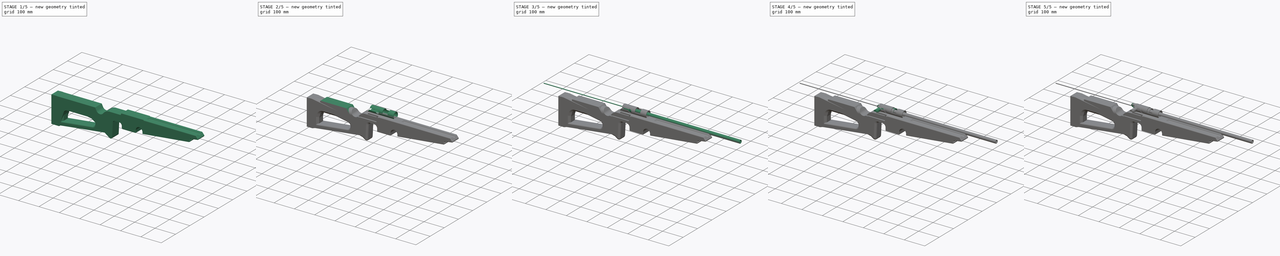
[diagram: build sequence overview — one tinted view per stage of 5, left to right]
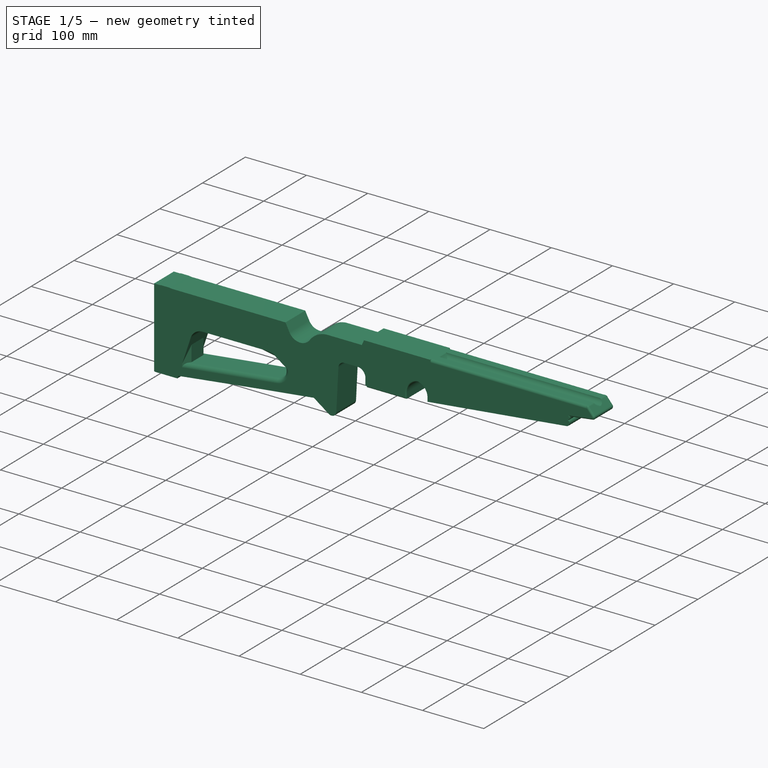
[diagram: stage 1 of 5 — iso view after this stage's code; geometry added in this stage tinted green]
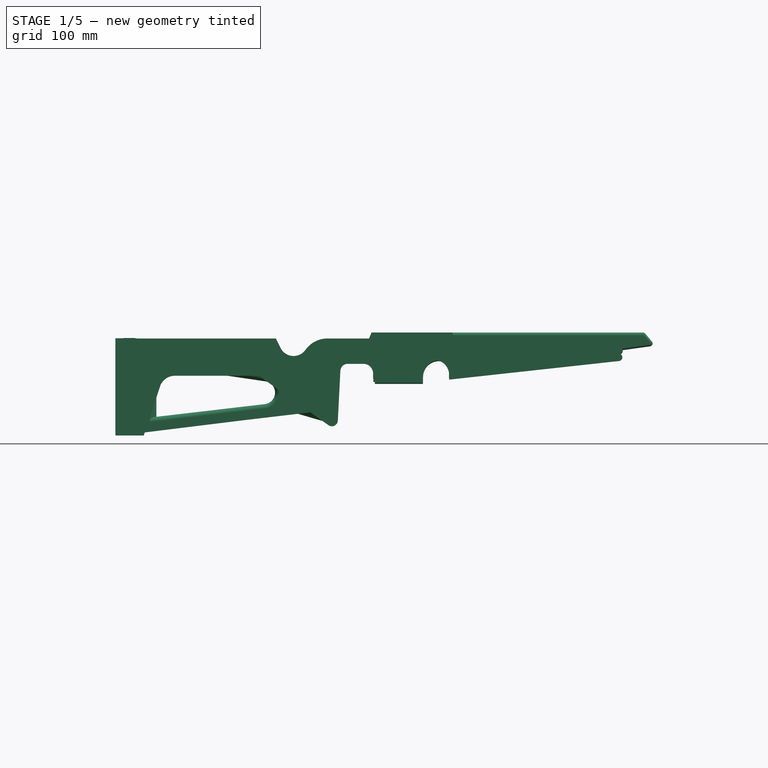
[diagram: stage 1 of 5 — front view after this stage's code; geometry added in this stage tinted green]
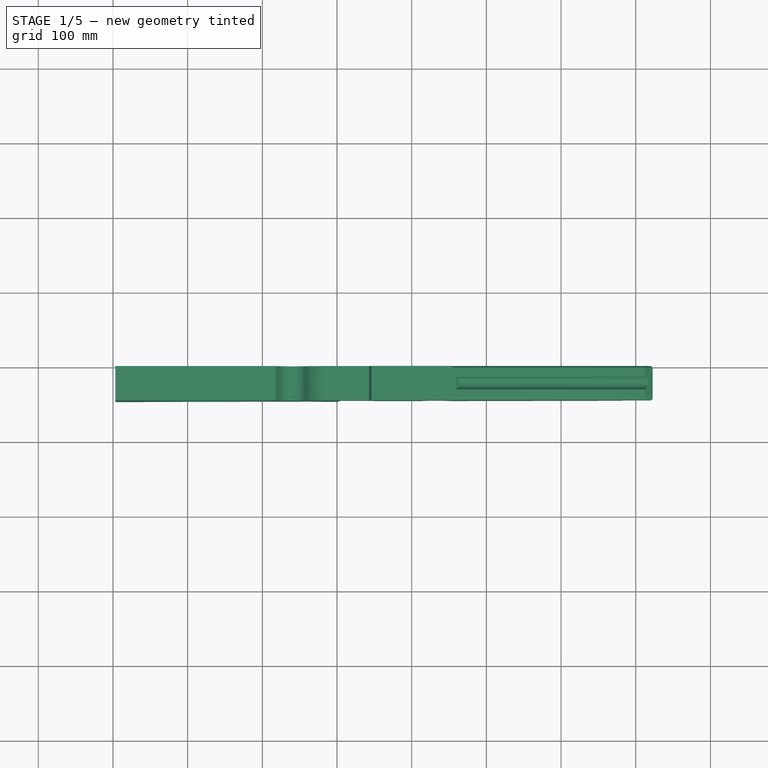
[diagram: stage 1 of 5 — top view after this stage's code; geometry added in this stage tinted green]
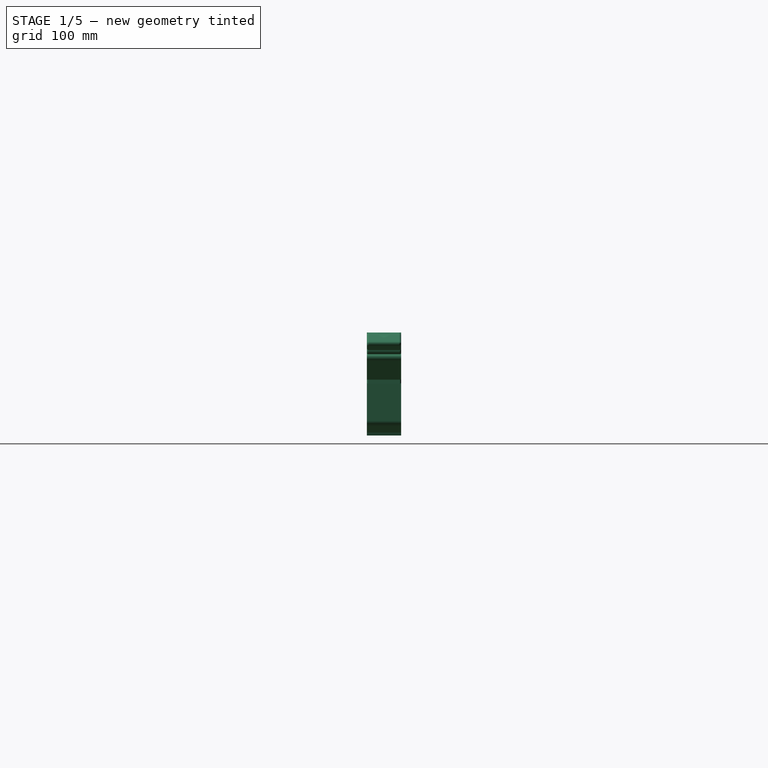
[diagram: stage 1 of 5 — right view after this stage's code; geometry added in this stage tinted green]
FCSTD DOCUMENT  (FreeCAD 1.0R39285 (Git))
Label: insieme_otturatore
License: All rights reserved
LicenseURL: https://en.wikipedia.org/wiki/All_rights_reserved
objects: Sketcher::SketchObject×108, PartDesign::Pad×48, PartDesign::Pocket×47, PartDesign::Body×34, PartDesign::Fillet×28, PartDesign::Hole×12, PartDesign::Chamfer×10, PartDesign::Boolean×8, App::Part×7
note: 701 computed .brp shape members not serialized (recipe doc carries the construction recipe); baked Part::Feature solids carry a one-line shape summary decoded from their .brp

FEATURE [PartDesign::Body] Body025  label="canna"
  AllowCompound = false
  Group = -> [Sketch091,Pad032,Sketch110,Pocket032,Sketch119,Pocket039]
  Origin = -> Origin030
  Placement = pos=(94,0,0) rot=(0,0,1;0rad)
  Tip = -> Pocket039
FEATURE [Sketcher::SketchObject] Sketch120
  ArcFitTolerance = 1e-06
  AttachmentSupport = -> [XZ_Plane041]
  FullyConstrained = false
  MakeInternals = false
  MapMode = 5
  Placement = pos=(0,0,0) rot=(1,0,0;1.5708rad)
  sketch-geometry (31):
    g0: LineSegment StartX=-296.763 StartY=-9.81855 StartZ=0 EndX=-296.763 EndY=-139.819 EndZ=0
    g1: LineSegment StartX=-296.763 StartY=-139.819 StartZ=0 EndX=-52.3473 EndY=-110.941 EndZ=0
    g2: LineSegment StartX=-52.3473 StartY=-110.941 StartZ=0 EndX=-12.8467 EndY=-122.398 EndZ=0
    g3: LineSegment StartX=1.12096 StartY=-111.906 StartZ=0 EndX=1.12096 EndY=-56.1159 EndZ=0
    g4: LineSegment StartX=13.2369 StartY=-44 StartZ=0 EndX=34.8424 EndY=-44 EndZ=0
    g5: LineSegment StartX=51.1068 StartY=-60.2643 StartZ=0 EndX=51.1068 EndY=-68.0421 EndZ=0
    g6: LineSegment StartX=51.1068 StartY=-68.0421 StartZ=0 EndX=108.245 EndY=-68.0421 EndZ=0
    g7: LineSegment StartX=108.245 StartY=-68.0421 StartZ=0 EndX=108.245 EndY=-56.1605 EndZ=0
    g8: LineSegment StartX=24 StartY=-10 StartZ=0 EndX=42.8721 EndY=-10 EndZ=0
    g9: LineSegment StartX=42.8721 StartY=-10 StartZ=0 EndX=46.2549 EndY=-2 EndZ=0
    g10: LineSegment StartX=46.2549 StartY=-2 StartZ=0 EndX=158.666 EndY=-2 EndZ=0
    g11: LineSegment StartX=149.983 StartY=-63.0077 StartZ=0 EndX=377.368 EndY=-38.1748 EndZ=0
    g12: LineSegment StartX=379.35 StartY=-33.2767 StartZ=0 EndX=367.225 EndY=-18.6656 EndZ=0
    g13: LineSegment StartX=-96.0998 StartY=-67.4256 StartZ=0 EndX=-241.906 EndY=-45.9307 EndZ=0
    g14: LineSegment StartX=-241.906 StartY=-45.9307 StartZ=0 EndX=-241.906 EndY=-117.331 EndZ=0
    g15: LineSegment StartX=-241.906 StartY=-117.331 StartZ=0 EndX=-96.3125 EndY=-97.9374 EndZ=0
    g16: LineSegment StartX=179.908 StartY=-13.7198 StartZ=0 EndX=367.225 EndY=-18.6656 EndZ=0
    g17: LineSegment StartX=24 StartY=-10 StartZ=0 EndX=-14 EndY=-10 EndZ=0
    g18: ArcOfCircle CenterX=34.8424 CenterY=-60.2643 CenterZ=0 NormalX=0 NormalY=0 NormalZ=1 AngleXU=0 Radius=16.2643 StartAngle=2e-16 EndAngle=1.5708
    g19: ArcOfCircle CenterX=129.114 CenterY=-56.1605 CenterZ=0 NormalX=0 NormalY=0 NormalZ=1 AngleXU=0 Radius=20.8689 StartAngle=0 EndAngle=3.14159
    g20: ArcOfCircle CenterX=180.604 CenterY=12.653 CenterZ=0 NormalX=0 NormalY=0 NormalZ=1 AngleXU=0 Radius=26.382 StartAngle=3.73046 EndAngle=4.68599
    g21: ArcOfCircle CenterX=377.042 CenterY=-35.1926 CenterZ=0 NormalX=0 NormalY=0 NormalZ=1 AngleXU=0 Radius=3 StartAngle=4.82117 EndAngle=6.97589
    g22: LineSegment StartX=149.983 StartY=-63.0077 StartZ=0 EndX=149.983 EndY=-56.1605 EndZ=0
    g23: ArcOfCircle CenterX=-98.3466 CenterY=-82.6666 CenterZ=0 NormalX=0 NormalY=0 NormalZ=1 AngleXU=0 Radius=15.4057 StartAngle=4.84481 EndAngle=7.70762
    g24: ArcOfCircle CenterX=-9.80356 CenterY=-111.906 CenterZ=0 NormalX=0 NormalY=0 NormalZ=1 AngleXU=0 Radius=10.9245 StartAngle=4.43009 EndAngle=6.28319
    g25: ArcOfCircle CenterX=-1.04412 CenterY=-45.9669 CenterZ=0 NormalX=0 NormalY=0 NormalZ=1 AngleXU=0 Radius=38.2292 StartAngle=1.91654 EndAngle=3.14127
    g26: ArcOfCircle CenterX=-54.6242 CenterY=-45.9498 CenterZ=0 NormalX=0 NormalY=0 NormalZ=1 AngleXU=0 Radius=15.3509 StartAngle=3.82871 EndAngle=6.28287
    g27: LineSegment StartX=-73.069 StartY=-48.2435 StartZ=0 EndX=-271.785 EndY=-9.81855 EndZ=0
    g28: ArcOfCircle CenterX=13.2369 CenterY=-56.1159 CenterZ=0 NormalX=0 NormalY=0 NormalZ=1 AngleXU=0 Radius=12.1159 StartAngle=1.5708 EndAngle=3.14159
    g29: LineSegment StartX=-73.069 StartY=-48.2435 StartZ=0 EndX=-66.4916 EndY=-55.6871 EndZ=0
    g30: LineSegment StartX=-271.785 StartY=-9.81855 StartZ=0 EndX=-296.763 EndY=-9.81855 EndZ=0
  constraints (51):
    c: DistanceY(g8) = -10
    c: DistanceX(g8) = 24
    c: Distance(g0) = 130
    c: Vertical(g0)
    c: Coincident(g1,g0)
    c: Horizontal(g4)
    c: Vertical(g5)
    c: Coincident(g5,g6)
    c: Horizontal(g6)
    c: Coincident(g6,g7)
    c: Vertical(g7)
    c: Horizontal(g8)
    c: Coincident(g9,g8)
    c: Coincident(g10,g9)
    c: Horizontal(g10)
    c: Coincident(g13,g14)
    c: Vertical(g14)
    c: Coincident(g14,g15)
    c: Coincident(g16,g12)
    c: Coincident(g8,g17)
    c: Horizontal(g17)
    c: Vertical(g3)
    c: Coincident(g20,g10)
    c: Tangent(g20,g16) = -1.5708
    c: Coincident(g22,g11)
    c: Tangent(g22,g19) = -1.5708
    c: Vertical(g22)
    c: Tangent(g12,g21) = -1.5708
    c: Tangent(g23,g13) = -1.5708
    c: Tangent(g23,g15) = -1.5708
    c: Coincident(g1,g2)
    c: Tangent(g2,g24) = -1.5708
    c: Coincident(g25,g17)
    c: Tangent(g25,g26) = 1.5708
    c: Tangent(g3,g24) = -1.5708
    c: DistanceX(g17) = -14
    c: Tangent(g11,g21) = -1.5708
    c: Coincident(g29,g27)
    c: Coincident(g29,g26)
    c: Tangent(g4,g18) = 1.5708
    c: Tangent(g18,g5) = 1.5708
    c: Tangent(g19,g7) = 1.5708
    c: DistanceY(g9) = -2
    c: DistanceY(g4) = -44
    c: DistanceX(g0,g28) = 310
    c: Coincident(g30,g27)
    c: Coincident(g30,g0)
    c: Horizontal(g30)
    c: Radius(g21) = 3
    c: Tangent(g28,g3) = 1.5708
    c: Tangent(g28,g4) = 1.5708
FEATURE [PartDesign::Pad] Pad046
  Direction = (0,-1,2e-16)
  Length = 46
  Length2 = 10
  Placement = pos=(0,0,0) rot=(1,0,0;1.5708rad)
  Profile = -> Sketch120
  ReferenceAxis = -> Sketch120 [N_Axis]
  Refine = true
  Suppressed = false
  Type = 0
FEATURE [Sketcher::SketchObject] Sketch121
  ArcFitTolerance = 1e-06
  AttachmentSupport = -> [YZ_Plane041]
  FullyConstrained = true
  MakeInternals = false
  MapMode = 5
  Placement = pos=(0,0,0) rot=(0.57735,0.57735,0.57735;2.0944rad)
  sketch-geometry (1):
    g0: Circle CenterX=-23 CenterY=0 CenterZ=0 NormalX=0 NormalY=0 NormalZ=1 AngleXU=0 Radius=16
  constraints (3):
    c: Diameter(g0) = 32
    c: PointOnObject(g0,g-1)
    c: DistanceX(g0) = -23
FEATURE [PartDesign::Pocket] Pocket040  label="foro_otturatore"
  BaseFeature = -> Pad046
  Direction = (-1,0,0)
  Length = 100
  Length2 = 120
  Placement = pos=(0,0,0) rot=(1,0,0;1.5708rad)
  Profile = -> Sketch121
  ReferenceAxis = -> Sketch121 [N_Axis]
  Refine = true
  Suppressed = false
  Type = 4
FEATURE [Sketcher::SketchObject] Sketch122
  ArcFitTolerance = 1e-06
  AttachmentSupport = -> [XY_Plane041]
  FullyConstrained = true
  MakeInternals = false
  MapMode = 5
  sketch-geometry (4):
    g0: LineSegment StartX=-12 StartY=-17 StartZ=0 EndX=-12 EndY=-29 EndZ=0
    g1: LineSegment StartX=-12 StartY=-29 StartZ=0 EndX=74 EndY=-29 EndZ=0
    g2: LineSegment StartX=74 StartY=-29 StartZ=0 EndX=74 EndY=-17 EndZ=0
    g3: LineSegment StartX=74 StartY=-17 StartZ=0 EndX=-12 EndY=-17 EndZ=0
  constraints (12):
    c: Coincident(g0,g1)
    c: Coincident(g1,g2)
    c: Coincident(g2,g3)
    c: Coincident(g3,g0)
    c: Vertical(g0)
    c: Vertical(g2)
    c: Horizontal(g1)
    c: Horizontal(g3)
    c: Distance(g0,g2) = 86
    c: Distance(g1,g3) = 12
    c: DistanceY(g0) = -17
    c: DistanceX(g0) = -12
FEATURE [PartDesign::Pocket] Pocket041  label="foro_grilletto"
  BaseFeature = -> Pocket040
  Direction = (0,0,-1)
  Length = 44
  Length2 = 5
  Placement = pos=(0,0,0) rot=(1,0,0;1.5708rad)
  Profile = -> Sketch122
  ReferenceAxis = -> Sketch122 [N_Axis]
  Refine = true
  Suppressed = false
  Type = 0
FEATURE [Sketcher::SketchObject] Sketch123
  ArcFitTolerance = 1e-06
  AttachmentSupport = -> [XZ_Plane042]
  FullyConstrained = false
  MakeInternals = false
  MapMode = 5
  Placement = pos=(0,0,0) rot=(1,0,0;1.5708rad)
  sketch-geometry (29):
    g0: LineSegment StartX=-285.954 StartY=-9.35993 StartZ=0 EndX=-285.954 EndY=-139.36 EndZ=0
    g1: LineSegment StartX=-285.954 StartY=-139.36 StartZ=0 EndX=-52.1989 EndY=-110.543 EndZ=0
    g2: LineSegment StartX=-52.1989 StartY=-110.543 StartZ=0 EndX=-12.1487 EndY=-120.643 EndZ=0
    g3: LineSegment StartX=-0.310078 StartY=-111.419 StartZ=0 EndX=-0.310078 EndY=-57.8249 EndZ=0
    g4: LineSegment StartX=14.0461 StartY=-40 StartZ=0 EndX=34.3038 EndY=-40 EndZ=0
    g5: LineSegment StartX=50.7323 StartY=-56.4284 StartZ=0 EndX=50.7323 EndY=-70.7604 EndZ=0
    g6: LineSegment StartX=50.7323 StartY=-70.7604 StartZ=0 EndX=115.215 EndY=-70.7604 EndZ=0
    g7: LineSegment StartX=24 StartY=-10 StartZ=0 EndX=42.8721 EndY=-10 EndZ=0
    g8: LineSegment StartX=42.8721 StartY=-10 StartZ=0 EndX=46.2549 EndY=-4 EndZ=0
    g9: LineSegment StartX=46.2549 StartY=-4 StartZ=0 EndX=364.245 EndY=-4 EndZ=0
    g10: LineSegment StartX=157.84 StartY=-59.1992 StartZ=0 EndX=377.46 EndY=-32.1142 EndZ=0
    g11: LineSegment StartX=381.139 StartY=-21.9077 StartZ=0 EndX=364.245 EndY=-4 EndZ=0
    g12: LineSegment StartX=-95.6629 StartY=-67.4341 StartZ=0 EndX=-255.412 EndY=-38.1553 EndZ=0
    g13: LineSegment StartX=-255.412 StartY=-38.1553 StartZ=0 EndX=-255.412 EndY=-116.489 EndZ=0
    g14: LineSegment StartX=-255.412 StartY=-116.489 StartZ=0 EndX=-96.6514 EndY=-97.9192 EndZ=0
    g15: LineSegment StartX=24 StartY=-10 StartZ=0 EndX=-14 EndY=-10 EndZ=0
    g16: ArcOfCircle CenterX=34.3038 CenterY=-56.4284 CenterZ=0 NormalX=0 NormalY=0 NormalZ=1 AngleXU=0 Radius=16.4284 StartAngle=0 EndAngle=1.5708
    g17: ArcOfCircle CenterX=376.716 CenterY=-26.0799 CenterZ=0 NormalX=0 NormalY=0 NormalZ=1 AngleXU=0 Radius=6.08006 StartAngle=4.8351 EndAngle=7.03945
    g18: ArcOfCircle CenterX=-98.443 CenterY=-82.6025 CenterZ=0 NormalX=0 NormalY=0 NormalZ=1 AngleXU=0 Radius=15.4211 StartAngle=4.82883 EndAngle=7.67271
    g19: ArcOfCircle CenterX=-9.82255 CenterY=-111.419 CenterZ=0 NormalX=0 NormalY=0 NormalZ=1 AngleXU=0 Radius=9.51247 StartAngle=4.46535 EndAngle=6.28319
    g20: ArcOfCircle CenterX=-1.27825 CenterY=-46.1745 CenterZ=0 NormalX=0 NormalY=0 NormalZ=1 AngleXU=0 Radius=38.3463 StartAngle=1.90896 EndAngle=3.09501
    g21: ArcOfCircle CenterX=-56.145 CenterY=-43.6168 CenterZ=0 NormalX=0 NormalY=0 NormalZ=1 AngleXU=0 Radius=16.58 StartAngle=3.99251 EndAngle=6.2366
    g22: LineSegment StartX=-80.1369 StartY=-41.1149 StartZ=0 EndX=-271.785 EndY=-9.35993 EndZ=0
    g23: ArcOfCircle CenterX=16.1268 CenterY=-56.3694 CenterZ=0 NormalX=0 NormalY=0 NormalZ=1 AngleXU=0 Radius=16.5011 StartAngle=1.69722 EndAngle=3.22991
    g24: LineSegment StartX=-80.1369 StartY=-41.1149 StartZ=0 EndX=-67.076 EndY=-56.0832 EndZ=0
    g25: LineSegment StartX=-271.785 StartY=-9.35993 StartZ=0 EndX=-285.954 EndY=-9.35993 EndZ=0
    g26: LineSegment StartX=115.215 StartY=-70.7604 StartZ=0 EndX=115.215 EndY=-61.7587 EndZ=0
    g27: ArcOfCircle CenterX=136.501 CenterY=-61.7587 CenterZ=0 NormalX=0 NormalY=0 NormalZ=1 AngleXU=0 Radius=21.2856 StartAngle=0.258219 EndAngle=3.14159
    g28: LineSegment StartX=157.081 StartY=-56.3232 StartZ=0 EndX=157.84 EndY=-59.1992 EndZ=0
  constraints (47):
    c: DistanceY(g7) = -10
    c: DistanceX(g7) = 24
    c: Distance(g0) = 130
    c: Vertical(g0)
    c: Coincident(g1,g0)
    c: Horizontal(g4)
    c: Vertical(g5)
    c: Coincident(g5,g6)
    c: Horizontal(g6)
    c: Horizontal(g7)
    c: Coincident(g8,g7)
    c: Coincident(g9,g8)
    c: Horizontal(g9)
    c: Coincident(g12,g13)
    c: Vertical(g13)
    c: Coincident(g13,g14)
    c: Coincident(g7,g15)
    c: Horizontal(g15)
    c: Vertical(g3)
    c: Tangent(g11,g17) = -1.5708
    c: Tangent(g18,g12) = -1.5708
    c: Tangent(g18,g14) = -1.5708
    c: Coincident(g1,g2)
    c: Tangent(g2,g19) = -1.5708
    c: Coincident(g20,g15)
    c: Tangent(g20,g21) = 1.5708
    c: Coincident(g23,g3)
    c: Coincident(g23,g4)
    c: Tangent(g3,g19) = -1.5708
    c: DistanceX(g15) = -14
    c: Tangent(g10,g17) = -1.5708
    c: DistanceY(g8) = -4
    c: Coincident(g9,g11)
    c: Coincident(g24,g22)
    c: Coincident(g24,g21)
    c: Coincident(g25,g22)
    c: Coincident(g25,g0)
    c: Horizontal(g25)
    c: DistanceX(g0,g4) = 300
    c: DistanceY(g4) = -40
    c: Tangent(g4,g16) = 1.5708
    c: Tangent(g16,g5) = 1.5708
    c: Coincident(g26,g6)
    c: Vertical(g26)
    c: Tangent(g27,g26) = 1.5708
    c: Coincident(g28,g10)
    c: Tangent(g28,g27) = 1.5708
FEATURE [PartDesign::Pad] Pad047
  Direction = (0,-1,2e-16)
  Length = 46
  Length2 = 10
  Placement = pos=(0,0,0) rot=(1,0,0;1.5708rad)
  Profile = -> Sketch123
  ReferenceAxis = -> Sketch123 [N_Axis]
  Refine = true
  Suppressed = false
  Type = 0
FEATURE [Sketcher::SketchObject] Sketch124
  ArcFitTolerance = 1e-06
  AttachmentSupport = -> [YZ_Plane042]
  FullyConstrained = true
  MakeInternals = false
  MapMode = 5
  Placement = pos=(0,0,0) rot=(0.57735,0.57735,0.57735;2.0944rad)
  sketch-geometry (1):
    g0: Circle CenterX=-23 CenterY=0 CenterZ=0 NormalX=0 NormalY=0 NormalZ=1 AngleXU=0 Radius=16
  constraints (3):
    c: Diameter(g0) = 32
    c: PointOnObject(g0,g-1)
    c: DistanceX(g0) = -23
FEATURE [PartDesign::Pocket] Pocket042  label="foro_otturatore001"
  BaseFeature = -> Pad047
  Direction = (-1,0,0)
  Length = 100
  Length2 = 132
  Placement = pos=(0,0,0) rot=(1,0,0;1.5708rad)
  Profile = -> Sketch124
  ReferenceAxis = -> Sketch124 [N_Axis]
  Refine = true
  Suppressed = false
  Type = 4
FEATURE [Sketcher::SketchObject] Sketch125
  ArcFitTolerance = 1e-06
  AttachmentSupport = -> [XY_Plane042]
  FullyConstrained = true
  MakeInternals = false
  MapMode = 5
  sketch-geometry (4):
    g0: LineSegment StartX=-12 StartY=-17 StartZ=0 EndX=-12 EndY=-29 EndZ=0
    g1: LineSegment StartX=-12 StartY=-29 StartZ=0 EndX=74 EndY=-29 EndZ=0
    g2: LineSegment StartX=74 StartY=-29 StartZ=0 EndX=74 EndY=-17 EndZ=0
    g3: LineSegment StartX=74 StartY=-17 StartZ=0 EndX=-12 EndY=-17 EndZ=0
  constraints (12):
    c: Coincident(g0,g1)
    c: Coincident(g1,g2)
    c: Coincident(g2,g3)
    c: Coincident(g3,g0)
    c: Vertical(g0)
    c: Vertical(g2)
    c: Horizontal(g1)
    c: Horizontal(g3)
    c: Distance(g0,g2) = 86
    c: Distance(g1,g3) = 12
    c: DistanceY(g0) = -17
    c: DistanceX(g0) = -12
FEATURE [PartDesign::Pocket] Pocket043  label="foro_grilletto001"
  BaseFeature = -> Pocket042
  Direction = (0,0,-1)
  Length = 44
  Length2 = 5
  Placement = pos=(0,0,0) rot=(1,0,0;1.5708rad)
  Profile = -> Sketch125
  ReferenceAxis = -> Sketch125 [N_Axis]
  Refine = true
  Suppressed = false
  Type = 0
FEATURE [PartDesign::Body] Body036  label="calciolo"
  AllowCompound = false
  Group = -> [Sketch126,Pad048,Sketch127,Pad049,Sketch128,Pad050]
  Origin = -> Origin043
  Placement = pos=(0,23,0) rot=(0,0,1;0rad)
  Tip = -> Pad050
FEATURE [Sketcher::SketchObject] Sketch129
  ArcFitTolerance = 1e-06
  AttachmentSupport = -> [Pocket043]
  FullyConstrained = false
  MakeInternals = false
  MapMode = 5
  Placement = pos=(0,-46,1.02e-14) rot=(1,0,0;1.5708rad)
  sketch-geometry (4):
    g0: LineSegment StartX=-37.1766 StartY=0 StartZ=0 EndX=-37.1766 EndY=-28.4881 EndZ=0
    g1: LineSegment StartX=-37.1766 StartY=-28.4881 StartZ=0 EndX=48.0321 EndY=-28.4881 EndZ=0
    g2: LineSegment StartX=48.0321 StartY=-28.4881 StartZ=0 EndX=60.9738 EndY=0 EndZ=0
    g3: LineSegment StartX=60.9738 StartY=0 StartZ=0 EndX=-37.1766 EndY=0 EndZ=0
  constraints (8):
    c: Coincident(g0,g1)
    c: Coincident(g1,g2)
    c: Coincident(g2,g3)
    c: Coincident(g3,g0)
    c: Vertical(g0)
    c: Horizontal(g1)
    c: Horizontal(g3)
    c: PointOnObject(g0,g-1)
FEATURE [PartDesign::Pocket] Pocket044
  BaseFeature = -> Pocket043
  Direction = (0,1,-2e-16)
  Length = 6
  Length2 = 5
  Placement = pos=(0,0,0) rot=(1,0,0;1.5708rad)
  Profile = -> Sketch129
  ReferenceAxis = -> Sketch129 [N_Axis]
  Refine = true
  Suppressed = false
  Type = 0
FEATURE [PartDesign::Fillet] Fillet009
  Base = -> Pocket044 [Edge40,Edge15]
  BaseFeature = -> Pocket044
  Placement = pos=(0,0,0) rot=(1,0,0;1.5708rad)
  Radius = 11
  Refine = true
  SupportTransform = false
  Suppressed = false
  UseAllEdges = false
FEATURE [PartDesign::Body] Body  label="castello"
  AllowCompound = false
  Group = -> [Sketch,Pad,Boolean,Boolean001,Boolean004,Boolean005,Boolean007,Boolean008,Chamfer008]
  Origin = -> Origin
  Tip = -> Chamfer008
FEATURE [PartDesign::Fillet] Fillet010
  Base = -> Pocket041 [Edge42,Edge15]
  BaseFeature = -> Pocket041
  Placement = pos=(0,0,0) rot=(1,0,0;1.5708rad)
  Radius = 14
  Refine = true
  SupportTransform = false
  Suppressed = false
  UseAllEdges = false
FEATURE [Sketcher::SketchObject] Sketch130
  ArcFitTolerance = 1e-06
  AttachmentSupport = -> [XZ_Plane044]
  FullyConstrained = false
  MakeInternals = false
  MapMode = 5
  Placement = pos=(0,0,0) rot=(1,0,0;1.5708rad)
  sketch-geometry (28):
    g0: LineSegment StartX=-295.581 StartY=-10 StartZ=0 EndX=-295.581 EndY=-140 EndZ=0
    g1: LineSegment StartX=-104.642 StartY=-60.0114 StartZ=0 EndX=-11.511 EndY=-126.105 EndZ=0
    g2: LineSegment StartX=1.10877 StartY=-119.985 StartZ=0 EndX=4.47449 EndY=-53.4543 EndZ=0
    g3: LineSegment StartX=14.4192 StartY=-44 StartZ=0 EndX=35.4022 EndY=-44 EndZ=0
    g4: LineSegment StartX=48.374 StartY=-56.9718 StartZ=0 EndX=48.374 EndY=-66.011 EndZ=0
    g5: LineSegment StartX=48.374 StartY=-66.011 StartZ=0 EndX=113.645 EndY=-66.011 EndZ=0
    g6: LineSegment StartX=113.645 StartY=-66.011 StartZ=0 EndX=113.645 EndY=-61.3636 EndZ=0
    g7: LineSegment StartX=24 StartY=-10 StartZ=0 EndX=42.8721 EndY=-10 EndZ=0
    g8: LineSegment StartX=42.8721 StartY=-10 StartZ=0 EndX=46.2549 EndY=-2 EndZ=0
    g9: LineSegment StartX=46.2549 StartY=-2 StartZ=0 EndX=411.496 EndY=-2 EndZ=0
    g10: LineSegment StartX=159.74 StartY=-56.6114 StartZ=0 EndX=419.132 EndY=-20.585 EndZ=0
    g11: LineSegment StartX=421.641 StartY=-14.0464 StartZ=0 EndX=411.496 EndY=-2 EndZ=0
    g12: LineSegment StartX=24 StartY=-10 StartZ=0 EndX=-14 EndY=-10 EndZ=0
    g13: ArcOfCircle CenterX=35.4022 CenterY=-56.9718 CenterZ=0 NormalX=0 NormalY=0 NormalZ=1 AngleXU=0 Radius=12.9718 StartAngle=1e-16 EndAngle=1.5708
    g14: ArcOfCircle CenterX=136.562 CenterY=-61.3636 CenterZ=0 NormalX=0 NormalY=0 NormalZ=1 AngleXU=0 Radius=22.917 StartAngle=0.453459 EndAngle=3.14159
    g15: ArcOfCircle CenterX=418.582 CenterY=-16.6231 CenterZ=0 NormalX=0 NormalY=0 NormalZ=1 AngleXU=0 Radius=4 StartAngle=4.85039 EndAngle=6.98312
    g16: ArcOfCircle CenterX=-6.88101 CenterY=-119.58 CenterZ=0 NormalX=0 NormalY=0 NormalZ=1 AngleXU=0 Radius=8 StartAngle=4.0952 EndAngle=6.23264
    g17: ArcOfCircle CenterX=-12.5406 CenterY=-46.4763 CenterZ=0 NormalX=0 NormalY=0 NormalZ=1 AngleXU=0 Radius=36.5055 StartAngle=1.61078 EndAngle=2.52338
    g18: ArcOfCircle CenterX=-58.1508 CenterY=-14.0374 CenterZ=0 NormalX=0 NormalY=0 NormalZ=1 AngleXU=0 Radius=19.4639 StartAngle=3.60853 EndAngle=5.66497
    g19: LineSegment StartX=-81.9834 StartY=-10 StartZ=0 EndX=-271.785 EndY=-10 EndZ=0
    g20: ArcOfCircle CenterX=14.4192 CenterY=-53.9574 CenterZ=0 NormalX=0 NormalY=0 NormalZ=1 AngleXU=0 Radius=9.95739 StartAngle=1.5708 EndAngle=3.09105
    g21: LineSegment StartX=-81.9834 StartY=-10 StartZ=0 EndX=-75.5311 EndY=-22.7991 EndZ=0
    g22: LineSegment StartX=-271.785 StartY=-10 StartZ=0 EndX=-295.581 EndY=-10 EndZ=0
    g23: LineSegment StartX=-104.642 StartY=-60.0114 StartZ=0 EndX=-217.266 EndY=-60.0114 EndZ=0
    g24: LineSegment StartX=-236.97 StartY=-74.2372 StartZ=0 EndX=-258.776 EndY=-140 EndZ=0
    g25: LineSegment StartX=-295.581 StartY=-140 StartZ=0 EndX=-258.776 EndY=-140 EndZ=0
    g26: ArcOfCircle CenterX=-217.266 CenterY=-80.7706 CenterZ=0 NormalX=0 NormalY=0 NormalZ=1 AngleXU=0 Radius=20.7592 StartAngle=1.5708 EndAngle=2.82143
    g27: LineSegment StartX=159.74 StartY=-56.6114 StartZ=0 EndX=157.163 EndY=-51.3242 EndZ=0
  constraints (50):
    c: DistanceY(g7) = -10
    c: DistanceX(g7) = 24
    c: Distance(g0) = 130
    c: Vertical(g0)
    c: Horizontal(g3)
    c: Vertical(g4)
    c: Coincident(g4,g5)
    c: Horizontal(g5)
    c: Coincident(g5,g6)
    c: Vertical(g6)
    c: Horizontal(g7)
    c: Coincident(g8,g7)
    c: Coincident(g9,g8)
    c: Horizontal(g9)
    c: Coincident(g7,g12)
    c: Horizontal(g12)
    c: Tangent(g11,g15) = -1.5708
    c: Tangent(g1,g16) = -1.5708
    c: Coincident(g17,g12)
    c: Tangent(g17,g18) = 1.5708
    c: Tangent(g2,g16) = -1.5708
    c: DistanceX(g12) = -14
    c: Tangent(g10,g15) = -1.5708
    c: DistanceY(g8) = -2
    c: Coincident(g9,g11)
    c: Coincident(g21,g19)
    c: Tangent(g14,g6) = 1.5708
    c: Coincident(g22,g19)
    c: Coincident(g22,g0)
    c: Horizontal(g22)
    c: DistanceX(g0,g3) = 310
    c: DistanceY(g3) = -44
    c: Tangent(g3,g13) = 1.5708
    c: Tangent(g13,g4) = 1.5708
    c: Horizontal(g19)
    c: Tangent(g20,g3) = 1.5708
    c: Coincident(g23,g1)
    c: Horizontal(g23)
    c: Coincident(g25,g0)
    c: Coincident(g25,g24)
    c: Horizontal(g25)
    c: Radius(g16) = 8
    c: Tangent(g21,g18) = -1.5708
    c: Radius(g15) = 4
    c: Tangent(g23,g26) = -1.5708
    c: Tangent(g24,g26) = -1.5708
    c: Tangent(g20,g2) = 1.5708
    c: DistanceY(g19) = -10
    c: Coincident(g27,g10)
    c: Tangent(g27,g14) = -1.5708
FEATURE [PartDesign::Pad] Pad051
  Direction = (0,-1,2e-16)
  Length = 46
  Length2 = 10
  Placement = pos=(0,0,0) rot=(1,0,0;1.5708rad)
  Profile = -> Sketch130
  ReferenceAxis = -> Sketch130 [N_Axis]
  Refine = true
  Suppressed = false
  Type = 0
FEATURE [Sketcher::SketchObject] Sketch131
  ArcFitTolerance = 1e-06
  AttachmentSupport = -> [YZ_Plane044]
  FullyConstrained = true
  MakeInternals = false
  MapMode = 5
  Placement = pos=(0,0,0) rot=(0.57735,0.57735,0.57735;2.0944rad)
  sketch-geometry (1):
    g0: Circle CenterX=-23 CenterY=0 CenterZ=0 NormalX=0 NormalY=0 NormalZ=1 AngleXU=0 Radius=16
  constraints (3):
    c: Diameter(g0) = 32
    c: PointOnObject(g0,g-1)
    c: DistanceX(g0) = -23
FEATURE [PartDesign::Pocket] Pocket045  label="foro_otturatore002"
  BaseFeature = -> Pad051
  Direction = (-1,0,0)
  Length = 60
  Length2 = 132
  Placement = pos=(0,0,0) rot=(1,0,0;1.5708rad)
  Profile = -> Sketch131
  ReferenceAxis = -> Sketch131 [N_Axis]
  Refine = true
  Suppressed = false
  Type = 4
FEATURE [Sketcher::SketchObject] Sketch132
  ArcFitTolerance = 1e-06
  AttachmentSupport = -> [XY_Plane044]
  FullyConstrained = true
  MakeInternals = false
  MapMode = 5
  sketch-geometry (4):
    g0: LineSegment StartX=-12 StartY=-17 StartZ=0 EndX=-12 EndY=-29 EndZ=0
    g1: LineSegment StartX=-12 StartY=-29 StartZ=0 EndX=74 EndY=-29 EndZ=0
    g2: LineSegment StartX=74 StartY=-29 StartZ=0 EndX=74 EndY=-17 EndZ=0
    g3: LineSegment StartX=74 StartY=-17 StartZ=0 EndX=-12 EndY=-17 EndZ=0
  constraints (12):
    c: Coincident(g0,g1)
    c: Coincident(g1,g2)
    c: Coincident(g2,g3)
    c: Coincident(g3,g0)
    c: Vertical(g0)
    c: Vertical(g2)
    c: Horizontal(g1)
    c: Horizontal(g3)
    c: Distance(g0,g2) = 86
    c: Distance(g1,g3) = 12
    c: DistanceY(g0) = -17
    c: DistanceX(g0) = -12
FEATURE [PartDesign::Pocket] Pocket046  label="foro_grilletto002"
  BaseFeature = -> Pocket045
  Direction = (0,0,-1)
  Length = 44
  Length2 = 5
  Placement = pos=(0,0,0) rot=(1,0,0;1.5708rad)
  Profile = -> Sketch132
  ReferenceAxis = -> Sketch132 [N_Axis]
  Refine = true
  Suppressed = false
  Type = 0
FEATURE [Sketcher::SketchObject] Sketch133
  ArcFitTolerance = 1e-06
  AttachmentSupport = -> [Pocket046]
  FullyConstrained = false
  MakeInternals = false
  MapMode = 5
  Placement = pos=(0,-46,0) rot=(1,0,0;1.5708rad)
  sketch-geometry (4):
    g0: LineSegment StartX=-54.9363 StartY=0 StartZ=0 EndX=-54.9363 EndY=-29.5997 EndZ=0
    g1: LineSegment StartX=-54.9363 StartY=-29.5997 StartZ=0 EndX=48.0321 EndY=-29.5997 EndZ=0
    g2: LineSegment StartX=48.0321 StartY=-29.5997 StartZ=0 EndX=60.9738 EndY=0 EndZ=0
    g3: LineSegment StartX=60.9738 StartY=0 StartZ=0 EndX=-54.9363 EndY=0 EndZ=0
  constraints (8):
    c: Coincident(g0,g1)
    c: Coincident(g1,g2)
    c: Coincident(g2,g3)
    c: Coincident(g3,g0)
    c: Vertical(g0)
    c: Horizontal(g1)
    c: Horizontal(g3)
    c: PointOnObject(g0,g-1)
FEATURE [PartDesign::Pocket] Pocket047
  BaseFeature = -> Pocket046
  Direction = (0,1,-2e-16)
  Length = 6
  Length2 = 5
  Placement = pos=(0,0,0) rot=(1,0,0;1.5708rad)
  Profile = -> Sketch133
  ReferenceAxis = -> Sketch133 [N_Axis]
  Refine = true
  Suppressed = false
  Type = 0
FEATURE [PartDesign::Body] Body038  label="calciolo001"
  AllowCompound = false
  Group = -> [Sketch134,Pad052,Sketch135,Pad053,Sketch136,Pad054]
  Origin = -> Origin047
  Placement = pos=(0,23,0) rot=(0,0,1;0rad)
  Tip = -> Pad054
FEATURE [Sketcher::SketchObject] Sketch137
  ArcFitTolerance = 1e-06
  AttachmentSupport = -> [YZ_Plane044]
  FullyConstrained = true
  MakeInternals = false
  MapMode = 5
  Placement = pos=(0,0,0) rot=(0.57735,0.57735,0.57735;2.0944rad)
  sketch-geometry (1):
    g0: Circle CenterX=-23 CenterY=0 CenterZ=0 NormalX=0 NormalY=0 NormalZ=1 AngleXU=0 Radius=8.5
  constraints (3):
    c: Diameter(g0) = 17
    c: PointOnObject(g0,g-1)
    c: DistanceX(g0) = -23
FEATURE [PartDesign::Pocket] Pocket048
  BaseFeature = -> Pocket047
  Direction = (-1,0,0)
  Length = 5
  Length2 = 5
  Placement = pos=(0,0,0) rot=(1,0,0;1.5708rad)
  Profile = -> Sketch137
  ReferenceAxis = -> Sketch137 [N_Axis]
  Refine = true
  Reversed = true
  Suppressed = false
  Type = 1
FEATURE [PartDesign::Fillet] Fillet011
  Base = -> Pocket048 [Edge39,Edge16]
  BaseFeature = -> Pocket048
  Placement = pos=(0,0,0) rot=(1,0,0;1.5708rad)
  Radius = 10
  Refine = true
  SupportTransform = false
  Suppressed = false
  UseAllEdges = false
FEATURE [Sketcher::SketchObject] Sketch138
  ArcFitTolerance = 1e-06
  AttachmentSupport = -> [XZ_Plane048]
  FullyConstrained = false
  MakeInternals = false
  MapMode = 5
  Placement = pos=(0,0,0) rot=(1,0,0;1.5708rad)
  sketch-geometry (30):
    g0: LineSegment StartX=-295.581 StartY=-10 StartZ=0 EndX=-295.581 EndY=-140 EndZ=0
    g1: LineSegment StartX=-104.642 StartY=-60.0114 StartZ=0 EndX=-11.511 EndY=-126.105 EndZ=0
    g2: LineSegment StartX=1.10877 StartY=-119.985 StartZ=0 EndX=4.47449 EndY=-53.4543 EndZ=0
    g3: LineSegment StartX=14.4192 StartY=-44 StartZ=0 EndX=35.5691 EndY=-44 EndZ=0
    g4: LineSegment StartX=48.6523 StartY=-57.0831 StartZ=0 EndX=48.6523 EndY=-68.3998 EndZ=0
    g5: LineSegment StartX=48.6523 StartY=-68.3998 StartZ=0 EndX=110.331 EndY=-68.3998 EndZ=0
    g6: LineSegment StartX=110.331 StartY=-68.3998 StartZ=0 EndX=110.331 EndY=-58.7626 EndZ=0
    g7: LineSegment StartX=24 StartY=-10 StartZ=0 EndX=42.8721 EndY=-10 EndZ=0
    g8: LineSegment StartX=42.8721 StartY=-10 StartZ=0 EndX=46.2549 EndY=-2 EndZ=0
    g9: LineSegment StartX=46.2549 StartY=-2 StartZ=0 EndX=154.317 EndY=-2 EndZ=0
    g10: LineSegment StartX=24 StartY=-10 StartZ=0 EndX=-14 EndY=-10 EndZ=0
    g11: ArcOfCircle CenterX=35.5691 CenterY=-57.0831 CenterZ=0 NormalX=0 NormalY=0 NormalZ=1 AngleXU=0 Radius=13.0831 StartAngle=0 EndAngle=1.5708
    g12: ArcOfCircle CenterX=130.223 CenterY=-58.7626 CenterZ=0 NormalX=0 NormalY=0 NormalZ=1 AngleXU=0 Radius=19.8913 StartAngle=6.24646 EndAngle=9.42478
    g13: ArcOfCircle CenterX=377.124 CenterY=-35.2743 CenterZ=0 NormalX=0 NormalY=0 NormalZ=1 AngleXU=0 Radius=5 StartAngle=4.79683 EndAngle=7.09562
    g14: ArcOfCircle CenterX=-6.88101 CenterY=-119.58 CenterZ=0 NormalX=0 NormalY=0 NormalZ=1 AngleXU=0 Radius=8 StartAngle=4.0952 EndAngle=6.23264
    g15: ArcOfCircle CenterX=-12.5406 CenterY=-46.4763 CenterZ=0 NormalX=0 NormalY=0 NormalZ=1 AngleXU=0 Radius=36.5055 StartAngle=1.61078 EndAngle=2.52338
    g16: ArcOfCircle CenterX=-58.1508 CenterY=-14.0374 CenterZ=0 NormalX=0 NormalY=0 NormalZ=1 AngleXU=0 Radius=19.4639 StartAngle=3.60853 EndAngle=5.66497
    g17: LineSegment StartX=-81.9834 StartY=-10 StartZ=0 EndX=-271.785 EndY=-10 EndZ=0
    g18: ArcOfCircle CenterX=14.4192 CenterY=-53.9574 CenterZ=0 NormalX=0 NormalY=0 NormalZ=1 AngleXU=0 Radius=9.95739 StartAngle=1.5708 EndAngle=3.09105
    g19: LineSegment StartX=-81.9834 StartY=-10 StartZ=0 EndX=-75.5311 EndY=-22.7991 EndZ=0
    g20: LineSegment StartX=-271.785 StartY=-10 StartZ=0 EndX=-295.581 EndY=-10 EndZ=0
    g21: LineSegment StartX=-104.642 StartY=-60.0114 StartZ=0 EndX=-217.266 EndY=-60.0114 EndZ=0
    g22: LineSegment StartX=-236.97 StartY=-74.2372 StartZ=0 EndX=-258.776 EndY=-140 EndZ=0
    g23: LineSegment StartX=-295.581 StartY=-140 StartZ=0 EndX=-258.776 EndY=-140 EndZ=0
    g24: ArcOfCircle CenterX=-217.266 CenterY=-80.7706 CenterZ=0 NormalX=0 NormalY=0 NormalZ=1 AngleXU=0 Radius=20.7592 StartAngle=1.5708 EndAngle=2.82143
    g25: ArcOfCircle CenterX=175.342 CenterY=3.74059 CenterZ=0 NormalX=0 NormalY=0 NormalZ=1 AngleXU=0 Radius=21.7948 StartAngle=3.40813 EndAngle=4.70218
    g26: LineSegment StartX=380.563 StartY=-31.6444 StartZ=0 EndX=368.298 EndY=-20.0259 EndZ=0
    g27: LineSegment StartX=175.119 StartY=-18.053 StartZ=0 EndX=368.298 EndY=-20.0259 EndZ=0
    g28: LineSegment StartX=150.101 StartY=-59.4929 StartZ=0 EndX=150.101 EndY=-65.1483 EndZ=0
    g29: LineSegment StartX=150.101 StartY=-65.1483 StartZ=0 EndX=377.546 EndY=-40.2564 EndZ=0
  constraints (53):
    c: DistanceY(g7) = -10
    c: DistanceX(g7) = 24
    c: Distance(g0) = 130
    c: Vertical(g0)
    c: Horizontal(g3)
    c: Vertical(g4)
    c: Coincident(g4,g5)
    c: Horizontal(g5)
    c: Coincident(g5,g6)
    c: Vertical(g6)
    c: Horizontal(g7)
    c: Coincident(g8,g7)
    c: Coincident(g9,g8)
    c: Horizontal(g9)
    c: Coincident(g7,g10)
    c: Horizontal(g10)
    c: Tangent(g1,g14) = -1.5708
    c: Coincident(g15,g10)
    c: Tangent(g15,g16) = 1.5708
    c: Tangent(g2,g14) = -1.5708
    c: DistanceX(g10) = -14
    c: DistanceY(g8) = -2
    c: Coincident(g19,g17)
    c: Tangent(g12,g6) = 1.5708
    c: Coincident(g20,g17)
    c: Coincident(g20,g0)
    c: Horizontal(g20)
    c: DistanceX(g0,g3) = 310
    c: DistanceY(g3) = -44
    c: Tangent(g3,g11) = 1.5708
    c: Tangent(g11,g4) = 1.5708
    c: Horizontal(g17)
    c: Tangent(g18,g3) = 1.5708
    c: Coincident(g21,g1)
    c: Horizontal(g21)
    c: Coincident(g23,g0)
    c: Coincident(g23,g22)
    c: Horizontal(g23)
    c: Radius(g14) = 8
    c: Tangent(g19,g16) = -1.5708
    c: Radius(g13) = 5
    c: Tangent(g21,g24) = -1.5708
    c: Tangent(g22,g24) = -1.5708
    c: Tangent(g18,g2) = 1.5708
    c: DistanceY(g17) = -10
    c: Coincident(g25,g9)
    c: Coincident(g27,g26)
    c: Tangent(g26,g13) = -1.5708
    c: Tangent(g27,g25) = -1.5708
    c: Coincident(g28,g12)
    c: Vertical(g28)
    c: Coincident(g29,g13)
    c: Coincident(g28,g29)
FEATURE [PartDesign::Pad] Pad055
  Direction = (0,-1,2e-16)
  Length = 46
  Length2 = 10
  Placement = pos=(0,0,0) rot=(1,0,0;1.5708rad)
  Profile = -> Sketch138
  ReferenceAxis = -> Sketch138 [N_Axis]
  Refine = true
  Suppressed = false
  Type = 0
FEATURE [Sketcher::SketchObject] Sketch143
  ArcFitTolerance = 1e-06
  AttachmentSupport = -> [YZ_Plane048]
  FullyConstrained = true
  MakeInternals = false
  MapMode = 5
  Placement = pos=(0,0,0) rot=(0.57735,0.57735,0.57735;2.0944rad)
FEATURE [PartDesign::Body] Body039  label="classic_blaser"
  AllowCompound = false
  Group = -> [Sketch138,Pad055,Sketch139,Pocket049,Sketch140,Pocket050,Sketch141,Pocket051,Sketch142,Pocket052,Fillet017,Fillet018,Fillet019,Chamfer010,Fillet020,Fillet021,Fillet022,Fillet023,Sketch143]
  Origin = -> Origin048
  Placement = pos=(0,23,0) rot=(0,0,1;0rad)
  Tip = -> Fillet023
FEATURE [Sketcher::SketchObject] Sketch144
  ArcFitTolerance = 1e-06
  FullyConstrained = false
  MakeInternals = false
  MapMode = 5
  Placement = pos=(0,-46,0) rot=(1,0,0;1.5708rad)
  sketch-geometry (4):
    g0: LineSegment StartX=-43.9899 StartY=5.25794 StartZ=0 EndX=-43.9899 EndY=-29.0397 EndZ=0
    g1: LineSegment StartX=-43.9899 StartY=-29.0397 StartZ=0 EndX=46.7146 EndY=-29.0397 EndZ=0
    g2: LineSegment StartX=46.7146 StartY=-29.0397 StartZ=0 EndX=56.2102 EndY=5.25794 EndZ=0
    g3: LineSegment StartX=56.2102 StartY=5.25794 StartZ=0 EndX=-43.9899 EndY=5.25794 EndZ=0
  constraints (7):
    c: Coincident(g0,g1)
    c: Coincident(g1,g2)
    c: Coincident(g2,g3)
    c: Coincident(g3,g0)
    c: Vertical(g0)
    c: Horizontal(g1)
    c: Horizontal(g3)
FEATURE [PartDesign::Pocket] Pocket053
  BaseFeature = -> Fillet010
  Direction = (0,1,-2e-16)
  Length = 6
  Length2 = 5
  Placement = pos=(0,0,0) rot=(1,0,0;1.5708rad)
  Profile = -> Sketch144
  ReferenceAxis = -> Sketch144 [N_Axis]
  Refine = true
  Suppressed = false
  Type = 0
FEATURE [PartDesign::Fillet] Fillet027
  Base = -> Fillet009 [Edge97,Edge26]
  BaseFeature = -> Fillet009
  Placement = pos=(0,0,0) rot=(1,0,0;1.5708rad)
  Radius = 6
  Refine = true
  SupportTransform = false
  Suppressed = false
  UseAllEdges = false
FEATURE [PartDesign::Chamfer] Chamfer011
  Angle = 45
  Base = -> Fillet027 [Edge36,Edge2]
  BaseFeature = -> Fillet027
  ChamferType = 0
  FlipDirection = false
  Placement = pos=(0,0,0) rot=(1,0,0;1.5708rad)
  Refine = true
  Size = 5
  Size2 = 1
  SupportTransform = false
  Suppressed = false
  UseAllEdges = false
FEATURE [PartDesign::Fillet] Fillet028
  Base = -> Chamfer011 [Edge79,Edge19,Edge93,Edge23,Edge100,Edge27]
  BaseFeature = -> Chamfer011
  Placement = pos=(0,0,0) rot=(1,0,0;1.5708rad)
  Radius = 2
  Refine = true
  SupportTransform = false
  Suppressed = false
  UseAllEdges = false
FEATURE [Sketcher::SketchObject] Sketch145
  ArcFitTolerance = 1e-06
  AttachmentSupport = -> [YZ_Plane042]
  FullyConstrained = true
  MakeInternals = false
  MapMode = 5
  Placement = pos=(0,0,0) rot=(0.57735,0.57735,0.57735;2.0944rad)
  sketch-geometry (1):
    g0: Circle CenterX=-23 CenterY=0 CenterZ=0 NormalX=0 NormalY=0 NormalZ=1 AngleXU=0 Radius=8.5
  constraints (3):
    c: Diameter(g0) = 17
    c: PointOnObject(g0,g-1)
    c: DistanceX(g0) = -23
FEATURE [PartDesign::Pocket] Pocket054
  BaseFeature = -> Fillet028
  Direction = (-1,0,0)
  Length = 5
  Length2 = 5
  Placement = pos=(0,0,0) rot=(1,0,0;1.5708rad)
  Profile = -> Sketch145
  ReferenceAxis = -> Sketch145 [N_Axis]
  Refine = true
  Reversed = true
  Suppressed = false
  Type = 1
FEATURE [PartDesign::Fillet] Fillet029
  Base = -> Pocket054 [Edge16,Edge115]
  BaseFeature = -> Pocket054
  Placement = pos=(0,0,0) rot=(1,0,0;1.5708rad)
  Radius = 2
  Refine = true
  SupportTransform = false
  Suppressed = false
  UseAllEdges = false
FEATURE [PartDesign::Body] Body035  label="calcio_classic_ru"
  AllowCompound = false
  Group = -> [Sketch123,Pad047,Sketch124,Pocket042,Sketch125,Pocket043,Sketch129,Pocket044,Fillet009,Fillet027,Chamfer011,Fillet028,Sketch145,Pocket054,Fillet029]
  Origin = -> Origin042
  Placement = pos=(0,23,0) rot=(0,0,1;0rad)
  Tip = -> Fillet029
FEATURE [App::Part] Part006  label="classic_ru"
  Group = -> [Body036,Body035]
  Origin = -> Origin046
FEATURE [PartDesign::Fillet] Fillet030
  Base = -> Fillet011 [Edge39,Edge5,Edge30,Edge1,Edge47,Edge9]
  BaseFeature = -> Fillet011
  Placement = pos=(0,0,0) rot=(1,0,0;1.5708rad)
  Radius = 3
  Refine = true
  SupportTransform = false
  Suppressed = false
  UseAllEdges = false
FEATURE [PartDesign::Fillet] Fillet031
  Base = -> Fillet030 [Edge25,Edge87]
  BaseFeature = -> Fillet030
  Placement = pos=(0,0,0) rot=(1,0,0;1.5708rad)
  Radius = 20
  Refine = true
  SupportTransform = false
  Suppressed = false
  UseAllEdges = false
FEATURE [PartDesign::Chamfer] Chamfer012
  Angle = 45
  Base = -> Fillet031 [Edge5,Edge43]
  BaseFeature = -> Fillet031
  ChamferType = 0
  FlipDirection = false
  Placement = pos=(0,0,0) rot=(1,0,0;1.5708rad)
  Refine = true
  Size = 10
  Size2 = 1
  SupportTransform = false
  Suppressed = false
  UseAllEdges = false
FEATURE [PartDesign::Fillet] Fillet032
  Base = -> Chamfer012 [Edge13,Edge98]
  BaseFeature = -> Chamfer012
  Placement = pos=(0,0,0) rot=(1,0,0;1.5708rad)
  Radius = 4
  Refine = true
  SupportTransform = false
  Suppressed = false
  UseAllEdges = false
FEATURE [PartDesign::Body] Body037  label="classic"
  AllowCompound = false
  Group = -> [Sketch130,Pad051,Sketch131,Pocket045,Sketch132,Pocket046,Sketch133,Pocket047,Sketch137,Pocket048,Fillet011,Fillet030,Fillet031,Chamfer012,Fillet032]
  Origin = -> Origin044
  Placement = pos=(0,23,0) rot=(0,0,1;0rad)
  Tip = -> Fillet032
FEATURE [PartDesign::Fillet] Fillet033
  Base = -> Pocket053 [Edge34,Edge1,Edge5,Edge43,Edge51,Edge9]
  BaseFeature = -> Pocket053
  Placement = pos=(0,0,0) rot=(1,0,0;1.5708rad)
  Radius = 2
  Refine = true
  SupportTransform = false
  Suppressed = false
  UseAllEdges = false
FEATURE [PartDesign::Fillet] Fillet034
  Base = -> Fillet033 [Edge75,Edge20]
  BaseFeature = -> Fillet033
  Placement = pos=(0,0,0) rot=(1,0,0;1.5708rad)
  Radius = 6
  Refine = true
  SupportTransform = false
  Suppressed = false
  UseAllEdges = false
FEATURE [PartDesign::Fillet] Fillet035
  Base = -> Fillet034 [Edge3,Edge41]
  BaseFeature = -> Fillet034
  Placement = pos=(0,0,0) rot=(1,0,0;1.5708rad)
  Radius = 2
  Refine = true
  SupportTransform = false
  Suppressed = false
  UseAllEdges = false
FEATURE [PartDesign::Fillet] Fillet036
  Base = -> Fillet035 [Edge30,Edge102]
  BaseFeature = -> Fillet035
  Placement = pos=(0,0,0) rot=(1,0,0;1.5708rad)
  Radius = 10
  Refine = true
  SupportTransform = false
  Suppressed = false
  UseAllEdges = false
FEATURE [PartDesign::Chamfer] Chamfer013
  Angle = 45
  Base = -> Fillet036 [Edge38,Edge2]
  BaseFeature = -> Fillet036
  ChamferType = 0
  FlipDirection = false
  Placement = pos=(0,0,0) rot=(1,0,0;1.5708rad)
  Refine = true
  Size = 9
  Size2 = 1
  SupportTransform = false
  Suppressed = false
  UseAllEdges = false
FEATURE [PartDesign::Body] Body034  label="calcio_ru"
  AllowCompound = false
  Group = -> [Sketch120,Pad046,Sketch121,Pocket040,Sketch122,Pocket041,Fillet010,Sketch144,Pocket053,Fillet033,Fillet034,Fillet035,Fillet036,Chamfer013]
  Origin = -> Origin041
  Placement = pos=(0,23,0) rot=(0,0,1;0rad)
  Tip = -> Chamfer013
FEATURE [App::Part] Part005  label="ru_blaser"
  Group = -> [Body034,Body038]
  Origin = -> Origin045
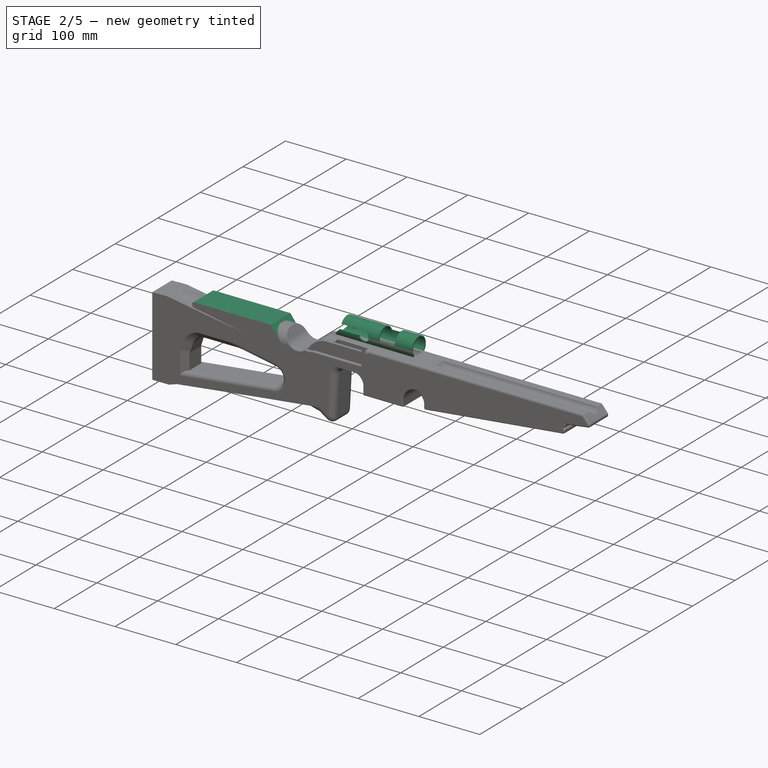
[diagram: stage 2 of 5 — iso view after this stage's code; geometry added in this stage tinted green]
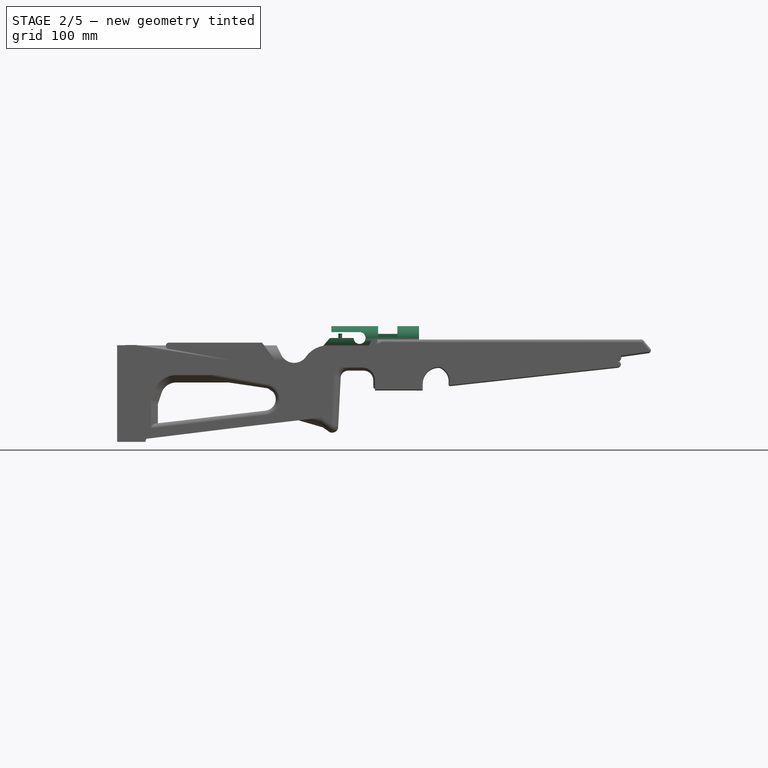
[diagram: stage 2 of 5 — front view after this stage's code; geometry added in this stage tinted green]
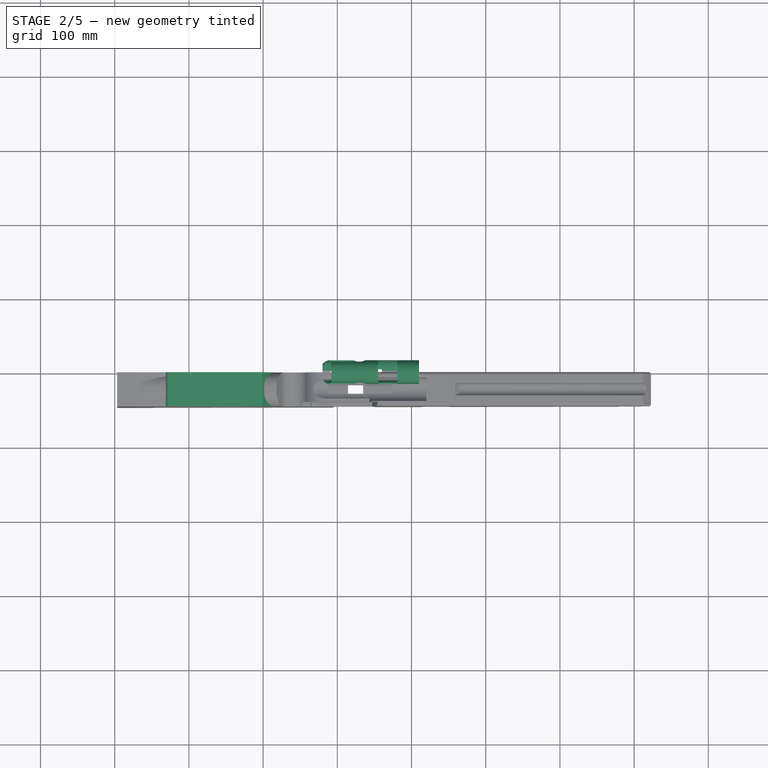
[diagram: stage 2 of 5 — top view after this stage's code; geometry added in this stage tinted green]
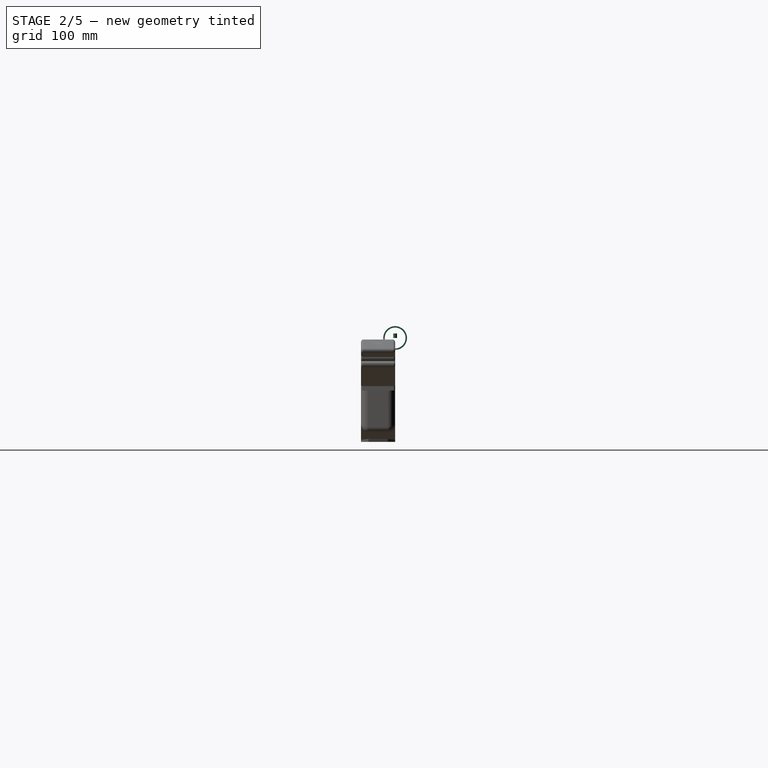
[diagram: stage 2 of 5 — right view after this stage's code; geometry added in this stage tinted green]
FEATURE [Sketcher::SketchObject] Sketch
  ArcFitTolerance = 1e-06
  AttachmentSupport = -> [YZ_Plane]
  FullyConstrained = true
  MakeInternals = false
  MapMode = 5
  Placement = pos=(0,0,0) rot=(0.57735,0.57735,0.57735;2.0944rad)
  sketch-geometry (2):
    g0: Circle CenterX=0 CenterY=0 CenterZ=0 NormalX=0 NormalY=0 NormalZ=1 AngleXU=0 Radius=16
    g1: Circle CenterX=0 CenterY=0 CenterZ=0 NormalX=0 NormalY=0 NormalZ=1 AngleXU=0 Radius=14
  constraints (4):
    c: Diameter(g0) = 32
    c: Coincident(g0,g-1)
    c: Diameter(g1) = 28
    c: Coincident(g1,g0)
FEATURE [PartDesign::Pad] Pad
  Direction = (1,0,0)
  Length = 110
  Length2 = 20
  Placement = pos=(0,0,0) rot=(1,1,1;2.0944rad)
  Profile = -> Sketch
  ReferenceAxis = -> Sketch [N_Axis]
  Refine = true
  Suppressed = false
  Type = 4
FEATURE [Sketcher::SketchObject] Sketch001
  ArcFitTolerance = 1e-06
  AttachmentSupport = -> [XZ_Plane001]
  FullyConstrained = true
  MakeInternals = false
  MapMode = 5
  Placement = pos=(0,0,0) rot=(1,0,0;1.5708rad)
  sketch-geometry (1):
    g0: Circle CenterX=30 CenterY=0 CenterZ=0 NormalX=0 NormalY=0 NormalZ=1 AngleXU=0 Radius=8
  constraints (3):
    c: Diameter(g0) = 16
    c: PointOnObject(g0,g-1)
    c: DistanceX(g0) = 30
FEATURE [PartDesign::Pad] Pad001
  Direction = (0,-1,2e-16)
  Length = 20
  Length2 = 20
  Placement = pos=(0,0,0) rot=(1,0,0;1.5708rad)
  Profile = -> Sketch001
  ReferenceAxis = -> Sketch001 [N_Axis]
  Refine = true
  Suppressed = false
  Type = 4
FEATURE [PartDesign::Body] Body001  label="cilindro_sottrazione"
  AllowCompound = false
  Group = -> [Sketch001,Pad001]
  Origin = -> Origin001
  Tip = -> Pad001
FEATURE [PartDesign::Boolean] Boolean
  BaseFeature = -> Pad
  Group = -> [Body001]
  Refine = true
  Suppressed = false
  Type = 1
  UsePlacement = true
FEATURE [Sketcher::SketchObject] Sketch002
  ArcFitTolerance = 1e-06
  AttachmentSupport = -> [XZ_Plane002]
  FullyConstrained = false
  MakeInternals = false
  MapMode = 5
  Placement = pos=(0,0,0) rot=(1,0,0;1.5708rad)
  sketch-geometry (8):
    g0: LineSegment StartX=30 StartY=0 StartZ=0 EndX=30 EndY=8 EndZ=0
    g1: LineSegment StartX=30 StartY=8 StartZ=0 EndX=-8 EndY=8 EndZ=0
    g2: LineSegment StartX=-8 StartY=18.8241 StartZ=0 EndX=-8 EndY=8 EndZ=0
    g3: LineSegment StartX=30 StartY=0 StartZ=0 EndX=-10 EndY=0 EndZ=0
    g4: LineSegment StartX=-10 StartY=0 StartZ=0 EndX=-22 EndY=-14 EndZ=0
    g5: LineSegment StartX=-22 StartY=-14 StartZ=0 EndX=-29.6825 EndY=-14 EndZ=0
    g6: LineSegment StartX=-29.6825 StartY=-14 StartZ=0 EndX=-29.6825 EndY=18.8241 EndZ=0
    g7: LineSegment StartX=-29.6825 StartY=18.8241 StartZ=0 EndX=-8 EndY=18.8241 EndZ=0
  constraints (21):
    c: Coincident(g0,g1)
    c: Horizontal(g1)
    c: Vertical(g0)
    c: Distance(g0,g-1) = 30
    c: Coincident(g2,g1)
    c: Vertical(g2)
    c: DistanceY(g1) = 8
    c: Coincident(g0,g3)
    c: Horizontal(g3)
    c: Coincident(g3,g4)
    c: DistanceY(g4) = -14
    c: DistanceX(g4,g3) = 12
    c: DistanceX(g3) = -10
    c: Coincident(g4,g5)
    c: Horizontal(g5)
    c: Coincident(g5,g6)
    c: Vertical(g6)
    c: Coincident(g6,g7)
    c: Horizontal(g7)
    c: Coincident(g7,g2)
    c: DistanceX(g1) = -8
FEATURE [PartDesign::Pad] Pad002
  Direction = (0,-1,2e-16)
  Length = 20
  Length2 = 20
  Placement = pos=(0,0,0) rot=(1,0,0;1.5708rad)
  Profile = -> Sketch002
  ReferenceAxis = -> Sketch002 [N_Axis]
  Refine = true
  Suppressed = false
  Type = 4
FEATURE [PartDesign::Body] Body002  label="Corpo001"
  AllowCompound = false
  Group = -> [Sketch002,Pad002]
  Origin = -> Origin002
  Tip = -> Pad002
FEATURE [PartDesign::Boolean] Boolean001
  BaseFeature = -> Boolean
  Group = -> [Body002]
  Refine = true
  Suppressed = false
  Type = 1
  UsePlacement = true
FEATURE [Sketcher::SketchObject] Sketch011
  ArcFitTolerance = 1e-06
  AttachmentSupport = -> [XZ_Plane007]
  FullyConstrained = true
  MakeInternals = false
  MapMode = 5
  Placement = pos=(0,0,0) rot=(1,0,0;1.5708rad)
  sketch-geometry (4):
    g0: LineSegment StartX=55 StartY=24 StartZ=0 EndX=55 EndY=0 EndZ=0
    g1: LineSegment StartX=55 StartY=0 StartZ=0 EndX=81 EndY=0 EndZ=0
    g2: LineSegment StartX=81 StartY=0 StartZ=0 EndX=81 EndY=24 EndZ=0
    g3: LineSegment StartX=81 StartY=24 StartZ=0 EndX=55 EndY=24 EndZ=0
  constraints (12):
    c: Coincident(g0,g1)
    c: Coincident(g1,g2)
    c: Coincident(g2,g3)
    c: Coincident(g3,g0)
    c: Vertical(g0)
    c: Vertical(g2)
    c: Horizontal(g1)
    c: Horizontal(g3)
    c: Distance(g0,g2) = 26
    c: Distance(g1,g3) = 24
    c: DistanceX(g0) = 55
    c: DistanceY(g0) = 24
FEATURE [PartDesign::Pad] Pad007
  Direction = (0,-1,2e-16)
  Length = 40
  Length2 = 10
  Placement = pos=(0,0,0) rot=(1,0,0;1.5708rad)
  Profile = -> Sketch011
  ReferenceAxis = -> Sketch011 [N_Axis]
  Refine = true
  Suppressed = false
  Type = 0
FEATURE [Sketcher::SketchObject] Sketch014
  ArcFitTolerance = 1e-06
  AttachmentSupport = -> [XY_Plane010]
  FullyConstrained = true
  MakeInternals = false
  MapMode = 5
  sketch-geometry (4):
    g0: LineSegment StartX=50 StartY=4 StartZ=0 EndX=50 EndY=-4 EndZ=0
    g1: LineSegment StartX=50 StartY=-4 StartZ=0 EndX=60 EndY=-4 EndZ=0
    g2: LineSegment StartX=60 StartY=-4 StartZ=0 EndX=60 EndY=4 EndZ=0
    g3: LineSegment StartX=60 StartY=4 StartZ=0 EndX=50 EndY=4 EndZ=0
  constraints (12):
    c: Coincident(g0,g1)
    c: Coincident(g1,g2)
    c: Coincident(g2,g3)
    c: Coincident(g3,g0)
    c: Vertical(g0)
    c: Vertical(g2)
    c: Horizontal(g1)
    c: Horizontal(g3)
    c: Distance(g0,g2) = 10
    c: Distance(g1,g3) = 8
    c: DistanceX(g0) = 50
    c: DistanceY(g0) = 4
FEATURE [PartDesign::Pad] Pad008
  Direction = (0,0,1)
  Length = 20
  Length2 = 10
  Profile = -> Sketch014
  ReferenceAxis = -> Sketch014 [N_Axis]
  Refine = true
  Reversed = true
  Suppressed = false
  Type = 0
FEATURE [PartDesign::Body] Body008  label="Corpo004"
  AllowCompound = false
  Group = -> [Sketch014,Pad008]
  Origin = -> Origin010
  Tip = -> Pad008
FEATURE [PartDesign::Boolean] Boolean004  label="foro_sotto"
  BaseFeature = -> Boolean001
  Group = -> [Body008]
  Refine = true
  Suppressed = false
  Type = 1
  UsePlacement = true
FEATURE [PartDesign::Body] Body005  label="perno_chiusura"
  AllowCompound = false
  Group = -> [Sketch006,Pad005,Sketch007,Pocket,Sketch088,Pocket024,Sketch089,Pocket025,Chamfer004]
  Origin = -> Origin005
  Placement = pos=(10,15,0) rot=(0,0,1;0rad)
  Tip = -> Chamfer004
FEATURE [PartDesign::Boolean] Boolean005  label="quadrato_sopra"
  BaseFeature = -> Boolean004
  Group = -> [Body007]
  Refine = true
  Suppressed = false
  Type = 1
  UsePlacement = true
FEATURE [PartDesign::Body] Body006  label="maniglia"
  AllowCompound = false
  Group = -> [Sketch009,Pad006,Sketch010,Pocket002,Fillet,Sketch012,Pocket003,Sketch101,Hole]
  Origin = -> Origin006
  Placement = pos=(10,-22,0) rot=(0,0,1;0rad)
  Tip = -> Hole
FEATURE [App::Part] Part001  label="perno_maniglia"
  Group = -> [Body005,Body006]
  Origin = -> Origin009
  Placement = pos=(2,3,0) rot=(0,0,1;0rad)
FEATURE [Sketcher::SketchObject] Sketch102
  ArcFitTolerance = 1e-06
  AttachmentSupport = -> [XY_Plane036]
  FullyConstrained = true
  MakeInternals = false
  MapMode = 5
  sketch-geometry (1):
    g0: Circle CenterX=-4 CenterY=0 CenterZ=0 NormalX=0 NormalY=0 NormalZ=1 AngleXU=0 Radius=2.5
  constraints (3):
    c: Diameter(g0) = 5
    c: PointOnObject(g0,g-1)
    c: DistanceX(g0) = -4
FEATURE [PartDesign::Pad] Pad040
  Direction = (0,0,1)
  Length = 6
  Length2 = 10
  Profile = -> Sketch102
  ReferenceAxis = -> Sketch102 [N_Axis]
  Refine = true
  Suppressed = false
  Type = 0
FEATURE [PartDesign::Body] Body030  label="Corpo006"
  AllowCompound = false
  Group = -> [Sketch102,Pad040]
  Origin = -> Origin036
  Placement = pos=(-3,0,-19) rot=(0,0,1;0rad)
  Tip = -> Pad040
FEATURE [PartDesign::Boolean] Boolean007
  BaseFeature = -> Boolean005
  Group = -> [Body030]
  Refine = true
  Suppressed = false
  Type = 1
  UsePlacement = true
FEATURE [Sketcher::SketchObject] Sketch103
  ArcFitTolerance = 1e-06
  AttachmentSupport = -> [XY_Plane037]
  FullyConstrained = true
  MakeInternals = false
  MapMode = 5
  sketch-geometry (1):
    g0: Circle CenterX=4 CenterY=0 CenterZ=0 NormalX=0 NormalY=0 NormalZ=1 AngleXU=0 Radius=2.5
  constraints (3):
    c: Diameter(g0) = 5
    c: PointOnObject(g0,g-1)
    c: DistanceX(g0) = 4
FEATURE [PartDesign::Pad] Pad041
  Direction = (0,0,1)
  Length = 6
  Length2 = 10
  Profile = -> Sketch103
  ReferenceAxis = -> Sketch103 [N_Axis]
  Refine = true
  Suppressed = false
  Type = 0
FEATURE [Sketcher::SketchObject] Sketch126
  ArcFitTolerance = 1e-06
  AttachmentSupport = -> [XZ_Plane043]
  FullyConstrained = false
  MakeInternals = false
  MapMode = 5
  Placement = pos=(0,0,0) rot=(1,0,0;1.5708rad)
  sketch-geometry (5):
    g0: LineSegment StartX=-226.976 StartY=-6.2806 StartZ=0 EndX=-101.462 EndY=-6.2806 EndZ=0
    g1: LineSegment StartX=-101.462 StartY=-6.2806 StartZ=0 EndX=-80.3187 EndY=-34.7598 EndZ=0
    g2: LineSegment StartX=-83.3936 StartY=-39.7481 StartZ=0 EndX=-227.694 EndY=-14.5818 EndZ=0
    g3: ArcOfCircle CenterX=-82.8516 CenterY=-36.6403 CenterZ=0 NormalX=0 NormalY=0 NormalZ=1 AngleXU=0 Radius=3.1547 StartAngle=4.53972 EndAngle=6.92182
    g4: ArcOfCircle CenterX=-226.976 CenterY=-10.4623 CenterZ=0 NormalX=0 NormalY=0 NormalZ=1 AngleXU=0 Radius=4.18169 StartAngle=1.5708 EndAngle=4.53972
  constraints (6):
    c: Horizontal(g0)
    c: Coincident(g0,g1)
    c: Tangent(g1,g3) = 1.5708
    c: Tangent(g2,g3) = 1.5708
    c: Tangent(g2,g4) = 1.5708
    c: Tangent(g0,g4) = 1.5708
FEATURE [PartDesign::Pad] Pad048
  Direction = (0,-1,2e-16)
  Length = 46
  Length2 = 10
  Placement = pos=(0,0,0) rot=(1,0,0;1.5708rad)
  Profile = -> Sketch126
  ReferenceAxis = -> Sketch126 [N_Axis]
  Refine = true
  Suppressed = false
  Type = 0
FEATURE [Sketcher::SketchObject] Sketch127
  ArcFitTolerance = 1e-06
  AttachmentSupport = -> [Pad048]
  FullyConstrained = false
  MakeInternals = false
  MapMode = 5
  Placement = pos=(0,-2.8e-15,-6.2806) rot=(0,0,1;3.14159rad)
  sketch-geometry (1):
    g0: Circle CenterX=177.725 CenterY=23 CenterZ=0 NormalX=0 NormalY=0 NormalZ=1 AngleXU=0 Radius=6
  constraints (2):
    c: Diameter(g0) = 12
    c: DistanceY(g0) = 23
FEATURE [PartDesign::Pad] Pad049
  BaseFeature = -> Pad048
  Direction = (0,0,1)
  Length = 30
  Length2 = 10
  Placement = pos=(0,0,0) rot=(1,0,0;1.5708rad)
  Profile = -> Sketch127
  ReferenceAxis = -> Sketch127 [N_Axis]
  Refine = true
  Reversed = true
  Suppressed = false
  Type = 0
FEATURE [Sketcher::SketchObject] Sketch128
  ArcFitTolerance = 1e-06
  AttachmentSupport = -> [Pad049]
  FullyConstrained = false
  MakeInternals = false
  MapMode = 5
  Placement = pos=(0,-2.8e-15,-6.2806) rot=(0,0,1;3.14159rad)
  sketch-geometry (1):
    g0: Circle CenterX=112.892 CenterY=23 CenterZ=0 NormalX=0 NormalY=0 NormalZ=1 AngleXU=0 Radius=6
  constraints (2):
    c: Diameter(g0) = 12
    c: DistanceY(g0) = 23
FEATURE [PartDesign::Pad] Pad050
  BaseFeature = -> Pad049
  Direction = (0,0,1)
  Length = 40
  Length2 = 10
  Placement = pos=(0,0,0) rot=(1,0,0;1.5708rad)
  Profile = -> Sketch128
  ReferenceAxis = -> Sketch128 [N_Axis]
  Refine = true
  Reversed = true
  Suppressed = false
  Type = 0
FEATURE [Sketcher::SketchObject] Sketch134
  ArcFitTolerance = 1e-06
  AttachmentSupport = -> [XZ_Plane047]
  FullyConstrained = false
  MakeInternals = false
  MapMode = 5
  Placement = pos=(0,0,0) rot=(1,0,0;1.5708rad)
  sketch-geometry (5):
    g0: LineSegment StartX=-226.976 StartY=-6.2806 StartZ=0 EndX=-101.462 EndY=-6.2806 EndZ=0
    g1: LineSegment StartX=-101.462 StartY=-6.2806 StartZ=0 EndX=-80.3187 EndY=-34.7598 EndZ=0
    g2: LineSegment StartX=-83.3936 StartY=-39.7481 StartZ=0 EndX=-227.694 EndY=-14.5818 EndZ=0
    g3: ArcOfCircle CenterX=-82.8516 CenterY=-36.6403 CenterZ=0 NormalX=0 NormalY=0 NormalZ=1 AngleXU=0 Radius=3.1547 StartAngle=4.53972 EndAngle=6.92182
    g4: ArcOfCircle CenterX=-226.976 CenterY=-10.4623 CenterZ=0 NormalX=0 NormalY=0 NormalZ=1 AngleXU=0 Radius=4.18169 StartAngle=1.5708 EndAngle=4.53972
  constraints (6):
    c: Horizontal(g0)
    c: Coincident(g0,g1)
    c: Tangent(g1,g3) = 1.5708
    c: Tangent(g2,g3) = 1.5708
    c: Tangent(g2,g4) = 1.5708
    c: Tangent(g0,g4) = 1.5708
FEATURE [PartDesign::Pad] Pad052
  Direction = (0,-1,2e-16)
  Length = 46
  Length2 = 10
  Placement = pos=(0,0,0) rot=(1,0,0;1.5708rad)
  Profile = -> Sketch134
  ReferenceAxis = -> Sketch134 [N_Axis]
  Refine = true
  Suppressed = false
  Type = 0
FEATURE [Sketcher::SketchObject] Sketch135
  ArcFitTolerance = 1e-06
  AttachmentSupport = -> [Pad052]
  FullyConstrained = false
  MakeInternals = false
  MapMode = 5
  Placement = pos=(0,-2.8e-15,-6.2806) rot=(0,0,1;3.14159rad)
  sketch-geometry (1):
    g0: Circle CenterX=177.725 CenterY=23 CenterZ=0 NormalX=0 NormalY=0 NormalZ=1 AngleXU=0 Radius=6
  constraints (2):
    c: Diameter(g0) = 12
    c: DistanceY(g0) = 23
FEATURE [PartDesign::Pad] Pad053
  BaseFeature = -> Pad052
  Direction = (0,0,1)
  Length = 30
  Length2 = 10
  Placement = pos=(0,0,0) rot=(1,0,0;1.5708rad)
  Profile = -> Sketch135
  ReferenceAxis = -> Sketch135 [N_Axis]
  Refine = true
  Reversed = true
  Suppressed = false
  Type = 0
FEATURE [Sketcher::SketchObject] Sketch136
  ArcFitTolerance = 1e-06
  AttachmentSupport = -> [Pad053]
  FullyConstrained = false
  MakeInternals = false
  MapMode = 5
  Placement = pos=(0,-2.8e-15,-6.2806) rot=(0,0,1;3.14159rad)
  sketch-geometry (1):
    g0: Circle CenterX=112.892 CenterY=23 CenterZ=0 NormalX=0 NormalY=0 NormalZ=1 AngleXU=0 Radius=6
  constraints (2):
    c: Diameter(g0) = 12
    c: DistanceY(g0) = 23
FEATURE [PartDesign::Pad] Pad054
  BaseFeature = -> Pad053
  Direction = (0,0,1)
  Length = 40
  Length2 = 10
  Placement = pos=(0,0,0) rot=(1,0,0;1.5708rad)
  Profile = -> Sketch136
  ReferenceAxis = -> Sketch136 [N_Axis]
  Refine = true
  Reversed = true
  Suppressed = false
  Type = 0
FEATURE [Sketcher::SketchObject] Sketch139
  ArcFitTolerance = 1e-06
  AttachmentSupport = -> [YZ_Plane048]
  FullyConstrained = true
  MakeInternals = false
  MapMode = 5
  Placement = pos=(0,0,0) rot=(0.57735,0.57735,0.57735;2.0944rad)
  sketch-geometry (1):
    g0: Circle CenterX=-23 CenterY=0 CenterZ=0 NormalX=0 NormalY=0 NormalZ=1 AngleXU=0 Radius=16
  constraints (3):
    c: Diameter(g0) = 32
    c: PointOnObject(g0,g-1)
    c: DistanceX(g0) = -23
FEATURE [PartDesign::Pocket] Pocket049  label="foro_otturatore003"
  BaseFeature = -> Pad055
  Direction = (-1,0,0)
  Length = 60
  Length2 = 132
  Placement = pos=(0,0,0) rot=(1,0,0;1.5708rad)
  Profile = -> Sketch139
  ReferenceAxis = -> Sketch139 [N_Axis]
  Refine = true
  Suppressed = false
  Type = 4
FEATURE [Sketcher::SketchObject] Sketch140
  ArcFitTolerance = 1e-06
  AttachmentSupport = -> [XY_Plane048]
  FullyConstrained = true
  MakeInternals = false
  MapMode = 5
  sketch-geometry (4):
    g0: LineSegment StartX=-12 StartY=-17 StartZ=0 EndX=-12 EndY=-29 EndZ=0
    g1: LineSegment StartX=-12 StartY=-29 StartZ=0 EndX=74 EndY=-29 EndZ=0
    g2: LineSegment StartX=74 StartY=-29 StartZ=0 EndX=74 EndY=-17 EndZ=0
    g3: LineSegment StartX=74 StartY=-17 StartZ=0 EndX=-12 EndY=-17 EndZ=0
  constraints (12):
    c: Coincident(g0,g1)
    c: Coincident(g1,g2)
    c: Coincident(g2,g3)
    c: Coincident(g3,g0)
    c: Vertical(g0)
    c: Vertical(g2)
    c: Horizontal(g1)
    c: Horizontal(g3)
    c: Distance(g0,g2) = 86
    c: Distance(g1,g3) = 12
    c: DistanceY(g0) = -17
    c: DistanceX(g0) = -12
FEATURE [PartDesign::Pocket] Pocket050  label="foro_grilletto003"
  BaseFeature = -> Pocket049
  Direction = (0,0,-1)
  Length = 44
  Length2 = 5
  Placement = pos=(0,0,0) rot=(1,0,0;1.5708rad)
  Profile = -> Sketch140
  ReferenceAxis = -> Sketch140 [N_Axis]
  Refine = true
  Suppressed = false
  Type = 0
FEATURE [Sketcher::SketchObject] Sketch141
  ArcFitTolerance = 1e-06
  AttachmentSupport = -> [Pocket050]
  FullyConstrained = false
  MakeInternals = false
  MapMode = 5
  Placement = pos=(0,-46,0) rot=(1,0,0;1.5708rad)
  sketch-geometry (4):
    g0: LineSegment StartX=-54.9363 StartY=0 StartZ=0 EndX=-54.9363 EndY=-29.5997 EndZ=0
    g1: LineSegment StartX=-54.9363 StartY=-29.5997 StartZ=0 EndX=48.0321 EndY=-29.5997 EndZ=0
    g2: LineSegment StartX=48.0321 StartY=-29.5997 StartZ=0 EndX=60.9738 EndY=0 EndZ=0
    g3: LineSegment StartX=60.9738 StartY=0 StartZ=0 EndX=-54.9363 EndY=0 EndZ=0
  constraints (8):
    c: Coincident(g0,g1)
    c: Coincident(g1,g2)
    c: Coincident(g2,g3)
    c: Coincident(g3,g0)
    c: Vertical(g0)
    c: Horizontal(g1)
    c: Horizontal(g3)
    c: PointOnObject(g0,g-1)
FEATURE [PartDesign::Pocket] Pocket051
  BaseFeature = -> Pocket050
  Direction = (0,1,-2e-16)
  Length = 6
  Length2 = 5
  Placement = pos=(0,0,0) rot=(1,0,0;1.5708rad)
  Profile = -> Sketch141
  ReferenceAxis = -> Sketch141 [N_Axis]
  Refine = true
  Suppressed = false
  Type = 0
FEATURE [Sketcher::SketchObject] Sketch142
  ArcFitTolerance = 1e-06
  AttachmentSupport = -> [YZ_Plane048]
  FullyConstrained = true
  MakeInternals = false
  MapMode = 5
  Placement = pos=(0,0,0) rot=(0.57735,0.57735,0.57735;2.0944rad)
  sketch-geometry (1):
    g0: Circle CenterX=-23 CenterY=0 CenterZ=0 NormalX=0 NormalY=0 NormalZ=1 AngleXU=0 Radius=8.5
  constraints (3):
    c: Diameter(g0) = 17
    c: PointOnObject(g0,g-1)
    c: DistanceX(g0) = -23
FEATURE [PartDesign::Pocket] Pocket052
  BaseFeature = -> Pocket051
  Direction = (-1,0,0)
  Length = 5
  Length2 = 5
  Placement = pos=(0,0,0) rot=(1,0,0;1.5708rad)
  Profile = -> Sketch142
  ReferenceAxis = -> Sketch142 [N_Axis]
  Refine = true
  Reversed = true
  Suppressed = false
  Type = 1
FEATURE [PartDesign::Fillet] Fillet017
  Base = -> Pocket052 [Edge39,Edge16]
  BaseFeature = -> Pocket052
  Placement = pos=(0,0,0) rot=(1,0,0;1.5708rad)
  Radius = 10
  Refine = true
  SupportTransform = false
  Suppressed = false
  UseAllEdges = false
FEATURE [PartDesign::Fillet] Fillet018
  Base = -> Fillet017 [Edge30,Edge1]
  BaseFeature = -> Fillet017
  Placement = pos=(0,0,0) rot=(1,0,0;1.5708rad)
  Radius = 2
  Refine = true
  SupportTransform = false
  Suppressed = false
  UseAllEdges = false
FEATURE [PartDesign::Fillet] Fillet019
  Base = -> Fillet018 [Edge46,Edge10]
  BaseFeature = -> Fillet018
  Placement = pos=(0,0,0) rot=(1,0,0;1.5708rad)
  Radius = 2
  Refine = true
  SupportTransform = false
  Suppressed = false
  UseAllEdges = false
FEATURE [PartDesign::Chamfer] Chamfer010
  Angle = 45
  Base = -> Fillet019 [Edge27,Edge98]
  BaseFeature = -> Fillet019
  ChamferType = 0
  FlipDirection = false
  Placement = pos=(0,0,0) rot=(1,0,0;1.5708rad)
  Refine = true
  Size = 10
  Size2 = 1
  SupportTransform = false
  Suppressed = false
  UseAllEdges = false
FEATURE [PartDesign::Fillet] Fillet020
  Base = -> Chamfer010 [Edge40,Edge5]
  BaseFeature = -> Chamfer010
  Placement = pos=(0,0,0) rot=(1,0,0;1.5708rad)
  Radius = 20
  Refine = true
  SupportTransform = false
  Suppressed = false
  UseAllEdges = false
FEATURE [PartDesign::Fillet] Fillet021
  Base = -> Fillet020 [Edge117,Edge88,Edge99,Edge26]
  BaseFeature = -> Fillet020
  Placement = pos=(0,0,0) rot=(1,0,0;1.5708rad)
  Radius = 2
  Refine = true
  SupportTransform = false
  Suppressed = false
  UseAllEdges = false
FEATURE [PartDesign::Fillet] Fillet022
  Base = -> Fillet021 [Edge11,Edge120]
  BaseFeature = -> Fillet021
  Placement = pos=(0,0,0) rot=(1,0,0;1.5708rad)
  Radius = 6
  Refine = true
  SupportTransform = false
  Suppressed = false
  UseAllEdges = false
FEATURE [PartDesign::Fillet] Fillet023
  Base = -> Fillet022 [Edge3,Edge39]
  BaseFeature = -> Fillet022
  Placement = pos=(0,0,0) rot=(1,0,0;1.5708rad)
  Radius = 2
  Refine = true
  SupportTransform = false
  Suppressed = false
  UseAllEdges = false
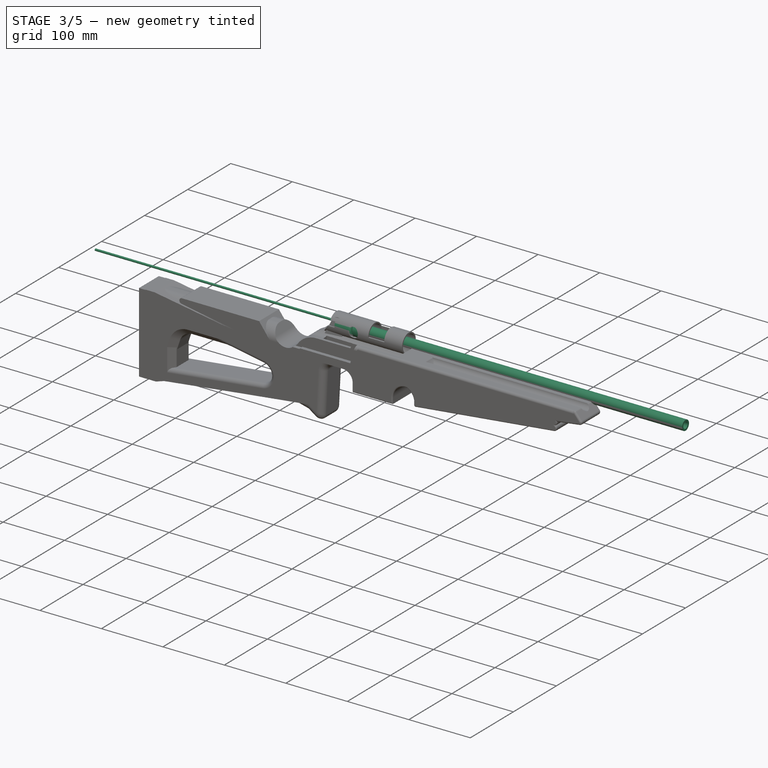
[diagram: stage 3 of 5 — iso view after this stage's code; geometry added in this stage tinted green]
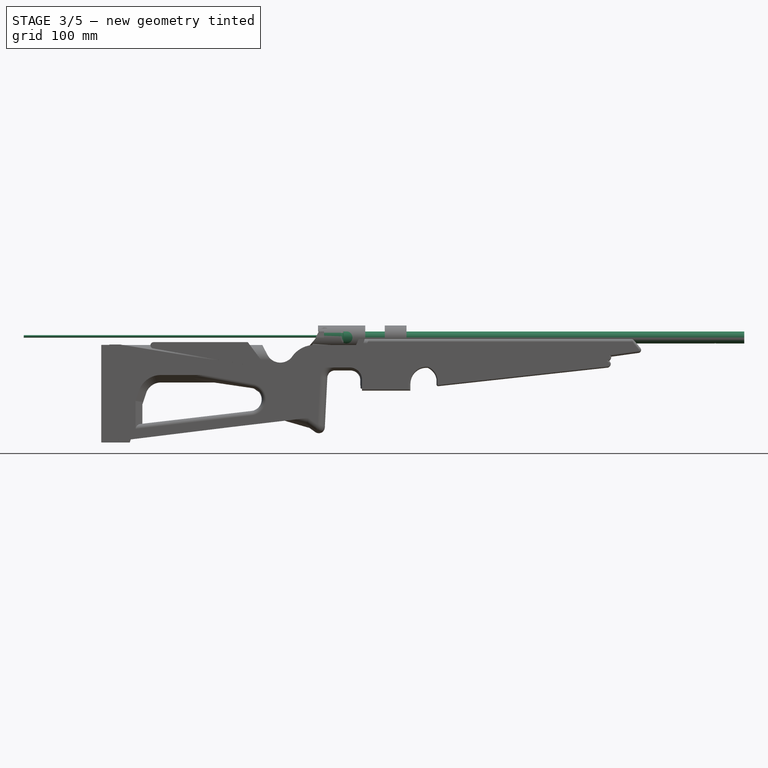
[diagram: stage 3 of 5 — front view after this stage's code; geometry added in this stage tinted green]
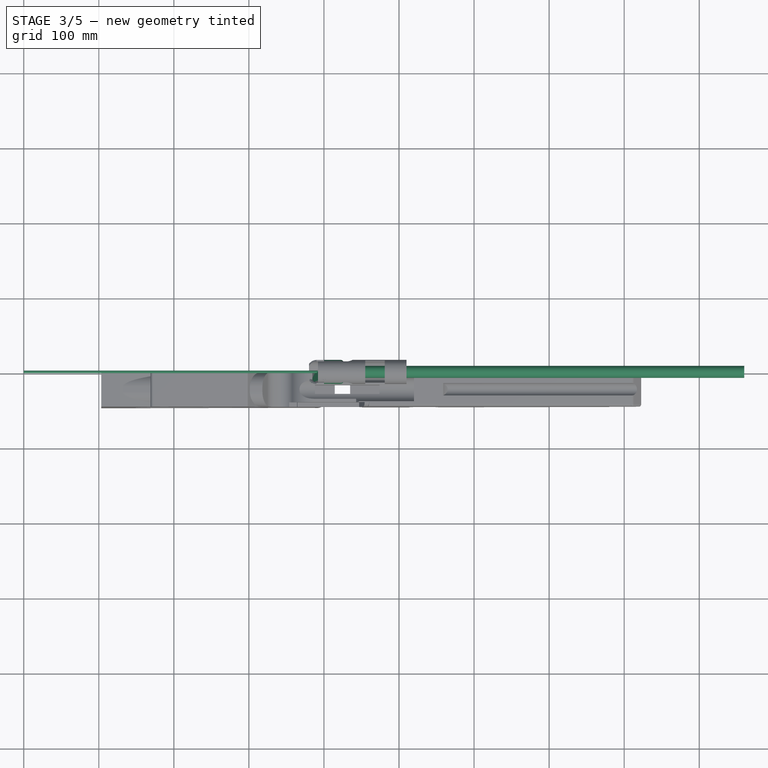
[diagram: stage 3 of 5 — top view after this stage's code; geometry added in this stage tinted green]
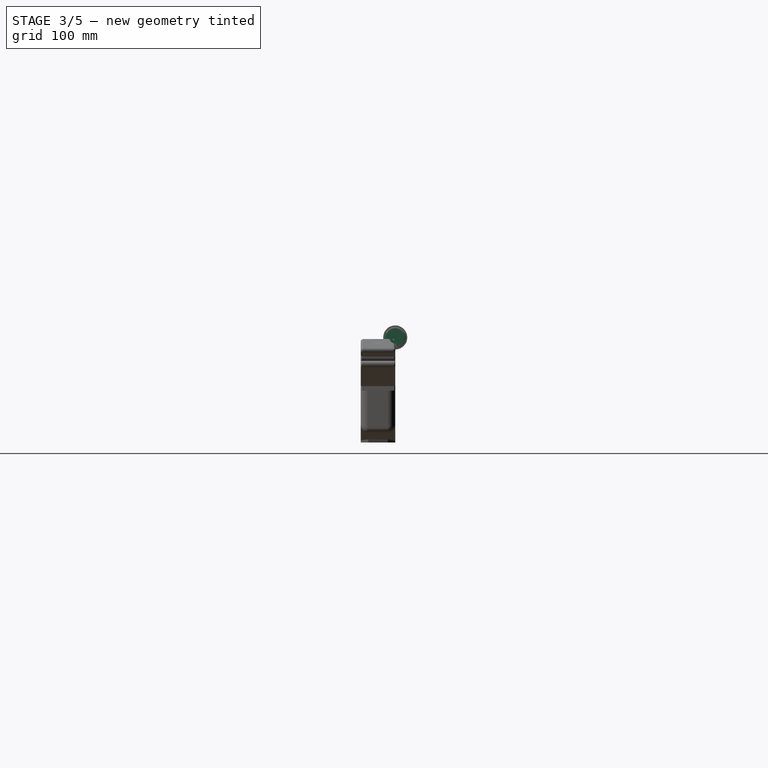
[diagram: stage 3 of 5 — right view after this stage's code; geometry added in this stage tinted green]
FEATURE [Sketcher::SketchObject] Sketch009
  ArcFitTolerance = 1e-06
  AttachmentSupport = -> [XZ_Plane006]
  FullyConstrained = true
  MakeInternals = false
  MapMode = 5
  Placement = pos=(0,0,0) rot=(1,0,0;1.5708rad)
  sketch-geometry (4):
    g0: LineSegment StartX=-7.15677 StartY=7.80356 StartZ=0 EndX=-20.6806 EndY=-21.1983 EndZ=0
    g1: LineSegment StartX=10 StartY=4 StartZ=0 EndX=10 EndY=-28 EndZ=0
    g2: ArcOfCircle CenterX=1 CenterY=4 CenterZ=0 NormalX=0 NormalY=0 NormalZ=1 AngleXU=0 Radius=9 StartAngle=0 EndAngle=2.70526
    g3: LineSegment StartX=-20.6806 StartY=-21.1983 StartZ=0 EndX=10 EndY=-28 EndZ=0
  constraints (11):
    c: Distance(g0) = 32
    c: Angle(g-1,g0) = -2.00713
    c: Diameter(g2) = 18
    c: Coincident(g3,g0)
    c: Coincident(g3,g1)
    c: DistanceY(g2) = 4
    c: DistanceX(g2) = 1
    c: Vertical(g1)
    c: Tangent(g1,g2) = 1.5708
    c: Tangent(g0,g2) = -1.5708
    c: DistanceY(g1,g1) = 32
FEATURE [PartDesign::Pad] Pad006
  Direction = (0,-1,2e-16)
  Length = 16
  Length2 = 10
  Placement = pos=(0,0,0) rot=(1,0,0;1.5708rad)
  Profile = -> Sketch009
  ReferenceAxis = -> Sketch009 [N_Axis]
  Refine = true
  Suppressed = false
  Type = 0
FEATURE [Sketcher::SketchObject] Sketch010
  ArcFitTolerance = 1e-06
  AttachmentSupport = -> [Pad006]
  FullyConstrained = true
  MakeInternals = false
  MapMode = 5
  Placement = pos=(0,-2.1e-15,0) rot=(-1,0,0;1.5708rad)
  sketch-geometry (2):
    g0: ArcOfCircle CenterX=0 CenterY=0 CenterZ=0 NormalX=0 NormalY=0 NormalZ=1 AngleXU=0 Radius=8 StartAngle=3.14159 EndAngle=6.28319
    g1: LineSegment StartX=-8 StartY=-1.014e-13 StartZ=0 EndX=8 EndY=-1.014e-13 EndZ=0
  constraints (6):
    c: Diameter(g0) = 16
    c: Coincident(g0,g-1)
    c: Horizontal(g1)
    c: DistanceY(g1) = 0
    c: Coincident(g0,g1)
    c: Coincident(g0,g1)
FEATURE [PartDesign::Pocket] Pocket002
  BaseFeature = -> Pad006
  Direction = (0,-1,-2e-16)
  Length = 8
  Length2 = 5
  Placement = pos=(0,0,0) rot=(1,0,0;1.5708rad)
  Profile = -> Sketch010
  ReferenceAxis = -> Sketch010 [N_Axis]
  Refine = true
  Suppressed = false
  Type = 0
FEATURE [PartDesign::Body] Body007  label="Corpo"
  AllowCompound = false
  Group = -> [Sketch011,Pad007]
  Origin = -> Origin007
  Placement = pos=(0,15,0) rot=(0,0,1;0rad)
  Tip = -> Pad007
FEATURE [PartDesign::Fillet] Fillet
  Base = -> Pocket002 [Edge8,Edge5]
  BaseFeature = -> Pocket002
  Placement = pos=(0,0,0) rot=(1,0,0;1.5708rad)
  Radius = 3
  Refine = true
  SupportTransform = false
  Suppressed = false
  UseAllEdges = false
FEATURE [Sketcher::SketchObject] Sketch012
  ArcFitTolerance = 1e-06
  AttachmentSupport = -> [Fillet]
  FullyConstrained = false
  MakeInternals = false
  MapMode = 5
  Placement = pos=(-8.86747,1.9e-15,4.13497) rot=(-0.5373,0,0.843391;3.14159rad)
  sketch-geometry (5):
    g0: LineSegment StartX=-14 StartY=10 StartZ=0 EndX=32 EndY=16 EndZ=0
    g1: LineSegment StartX=-14.4146 StartY=9e-16 StartZ=0 EndX=6 EndY=9e-16 EndZ=0
    g2: LineSegment StartX=6 StartY=9e-16 StartZ=0 EndX=32 EndY=2 EndZ=0
    g3: ArcOfCircle CenterX=9.22647 CenterY=11.2637 CenterZ=0 NormalX=0 NormalY=0 NormalZ=1 AngleXU=0 Radius=23.2608 StartAngle=0.205051 EndAngle=3.19595
    g4: ArcOfCircle CenterX=8.7354 CenterY=2.3298 CenterZ=0 NormalX=0 NormalY=0 NormalZ=1 AngleXU=0 Radius=23.2669 StartAngle=3.24189 EndAngle=6.26901
  constraints (14):
    c: DistanceX(g0) = -14
    c: DistanceX(g0) = 32
    c: DistanceY(g0) = 16
    c: DistanceY(g0) = 10
    c: DistanceX(g2) = 32
    c: DistanceY(g2) = 2
    c: DistanceY(g1) = 0
    c: Horizontal(g1)
    c: Coincident(g1,g2)
    c: DistanceX(g1) = 6
    c: Coincident(g3,g0)
    c: Coincident(g3,g0)
    c: Coincident(g4,g1)
    c: Coincident(g4,g2)
FEATURE [PartDesign::Pocket] Pocket003  label="tasca_triangolo"
  BaseFeature = -> Fillet
  Direction = (0.906308,0,-0.422618)
  Length = 5
  Length2 = 5
  Placement = pos=(0,0,0) rot=(1,0,0;1.5708rad)
  Profile = -> Sketch012
  ReferenceAxis = -> Sketch012 [N_Axis]
  Refine = true
  Suppressed = false
  Type = 1
FEATURE [Sketcher::SketchObject] Sketch082
  ArcFitTolerance = 1e-06
  AttachmentSupport = -> [YZ_Plane021]
  FullyConstrained = true
  MakeInternals = false
  MapMode = 5
  Placement = pos=(0,0,0) rot=(0.57735,0.57735,0.57735;2.0944rad)
  sketch-geometry (1):
    g0: Circle CenterX=0 CenterY=0 CenterZ=0 NormalX=0 NormalY=0 NormalZ=1 AngleXU=0 Radius=12
  constraints (2):
    c: Diameter(g0) = 24
    c: Coincident(g0,g-1)
FEATURE [PartDesign::Pad] Pad024
  Direction = (1,0,0)
  Length = 34
  Length2 = 10
  Placement = pos=(0,0,0) rot=(1,1,1;2.0944rad)
  Profile = -> Sketch082
  ReferenceAxis = -> Sketch082 [N_Axis]
  Refine = true
  Suppressed = false
  Type = 0
FEATURE [Sketcher::SketchObject] Sketch091
  ArcFitTolerance = 1e-06
  AttachmentSupport = -> [YZ_Plane030]
  FullyConstrained = true
  MakeInternals = false
  MapMode = 5
  Placement = pos=(0,0,0) rot=(0.57735,0.57735,0.57735;2.0944rad)
  sketch-geometry (2):
    g0: Circle CenterX=0 CenterY=0 CenterZ=0 NormalX=0 NormalY=0 NormalZ=1 AngleXU=0 Radius=4
    g1: Circle CenterX=0 CenterY=0 CenterZ=0 NormalX=0 NormalY=0 NormalZ=1 AngleXU=0 Radius=8
  constraints (4):
    c: Diameter(g0) = 8
    c: Coincident(g0,g-1)
    c: Diameter(g1) = 16
    c: Coincident(g1,g0)
FEATURE [PartDesign::Pad] Pad032
  Direction = (1,0,0)
  Length = 560
  Length2 = 10
  Placement = pos=(0,0,0) rot=(1,1,1;2.0944rad)
  Profile = -> Sketch091
  ReferenceAxis = -> Sketch091 [N_Axis]
  Refine = true
  Suppressed = false
  Type = 0
FEATURE [Sketcher::SketchObject] Sketch092
  ArcFitTolerance = 1e-06
  AttachmentSupport = -> [YZ_Plane031]
  FullyConstrained = true
  MakeInternals = false
  MapMode = 5
  Placement = pos=(0,0,0) rot=(0.57735,0.57735,0.57735;2.0944rad)
  sketch-geometry (2):
    g0: Circle CenterX=0 CenterY=0 CenterZ=0 NormalX=0 NormalY=0 NormalZ=1 AngleXU=0 Radius=16
    g1: Circle CenterX=0 CenterY=0 CenterZ=0 NormalX=0 NormalY=0 NormalZ=1 AngleXU=0 Radius=8
  constraints (4):
    c: Diameter(g0) = 32
    c: Coincident(g0,g-1)
    c: Diameter(g1) = 16
    c: Coincident(g1,g0)
FEATURE [PartDesign::Pad] Pad033
  Direction = (1,0,0)
  Length = 40
  Length2 = 10
  Placement = pos=(0,0,0) rot=(1,1,1;2.0944rad)
  Profile = -> Sketch092
  ReferenceAxis = -> Sketch092 [N_Axis]
  Refine = true
  Suppressed = false
  Type = 0
FEATURE [Sketcher::SketchObject] Sketch093
  ArcFitTolerance = 1e-06
  AttachmentSupport = -> [Pad033]
  FullyConstrained = true
  MakeInternals = false
  MapMode = 5
  Placement = pos=(40,0,0) rot=(0.57735,0.57735,0.57735;2.0944rad)
  sketch-geometry (2):
    g0: Circle CenterX=0 CenterY=0 CenterZ=0 NormalX=0 NormalY=0 NormalZ=1 AngleXU=0 Radius=12
    g1: Circle CenterX=0 CenterY=0 CenterZ=0 NormalX=0 NormalY=0 NormalZ=1 AngleXU=0 Radius=20
  constraints (4):
    c: Diameter(g0) = 24
    c: Coincident(g0,g-1)
    c: Diameter(g1) = 40
    c: Coincident(g1,g0)
FEATURE [PartDesign::Pocket] Pocket026
  BaseFeature = -> Pad033
  Direction = (-1,0,0)
  Length = 14
  Length2 = 5
  Placement = pos=(0,0,0) rot=(1,1,1;2.0944rad)
  Profile = -> Sketch093
  ReferenceAxis = -> Sketch093 [N_Axis]
  Refine = true
  Suppressed = false
  Type = 0
FEATURE [Sketcher::SketchObject] Sketch094
  ArcFitTolerance = 1e-06
  FullyConstrained = false
  MakeInternals = false
  MapMode = 5
  Placement = pos=(0,0,0) rot=(0.57735,0.57735,-0.57735;4.18879rad)
  sketch-geometry (2):
    g0: Circle CenterX=0 CenterY=0 CenterZ=0 NormalX=0 NormalY=0 NormalZ=1 AngleXU=0 Radius=26.1034
    g1: Circle CenterX=0 CenterY=0 CenterZ=0 NormalX=0 NormalY=0 NormalZ=1 AngleXU=0 Radius=16
  constraints (3):
    c: Coincident(g0,g-1)
    c: Diameter(g1) = 32
    c: Coincident(g1,g0)
FEATURE [PartDesign::Pocket] Pocket027
  BaseFeature = -> Pocket026
  Direction = (1,0,0)
  Length = 19
  Length2 = 5
  Placement = pos=(0,0,0) rot=(1,1,1;2.0944rad)
  Profile = -> Sketch094
  ReferenceAxis = -> Sketch094 [N_Axis]
  Refine = true
  Suppressed = false
  Type = 0
FEATURE [PartDesign::Fillet] Fillet008
  Base = -> Pocket027 [Edge1]
  BaseFeature = -> Pocket027
  Placement = pos=(0,0,0) rot=(1,1,1;2.0944rad)
  Radius = 3.9
  Refine = true
  SupportTransform = false
  Suppressed = false
  UseAllEdges = false
FEATURE [PartDesign::Body] Body026  label="raccordo_canna"
  AllowCompound = false
  Group = -> [Sketch092,Pad033,Sketch093,Pocket026,Sketch094,Pocket027,Fillet008,Chamfer005,Sketch100,Pocket029]
  Origin = -> Origin031
  Placement = pos=(91,0,0) rot=(0,0,1;0rad)
  Tip = -> Pocket029
FEATURE [Sketcher::SketchObject] Sketch101
  ArcFitTolerance = 1e-06
  AttachmentSupport = -> [Pocket003]
  FullyConstrained = true
  MakeInternals = false
  MapMode = 5
  Placement = pos=(-5.44819,-1.08e-14,-24.5752) rot=(0.994056,0,-0.108867;3.14159rad)
  sketch-geometry (1):
    g0: Circle CenterX=0 CenterY=4 CenterZ=0 NormalX=0 NormalY=0 NormalZ=1 AngleXU=0 Radius=2
  constraints (3):
    c: Diameter(g0) = 4
    c: PointOnObject(g0,g-2)
    c: DistanceY(g0) = 4
FEATURE [PartDesign::Hole] Hole
  BaseFeature = -> Pocket003
  CustomThreadClearance = 0
  Depth = 30
  DepthType = 0
  Diameter = 4.5
  DrillForDepth = false
  DrillPoint = 1
  DrillPointAngle = 118
  HoleCutCountersinkAngle = 90
  HoleCutCustomValues = false
  HoleCutDepth = 0
  HoleCutDiameter = 6.1
  HoleCutType = 0
  ModelThread = false
  Placement = pos=(0,0,0) rot=(1,0,0;1.5708rad)
  Profile = -> Sketch101
  Refine = true
  Suppressed = false
  Tapered = false
  TaperedAngle = 90
  ThreadClass = 0
  ThreadDepth = 30
  ThreadDepthType = 0
  ThreadDirection = 0
  ThreadFit = 0
  ThreadSize = 11
  ThreadType = 1
  Threaded = false
  UseCustomThreadClearance = false
FEATURE [PartDesign::Body] Body031  label="Corpo007"
  AllowCompound = false
  Group = -> [Sketch103,Pad041]
  Origin = -> Origin037
  Placement = pos=(65,0,-19) rot=(0,0,1;0rad)
  Tip = -> Pad041
FEATURE [PartDesign::Boolean] Boolean008
  BaseFeature = -> Boolean007
  Group = -> [Body031]
  Refine = true
  Suppressed = false
  Type = 1
  UsePlacement = true
FEATURE [Sketcher::SketchObject] Sketch105
  ArcFitTolerance = 1e-06
  AttachmentSupport = -> [YZ_Plane038]
  FullyConstrained = true
  MakeInternals = false
  MapMode = 5
  Placement = pos=(0,0,0) rot=(0.57735,0.57735,0.57735;2.0944rad)
  sketch-geometry (1):
    g0: Circle CenterX=0 CenterY=0 CenterZ=0 NormalX=0 NormalY=0 NormalZ=1 AngleXU=0 Radius=4
  constraints (2):
    c: Diameter(g0) = 8
    c: Coincident(g0,g-1)
FEATURE [PartDesign::Pad] Pad042
  Direction = (1,0,0)
  Length = 26
  Length2 = 10
  Placement = pos=(0,0,0) rot=(1,1,1;2.0944rad)
  Profile = -> Sketch105
  ReferenceAxis = -> Sketch105 [N_Axis]
  Refine = true
  Suppressed = false
  Type = 0
FEATURE [Sketcher::SketchObject] Sketch106
  ArcFitTolerance = 1e-06
  AttachmentSupport = -> [Pad042]
  FullyConstrained = true
  MakeInternals = false
  MapMode = 5
  Placement = pos=(26,0,0) rot=(0.57735,0.57735,0.57735;2.0944rad)
FEATURE [Sketcher::SketchObject] Sketch107
  ArcFitTolerance = 1e-06
  AttachmentSupport = -> [Pad042]
  FullyConstrained = true
  MakeInternals = false
  MapMode = 5
  Placement = pos=(0,0,0) rot=(0.57735,0.57735,-0.57735;4.18879rad)
  sketch-geometry (1):
    g0: Circle CenterX=0 CenterY=-1.5 CenterZ=0 NormalX=0 NormalY=0 NormalZ=1 AngleXU=0 Radius=1.7
  constraints (3):
    c: Diameter(g0) = 3.4
    c: PointOnObject(g0,g-2)
    c: DistanceY(g0) = -1.5
FEATURE [PartDesign::Pad] Pad043
  BaseFeature = -> Pad042
  Direction = (-1,0,0)
  Length = 400
  Length2 = 10
  Placement = pos=(0,0,0) rot=(1,1,1;2.0944rad)
  Profile = -> Sketch107
  ReferenceAxis = -> Sketch107 [N_Axis]
  Refine = true
  Suppressed = false
  Type = 0
FEATURE [Sketcher::SketchObject] Sketch108
  ArcFitTolerance = 1e-06
  AttachmentSupport = -> [Pad043]
  FullyConstrained = true
  MakeInternals = false
  MapMode = 5
  Placement = pos=(26,0,0) rot=(0.57735,0.57735,0.57735;2.0944rad)
  sketch-geometry (1):
    g0: Circle CenterX=0 CenterY=0 CenterZ=0 NormalX=0 NormalY=0 NormalZ=1 AngleXU=0 Radius=1.75
  constraints (2):
    c: Diameter(g0) = 3.5
    c: Coincident(g0,g-1)
FEATURE [PartDesign::Pocket] Pocket031
  BaseFeature = -> Pad043
  Direction = (-1,0,0)
  Length = 1
  Length2 = 5
  Placement = pos=(0,0,0) rot=(1,1,1;2.0944rad)
  Profile = -> Sketch108
  ReferenceAxis = -> Sketch108 [N_Axis]
  Refine = true
  Suppressed = false
  Type = 0
FEATURE [Sketcher::SketchObject] Sketch085
  ArcFitTolerance = 1e-06
  AttachmentSupport = -> [Pad024]
  FullyConstrained = false
  MakeInternals = false
  MapMode = 5
  Placement = pos=(34,0,0) rot=(0.57735,0.57735,0.57735;2.0944rad)
  sketch-geometry (4):
    g0: LineSegment StartX=-4 StartY=-10.5492 StartZ=0 EndX=-4 EndY=-13.4 EndZ=0
    g1: LineSegment StartX=-4 StartY=-13.4 StartZ=0 EndX=4 EndY=-13.4 EndZ=0
    g2: LineSegment StartX=4 StartY=-13.4 StartZ=0 EndX=4 EndY=-10.5492 EndZ=0
    g3: LineSegment StartX=4 StartY=-10.5492 StartZ=0 EndX=-4 EndY=-10.5492 EndZ=0
  constraints (11):
    c: Coincident(g0,g1)
    c: Coincident(g1,g2)
    c: Coincident(g2,g3)
    c: Coincident(g3,g0)
    c: Vertical(g0)
    c: Vertical(g2)
    c: Horizontal(g1)
    c: Horizontal(g3)
    c: Distance(g0,g2) = 8
    c: DistanceX(g2) = 4
    c: DistanceY(g1) = -13.4
FEATURE [PartDesign::Pad] Pad035
  BaseFeature = -> Pad024
  Direction = (1,0,0)
  Length = 34
  Length2 = -22
  Placement = pos=(0,0,0) rot=(1,1,1;2.0944rad)
  Profile = -> Sketch085
  ReferenceAxis = -> Sketch085 [N_Axis]
  Refine = true
  Reversed = true
  Suppressed = false
  Type = 4
FEATURE [Sketcher::SketchObject] Sketch097
  ArcFitTolerance = 1e-06
  AttachmentSupport = -> [Pad035]
  FullyConstrained = true
  MakeInternals = false
  MapMode = 5
  Placement = pos=(4e-16,0,0) rot=(0.57735,0.57735,-0.57735;4.18879rad)
  sketch-geometry (1):
    g0: Circle CenterX=0 CenterY=0 CenterZ=0 NormalX=0 NormalY=0 NormalZ=1 AngleXU=0 Radius=6
  constraints (2):
    c: Diameter(g0) = 12
    c: Coincident(g0,g-1)
FEATURE [PartDesign::Pocket] Pocket028
  BaseFeature = -> Pad035
  Direction = (1,0,0)
  Length = 26
  Length2 = 5
  Placement = pos=(0,0,0) rot=(1,1,1;2.0944rad)
  Profile = -> Sketch097
  ReferenceAxis = -> Sketch097 [N_Axis]
  Refine = true
  Suppressed = false
  Type = 0
FEATURE [Sketcher::SketchObject] Sketch098
  ArcFitTolerance = 1e-06
  AttachmentSupport = -> [Pocket028]
  FullyConstrained = true
  MakeInternals = false
  MapMode = 5
  Placement = pos=(34,0,0) rot=(0.57735,0.57735,0.57735;2.0944rad)
  sketch-geometry (1):
    g0: Circle CenterX=0 CenterY=0 CenterZ=0 NormalX=0 NormalY=0 NormalZ=1 AngleXU=0 Radius=6
  constraints (2):
    c: Diameter(g0) = 12
    c: Coincident(g0,g-1)
FEATURE [PartDesign::Pad] Pad038
  BaseFeature = -> Pocket028
  Direction = (1,0,0)
  Length = 4
  Length2 = 10
  Placement = pos=(0,0,0) rot=(1,1,1;2.0944rad)
  Profile = -> Sketch098
  ReferenceAxis = -> Sketch098 [N_Axis]
  Refine = true
  Suppressed = false
  Type = 0
FEATURE [Sketcher::SketchObject] Sketch104
  ArcFitTolerance = 1e-06
  AttachmentSupport = -> [Pad038]
  FullyConstrained = true
  MakeInternals = false
  MapMode = 5
  Placement = pos=(0,-2.9e-15,-13.4) rot=(0.707107,0.707107,0;3.14159rad)
  sketch-geometry (1):
    g0: Circle CenterX=0 CenterY=20 CenterZ=0 NormalX=0 NormalY=0 NormalZ=1 AngleXU=0 Radius=3
  constraints (3):
    c: Diameter(g0) = 6
    c: PointOnObject(g0,g-2)
    c: DistanceY(g0) = 20
FEATURE [PartDesign::Pocket] Pocket030
  BaseFeature = -> Pad038
  Direction = (0,0,1)
  Length = 50
  Length2 = -22
  Placement = pos=(0,0,0) rot=(1,1,1;2.0944rad)
  Profile = -> Sketch104
  ReferenceAxis = -> Sketch104 [N_Axis]
  Refine = true
  Suppressed = false
  Type = 4
FEATURE [Sketcher::SketchObject] Sketch109
  ArcFitTolerance = 1e-06
  AttachmentSupport = -> [Pocket030]
  FullyConstrained = false
  MakeInternals = false
  MapMode = 5
  Placement = pos=(34,0,0) rot=(0.57735,0.57735,0.57735;2.0944rad)
  sketch-geometry (4):
    g0: LineSegment StartX=-4 StartY=-10.7078 StartZ=0 EndX=-4 EndY=-13.4 EndZ=0
    g1: LineSegment StartX=-4 StartY=-13.4 StartZ=0 EndX=4 EndY=-13.4 EndZ=0
    g2: LineSegment StartX=4 StartY=-13.4 StartZ=0 EndX=4 EndY=-10.7078 EndZ=0
    g3: LineSegment StartX=4 StartY=-10.7078 StartZ=0 EndX=-4 EndY=-10.7078 EndZ=0
  constraints (11):
    c: Coincident(g0,g1)
    c: Coincident(g1,g2)
    c: Coincident(g2,g3)
    c: Coincident(g3,g0)
    c: Vertical(g0)
    c: Vertical(g2)
    c: Horizontal(g1)
    c: Horizontal(g3)
    c: DistanceX(g0) = -4
    c: DistanceX(g3,g3) = 8
    c: DistanceY(g0) = -13.4
FEATURE [PartDesign::Pad] Pad044
  BaseFeature = -> Pocket030
  Direction = (1,-1e-15,-1e-16)
  Length = 4
  Length2 = 10
  Placement = pos=(0,0,0) rot=(1,1,1;2.0944rad)
  Profile = -> Sketch109
  ReferenceAxis = -> Sketch109 [N_Axis]
  Refine = true
  Reversed = true
  Suppressed = false
  Type = 0
FEATURE [PartDesign::Chamfer] Chamfer007
  Angle = 60
  Base = -> Pad044 [Edge25]
  BaseFeature = -> Pad044
  ChamferType = 2
  FlipDirection = false
  Placement = pos=(0,0,0) rot=(1,1,1;2.0944rad)
  Refine = true
  Size = 1.4
  Size2 = 1
  SupportTransform = false
  Suppressed = false
  UseAllEdges = false
FEATURE [PartDesign::Body] Body018  label="percussore"
  AllowCompound = false
  Group = -> [Sketch082,Pad024,Sketch085,Pad035,Sketch097,Pocket028,Sketch098,Pad038,Sketch104,Pocket030,Sketch109,Pad044,Chamfer007]
  Origin = -> Origin021
  Placement = pos=(34,0,0) rot=(0,0,1;0rad)
  Tip = -> Chamfer007
FEATURE [App::Part] Part003  label="percussore001"
  Group = -> [Body028,Body018]
  Origin = -> Origin034
  Placement = pos=(-12,0,0) rot=(0,0,1;0rad)
FEATURE [App::Part] Part  label="gruppo_otturatore"
  Group = -> [Body003,Part001,Part003,Body029]
  Origin = -> Origin008
  Placement = pos=(18,0,0) rot=(0,0,1;0rad)
FEATURE [Sketcher::SketchObject] Sketch110
  ArcFitTolerance = 1e-06
  AttachmentSupport = -> [Pad032]
  FullyConstrained = true
  MakeInternals = false
  MapMode = 5
  Placement = pos=(560,0,0) rot=(0.57735,0.57735,0.57735;2.0944rad)
  sketch-geometry (1):
    g0: Circle CenterX=0 CenterY=0 CenterZ=0 NormalX=0 NormalY=0 NormalZ=1 AngleXU=0 Radius=5.25
  constraints (2):
    c: Diameter(g0) = 10.5
    c: Coincident(g0,g-1)
FEATURE [PartDesign::Pocket] Pocket032
  BaseFeature = -> Pad032
  Direction = (-1,0,0)
  Length = 50
  Length2 = 5
  Placement = pos=(0,0,0) rot=(1,1,1;2.0944rad)
  Profile = -> Sketch110
  ReferenceAxis = -> Sketch110 [N_Axis]
  Refine = true
  Suppressed = false
  Type = 0
FEATURE [Sketcher::SketchObject] Sketch112
  ArcFitTolerance = 1e-06
  AttachmentSupport = -> [YZ_Plane039]
  FullyConstrained = true
  MakeInternals = false
  MapMode = 5
  Placement = pos=(0,0,0) rot=(0.57735,0.57735,0.57735;2.0944rad)
  sketch-geometry (2):
    g0: Circle CenterX=0 CenterY=0 CenterZ=0 NormalX=0 NormalY=0 NormalZ=1 AngleXU=0 Radius=3
    g1: Circle CenterX=0 CenterY=0 CenterZ=0 NormalX=0 NormalY=0 NormalZ=1 AngleXU=0 Radius=8
  constraints (4):
    c: Diameter(g0) = 6
    c: Coincident(g0,g-1)
    c: Diameter(g1) = 16
    c: Coincident(g1,g0)
FEATURE [PartDesign::Pad] Pad045
  Direction = (1,0,0)
  Length = 68
  Length2 = 10
  Placement = pos=(0,0,0) rot=(1,1,1;2.0944rad)
  Profile = -> Sketch112
  ReferenceAxis = -> Sketch112 [N_Axis]
  Refine = true
  Suppressed = false
  Type = 0
FEATURE [Sketcher::SketchObject] Sketch113
  ArcFitTolerance = 1e-06
  AttachmentSupport = -> [Pad045]
  FullyConstrained = true
  MakeInternals = false
  MapMode = 5
  Placement = pos=(0,0,0) rot=(0.57735,0.57735,-0.57735;4.18879rad)
  sketch-geometry (2):
    g0: Circle CenterX=0 CenterY=0 CenterZ=0 NormalX=0 NormalY=0 NormalZ=1 AngleXU=0 Radius=4.5
    g1: Circle CenterX=0 CenterY=0 CenterZ=0 NormalX=0 NormalY=0 NormalZ=1 AngleXU=0 Radius=10
  constraints (4):
    c: Diameter(g0) = 9
    c: Coincident(g0,g-1)
    c: Diameter(g1) = 20
    c: Coincident(g1,g0)
FEATURE [PartDesign::Pocket] Pocket033  label="carte_controllo"
  BaseFeature = -> Pad045
  Direction = (1,0,0)
  Length = 34
  Length2 = 5
  Placement = pos=(0,0,0) rot=(1,1,1;2.0944rad)
  Profile = -> Sketch113
  ReferenceAxis = -> Sketch113 [N_Axis]
  Refine = true
  Suppressed = false
  Type = 0
FEATURE [Sketcher::SketchObject] Sketch114
  ArcFitTolerance = 1e-06
  AttachmentSupport = -> [Pocket033]
  FullyConstrained = true
  MakeInternals = false
  MapMode = 5
  Placement = pos=(68,0,0) rot=(0.57735,0.57735,0.57735;2.0944rad)
  sketch-geometry (1):
    g0: Circle CenterX=0 CenterY=0 CenterZ=0 NormalX=0 NormalY=0 NormalZ=1 AngleXU=0 Radius=4
  constraints (2):
    c: Diameter(g0) = 8
    c: Coincident(g0,g-1)
FEATURE [PartDesign::Pocket] Pocket034  label="foro_laser"
  BaseFeature = -> Pocket033
  Direction = (-1,0,0)
  Length = 30
  Length2 = 5
  Placement = pos=(0,0,0) rot=(1,1,1;2.0944rad)
  Profile = -> Sketch114
  ReferenceAxis = -> Sketch114 [N_Axis]
  Refine = true
  Suppressed = false
  Type = 0
FEATURE [Sketcher::SketchObject] Sketch115
  ArcFitTolerance = 1e-06
  AttachmentSupport = -> [Pocket034]
  FullyConstrained = true
  MakeInternals = false
  MapMode = 5
  Placement = pos=(34,0,0) rot=(0.57735,0.57735,-0.57735;4.18879rad)
  sketch-geometry (2):
    g0: Circle CenterX=0 CenterY=0 CenterZ=0 NormalX=0 NormalY=0 NormalZ=1 AngleXU=0 Radius=6
    g1: Circle CenterX=0 CenterY=0 CenterZ=0 NormalX=0 NormalY=0 NormalZ=1 AngleXU=0 Radius=10
  constraints (4):
    c: Diameter(g0) = 12
    c: Coincident(g0,g-1)
    c: Diameter(g1) = 20
    c: Coincident(g1,g0)
FEATURE [PartDesign::Pocket] Pocket035
  BaseFeature = -> Pocket034
  Direction = (1,0,0)
  Length = 10
  Length2 = 5
  Placement = pos=(0,0,0) rot=(1,1,1;2.0944rad)
  Profile = -> Sketch115
  ReferenceAxis = -> Sketch115 [N_Axis]
  Refine = true
  Suppressed = false
  Type = 0
FEATURE [Sketcher::SketchObject] Sketch116
  ArcFitTolerance = 1e-06
  AttachmentSupport = -> [XY_Plane039]
  FullyConstrained = false
  MakeInternals = false
  MapMode = 5
  sketch-geometry (1):
    g0: Circle CenterX=50.1066 CenterY=0 CenterZ=0 NormalX=0 NormalY=0 NormalZ=1 AngleXU=0 Radius=1.5
  constraints (2):
    c: Diameter(g0) = 3
    c: PointOnObject(g0,g-1)
FEATURE [PartDesign::Pocket] Pocket036
  BaseFeature = -> Pocket035
  Direction = (0,0,-1)
  Length = 5
  Length2 = 5
  Placement = pos=(0,0,0) rot=(1,1,1;2.0944rad)
  Profile = -> Sketch116
  ReferenceAxis = -> Sketch116 [N_Axis]
  Refine = true
  Suppressed = false
  Type = 1
FEATURE [Sketcher::SketchObject] Sketch117
  ArcFitTolerance = 1e-06
  AttachmentSupport = -> [Pocket031]
  FullyConstrained = true
  MakeInternals = false
  MapMode = 5
  Placement = pos=(26,0,0) rot=(0.57735,0.57735,0.57735;2.0944rad)
  sketch-geometry (2):
    g0: Circle CenterX=0 CenterY=0 CenterZ=0 NormalX=0 NormalY=0 NormalZ=1 AngleXU=0 Radius=3.5
    g1: Circle CenterX=0 CenterY=0 CenterZ=0 NormalX=0 NormalY=0 NormalZ=1 AngleXU=0 Radius=5
  constraints (4):
    c: Diameter(g0) = 7
    c: Coincident(g0,g-1)
    c: Diameter(g1) = 10
    c: Coincident(g1,g0)
FEATURE [PartDesign::Pocket] Pocket037
  BaseFeature = -> Pocket031
  Direction = (-1,0,0)
  Length = 5
  Length2 = -4
  Placement = pos=(0,0,0) rot=(1,1,1;2.0944rad)
  Profile = -> Sketch117
  ReferenceAxis = -> Sketch117 [N_Axis]
  Refine = true
  Suppressed = false
  Type = 4
FEATURE [PartDesign::Body] Body032  label="laser"
  AllowCompound = false
  Group = -> [Sketch105,Pad042,Sketch106,Sketch107,Pad043,Sketch108,Pocket031,Sketch117,Pocket037]
  Origin = -> Origin038
  Placement = pos=(755,0,0) rot=(0,0,1;0rad)
  Tip = -> Pocket037
FEATURE [Sketcher::SketchObject] Sketch118
  ArcFitTolerance = 1e-06
  AttachmentSupport = -> [XY_Plane039]
  FullyConstrained = false
  MakeInternals = false
  MapMode = 5
  sketch-geometry (1):
    g0: Circle CenterX=63.2743 CenterY=0 CenterZ=0 NormalX=0 NormalY=0 NormalZ=1 AngleXU=0 Radius=1.5
  constraints (2):
    c: Diameter(g0) = 3
    c: PointOnObject(g0,g-1)
FEATURE [PartDesign::Pocket] Pocket038
  BaseFeature = -> Pocket036
  Direction = (0,0,-1)
  Length = 5
  Length2 = 5
  Placement = pos=(0,0,0) rot=(1,1,1;2.0944rad)
  Profile = -> Sketch118
  ReferenceAxis = -> Sketch118 [N_Axis]
  Refine = true
  Suppressed = false
  Type = 1
FEATURE [PartDesign::Body] Body033  label="supporto_laser"
  AllowCompound = false
  Group = -> [Sketch112,Pad045,Sketch113,Pocket033,Sketch114,Pocket034,Sketch115,Pocket035,Sketch116,Pocket036,Sketch118,Pocket038]
  Origin = -> Origin039
  Placement = pos=(715,0,0) rot=(0,0,1;0rad)
  Tip = -> Pocket038
FEATURE [App::Part] Part004  label="parte_laser"
  Group = -> [Body032,Body033]
  Origin = -> Origin040
  Placement = pos=(-105,0,0) rot=(0,0,1;0rad)
FEATURE [Sketcher::SketchObject] Sketch119
  ArcFitTolerance = 1e-06
  AttachmentSupport = -> [XY_Plane030]
  FullyConstrained = false
  MakeInternals = false
  MapMode = 5
  sketch-geometry (1):
    g0: Circle CenterX=521.345 CenterY=0 CenterZ=0 NormalX=0 NormalY=0 NormalZ=1 AngleXU=0 Radius=1.5
  constraints (2):
    c: Diameter(g0) = 3
    c: PointOnObject(g0,g-1)
FEATURE [PartDesign::Pocket] Pocket039
  BaseFeature = -> Pocket032
  Direction = (0,0,-1)
  Length = 5
  Length2 = 5
  Placement = pos=(0,0,0) rot=(1,1,1;2.0944rad)
  Profile = -> Sketch119
  ReferenceAxis = -> Sketch119 [N_Axis]
  Refine = true
  Suppressed = false
  Type = 1
FEATURE [PartDesign::Chamfer] Chamfer008
  Angle = 45
  Base = -> Boolean008 [Edge69,Edge59]
  BaseFeature = -> Boolean008
  ChamferType = 0
  FlipDirection = false
  Refine = true
  Size = 1.6
  Size2 = 1
  SupportTransform = false
  Suppressed = false
  UseAllEdges = false
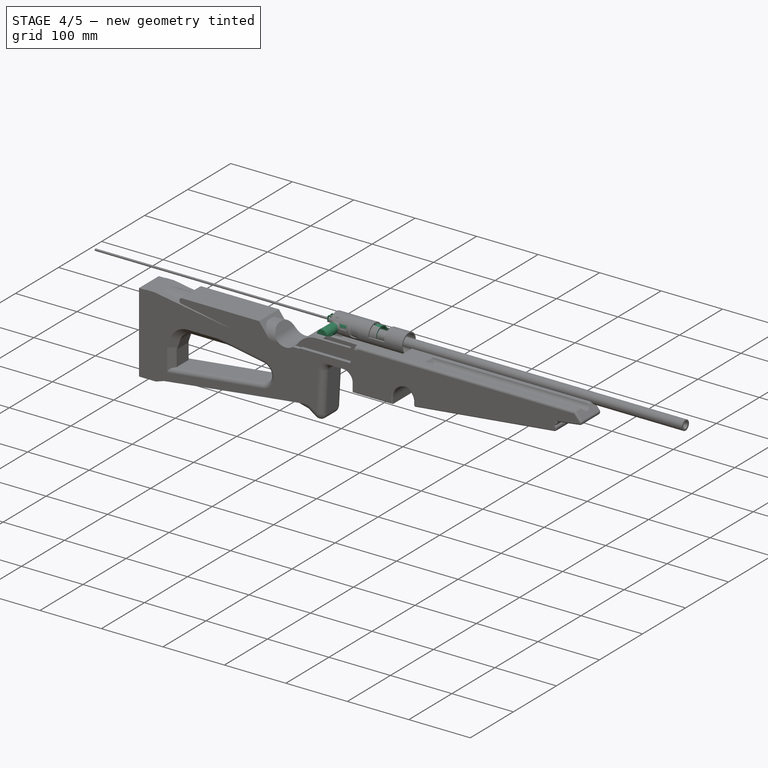
[diagram: stage 4 of 5 — iso view after this stage's code; geometry added in this stage tinted green]
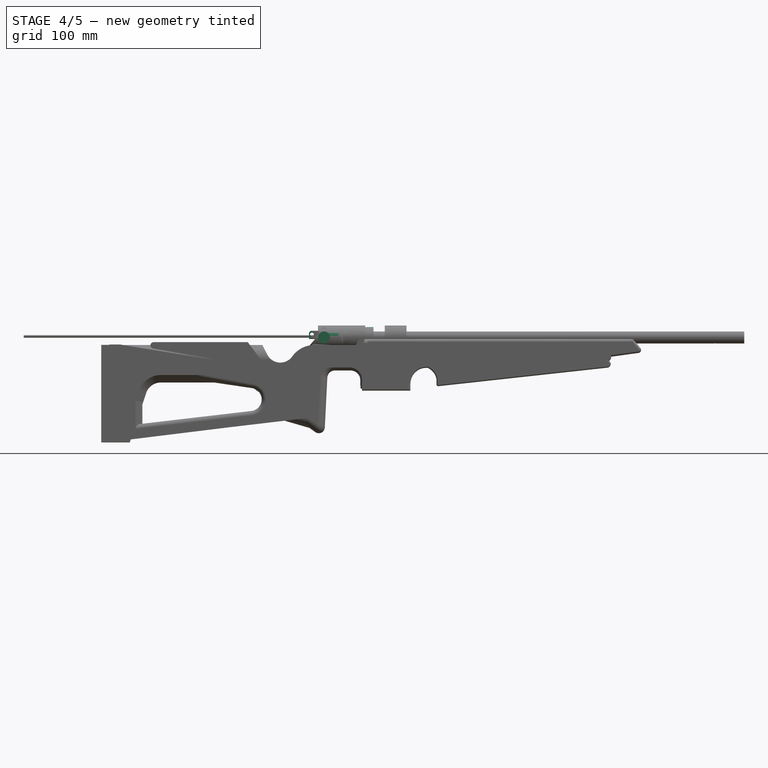
[diagram: stage 4 of 5 — front view after this stage's code; geometry added in this stage tinted green]
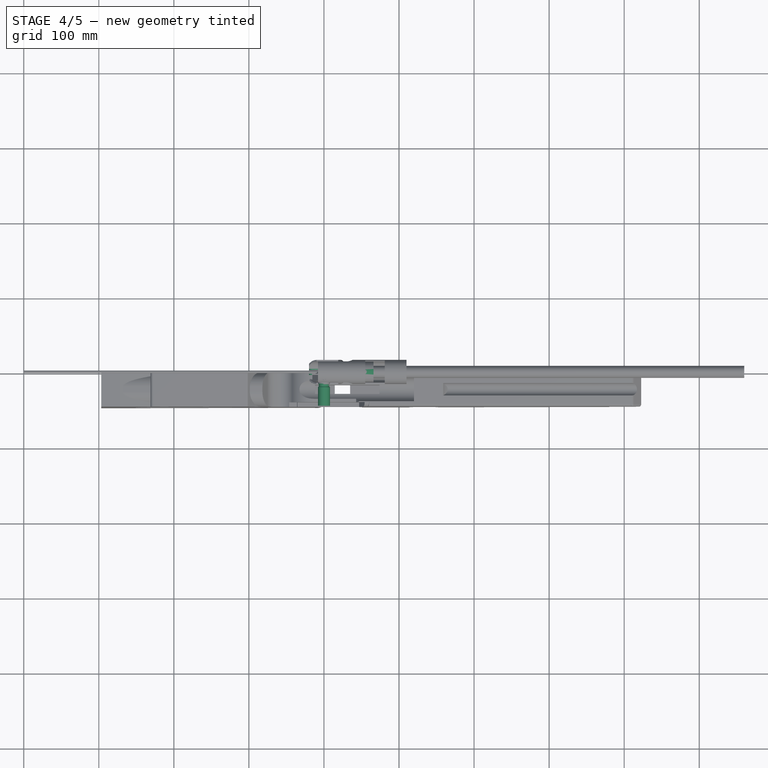
[diagram: stage 4 of 5 — top view after this stage's code; geometry added in this stage tinted green]
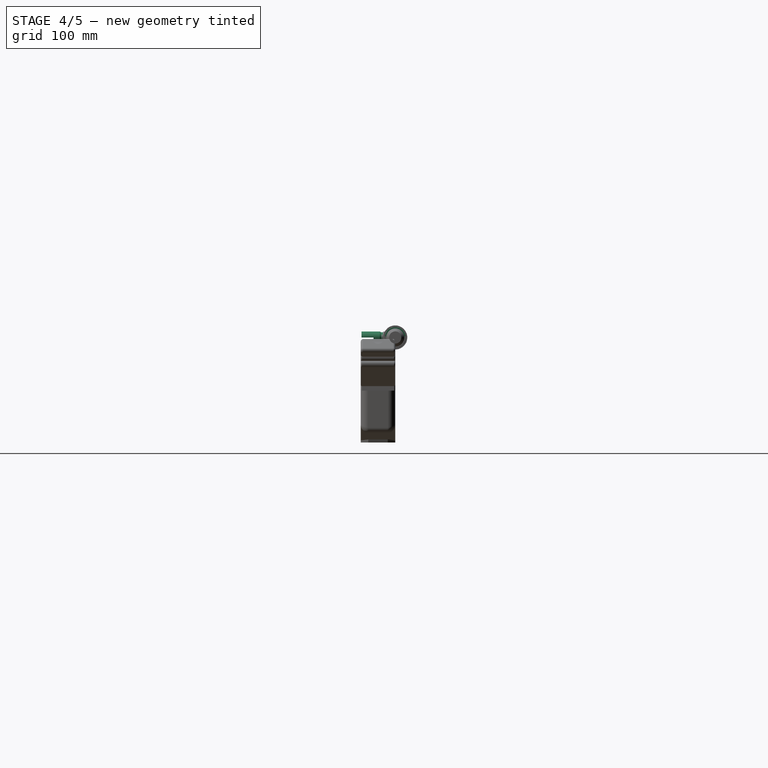
[diagram: stage 4 of 5 — right view after this stage's code; geometry added in this stage tinted green]
FEATURE [Sketcher::SketchObject] Sketch004
  ArcFitTolerance = 1e-06
  AttachmentSupport = -> [YZ_Plane003]
  FullyConstrained = true
  MakeInternals = false
  MapMode = 5
  Placement = pos=(0,0,0) rot=(0.57735,0.57735,0.57735;2.0944rad)
  sketch-geometry (2):
    g0: Circle CenterX=0 CenterY=0 CenterZ=0 NormalX=0 NormalY=0 NormalZ=1 AngleXU=0 Radius=13.8
    g1: Circle CenterX=0 CenterY=0 CenterZ=0 NormalX=0 NormalY=0 NormalZ=1 AngleXU=0 Radius=12
  constraints (4):
    c: Diameter(g0) = 27.6
    c: Coincident(g0,g-1)
    c: Diameter(g1) = 24
    c: Coincident(g1,g0)
FEATURE [PartDesign::Pad] Pad003
  Direction = (1,0,0)
  Length = 66
  Length2 = 6
  Placement = pos=(0,0,0) rot=(1,1,1;2.0944rad)
  Profile = -> Sketch004
  ReferenceAxis = -> Sketch004 [N_Axis]
  Refine = true
  Suppressed = false
  Type = 4
FEATURE [Sketcher::SketchObject] Sketch005
  ArcFitTolerance = 1e-06
  AttachmentSupport = -> [XZ_Plane004]
  FullyConstrained = true
  MakeInternals = false
  MapMode = 5
  Placement = pos=(0,0,0) rot=(1,0,0;1.5708rad)
  sketch-geometry (1):
    g0: Circle CenterX=12 CenterY=0 CenterZ=0 NormalX=0 NormalY=0 NormalZ=1 AngleXU=0 Radius=8
  constraints (3):
    c: Diameter(g0) = 16
    c: PointOnObject(g0,g-1)
    c: DistanceX(g0) = 12
FEATURE [PartDesign::Pad] Pad004
  Direction = (0,-1,2e-16)
  Length = 20
  Length2 = 20
  Placement = pos=(0,0,0) rot=(1,0,0;1.5708rad)
  Profile = -> Sketch005
  ReferenceAxis = -> Sketch005 [N_Axis]
  Refine = true
  Suppressed = false
  Type = 4
FEATURE [PartDesign::Body] Body004  label="Corpo003"
  AllowCompound = false
  Group = -> [Sketch005,Pad004]
  Origin = -> Origin004
  Tip = -> Pad004
FEATURE [PartDesign::Boolean] Boolean002  label="foro"
  BaseFeature = -> Pad003
  Group = -> [Body004]
  Refine = true
  Suppressed = false
  Type = 1
  UsePlacement = true
FEATURE [Sketcher::SketchObject] Sketch006
  ArcFitTolerance = 1e-06
  AttachmentSupport = -> [XZ_Plane005]
  FullyConstrained = true
  MakeInternals = false
  MapMode = 5
  Placement = pos=(0,0,0) rot=(1,0,0;1.5708rad)
  sketch-geometry (1):
    g0: Circle CenterX=0 CenterY=0 CenterZ=0 NormalX=0 NormalY=0 NormalZ=1 AngleXU=0 Radius=8
  constraints (3):
    c: Diameter(g0) = 16
    c: PointOnObject(g0,g-1)
    c: DistanceX(g0) = 0
FEATURE [PartDesign::Pad] Pad005
  Direction = (0,-1,2e-16)
  Length = 45
  Length2 = 10
  Placement = pos=(0,0,0) rot=(1,0,0;1.5708rad)
  Profile = -> Sketch006
  ReferenceAxis = -> Sketch006 [N_Axis]
  Refine = true
  Suppressed = false
  Type = 0
FEATURE [Sketcher::SketchObject] Sketch007
  ArcFitTolerance = 1e-06
  AttachmentSupport = -> [Pad005]
  FullyConstrained = false
  MakeInternals = false
  MapMode = 5
  Placement = pos=(0,-45,0) rot=(1,0,0;1.5708rad)
  sketch-geometry (6):
    g0: LineSegment StartX=-12.2296 StartY=1.5e-15 StartZ=0 EndX=-12.2296 EndY=-12.4951 EndZ=0
    g1: LineSegment StartX=-12.2296 StartY=-12.4951 StartZ=0 EndX=12.2296 EndY=-12.4951 EndZ=0
    g2: LineSegment StartX=12.2296 StartY=-12.4951 StartZ=0 EndX=12.2296 EndY=0 EndZ=0
    g3: LineSegment StartX=8 StartY=1e-15 StartZ=0 EndX=-8 EndY=1e-15 EndZ=0
    g4: ArcOfCircle CenterX=0 CenterY=0 CenterZ=0 NormalX=0 NormalY=0 NormalZ=1 AngleXU=0 Radius=8 StartAngle=0 EndAngle=3.14159
    g5: ArcOfCircle CenterX=0 CenterY=0 CenterZ=0 NormalX=0 NormalY=0 NormalZ=1 AngleXU=0 Radius=12.2296 StartAngle=0 EndAngle=3.14159
  constraints (13):
    c: Coincident(g0,g1)
    c: Coincident(g1,g2)
    c: Vertical(g0)
    c: Vertical(g2)
    c: Horizontal(g1)
    c: Horizontal(g3)
    c: Diameter(g4) = 16
    c: Coincident(g4,g-1)
    c: Coincident(g5,g4)
    c: Tangent(g5,g0) = -1.5708
    c: Coincident(g5,g2)
    c: Coincident(g3,g4)
    c: Coincident(g3,g4)
FEATURE [PartDesign::Pocket] Pocket
  BaseFeature = -> Pad005
  Direction = (0,1,-2e-16)
  Length = 16
  Length2 = 5
  Placement = pos=(0,0,0) rot=(1,0,0;1.5708rad)
  Profile = -> Sketch007
  ReferenceAxis = -> Sketch007 [N_Axis]
  Refine = true
  Suppressed = false
  Type = 0
FEATURE [Sketcher::SketchObject] Sketch015
  ArcFitTolerance = 1e-06
  FullyConstrained = false
  MakeInternals = false
  MapMode = 5
  Placement = pos=(64,-1.42e-14,7.1e-15) rot=(0.57735,0.57735,0.57735;2.0944rad)
  sketch-geometry (4):
    g0: LineSegment StartX=-4 StartY=-11.3754 StartZ=0 EndX=-4 EndY=-17.3754 EndZ=0
    g1: LineSegment StartX=-4 StartY=-17.3754 StartZ=0 EndX=4 EndY=-17.3754 EndZ=0
    g2: LineSegment StartX=4 StartY=-17.3754 StartZ=0 EndX=4 EndY=-11.3754 EndZ=0
    g3: LineSegment StartX=4 StartY=-11.3754 StartZ=0 EndX=-4 EndY=-11.3754 EndZ=0
  constraints (11):
    c: Coincident(g0,g1)
    c: Coincident(g1,g2)
    c: Coincident(g2,g3)
    c: Coincident(g3,g0)
    c: Vertical(g0)
    c: Vertical(g2)
    c: Horizontal(g1)
    c: Horizontal(g3)
    c: Distance(g0,g2) = 8
    c: Distance(g1,g3) = 6
    c: DistanceX(g0) = -4
FEATURE [PartDesign::Pocket] Pocket005  label="foro_sotto001"
  BaseFeature = -> Boolean002
  Direction = (-1,-1e-16,1e-16)
  Length = 42
  Length2 = -12
  Profile = -> Sketch015
  ReferenceAxis = -> Sketch015 [N_Axis]
  Refine = true
  Suppressed = false
  Type = 0
FEATURE [PartDesign::Body] Body024  label="supp_lamiera"
  AllowCompound = false
  Group = -> [Sketch035,Pad012,Sketch036,Pocket007,Sketch037,Pocket008,Sketch039,Pad013,Sketch040,Pad014,Sketch041,Pocket010,Sketch050,Hole022,Sketch051,Sketch052,Hole024,Sketch053,Hole025,Sketch054,Hole026,Sketch055,Hole027,Fillet003,Sketch070,Hole033,Pocket017,Sketch073,Pad019,Sketch074,Pocket018,Fillet006]
  Origin = -> Origin027
  Tip = -> Fillet006
FEATURE [Sketcher::SketchObject] Sketch056
  ArcFitTolerance = 1e-06
  AttachmentSupport = -> [XY_Plane028]
  FullyConstrained = true
  MakeInternals = false
  MapMode = 5
  sketch-geometry (4):
    g0: LineSegment StartX=-20 StartY=4 StartZ=0 EndX=-20 EndY=-4 EndZ=0
    g1: LineSegment StartX=-20 StartY=-4 StartZ=0 EndX=22 EndY=-4 EndZ=0
    g2: LineSegment StartX=22 StartY=-4 StartZ=0 EndX=22 EndY=4 EndZ=0
    g3: LineSegment StartX=22 StartY=4 StartZ=0 EndX=-20 EndY=4 EndZ=0
  constraints (12):
    c: Coincident(g0,g1)
    c: Coincident(g1,g2)
    c: Coincident(g2,g3)
    c: Coincident(g3,g0)
    c: Vertical(g0)
    c: Vertical(g2)
    c: Horizontal(g1)
    c: Horizontal(g3)
    c: DistanceX(g3,g3) = 42
    c: DistanceY(g0,g0) = 8
    c: DistanceY(g0) = 4
    c: DistanceX(g0) = -20
FEATURE [PartDesign::Pad] Pad015
  Direction = (0,0,1)
  Length = 9
  Length2 = 2
  Profile = -> Sketch056
  ReferenceAxis = -> Sketch056 [N_Axis]
  Refine = true
  Suppressed = false
  Type = 4
FEATURE [Sketcher::SketchObject] Sketch057
  ArcFitTolerance = 1e-06
  AttachmentSupport = -> [Pad015]
  FullyConstrained = true
  MakeInternals = false
  MapMode = 5
  Placement = pos=(-20,0,0) rot=(0.57735,-0.57735,-0.57735;2.0944rad)
  sketch-geometry (4):
    g0: LineSegment StartX=-2.5 StartY=9.5 StartZ=0 EndX=-2.5 EndY=-0.5 EndZ=0
    g1: LineSegment StartX=-2.5 StartY=-0.5 StartZ=0 EndX=2.5 EndY=-0.5 EndZ=0
    g2: LineSegment StartX=2.5 StartY=-0.5 StartZ=0 EndX=2.5 EndY=9.5 EndZ=0
    g3: LineSegment StartX=2.5 StartY=9.5 StartZ=0 EndX=-2.5 EndY=9.5 EndZ=0
  constraints (12):
    c: Coincident(g0,g1)
    c: Coincident(g1,g2)
    c: Coincident(g2,g3)
    c: Coincident(g3,g0)
    c: Vertical(g0)
    c: Vertical(g2)
    c: Horizontal(g1)
    c: Horizontal(g3)
    c: DistanceX(g3,g3) = 5
    c: DistanceY(g2,g2) = 10
    c: DistanceX(g1) = 2.5
    c: DistanceY(g1) = -0.5
FEATURE [PartDesign::Pocket] Pocket011
  BaseFeature = -> Pad015
  Direction = (1,0,0)
  Length = 5
  Length2 = 5
  Profile = -> Sketch057
  ReferenceAxis = -> Sketch057 [N_Axis]
  Refine = true
  Suppressed = false
  Type = 1
FEATURE [Sketcher::SketchObject] Sketch059
  ArcFitTolerance = 1e-06
  AttachmentSupport = -> [Pocket011]
  FullyConstrained = false
  MakeInternals = false
  MapMode = 5
  Placement = pos=(0,0,-2) rot=(1,0,0;3.14159rad)
  sketch-geometry (4):
    g0: ArcOfCircle CenterX=14 CenterY=0 CenterZ=0 NormalX=0 NormalY=0 NormalZ=1 AngleXU=0 Radius=2.5 StartAngle=4.71239 EndAngle=7.85398
    g1: ArcOfCircle CenterX=-6 CenterY=3.41049e-11 CenterZ=0 NormalX=0 NormalY=0 NormalZ=1 AngleXU=0 Radius=2.5 StartAngle=1.5708 EndAngle=4.71239
    g2: LineSegment StartX=-6.00001 StartY=2.5 StartZ=0 EndX=14 EndY=2.5 EndZ=0
    g3: LineSegment StartX=14 StartY=-2.5 StartZ=0 EndX=-6.00001 EndY=-2.5 EndZ=0
  constraints (11):
    c: Diameter(g0) = 5
    c: PointOnObject(g0,g-1)
    c: DistanceX(g0) = 14
    c: Diameter(g1) = 5
    c: Coincident(g2,g1)
    c: Tangent(g3,g0) = 1.5708
    c: Coincident(g3,g1)
    c: Horizontal(g2)
    c: Horizontal(g3)
    c: DistanceX(g1) = -6
    c: Coincident(g2,g0)
FEATURE [PartDesign::Pocket] Pocket012  label="sotto"
  BaseFeature = -> Pocket011
  Direction = (0,0,1)
  Length = 2
  Length2 = 5
  Profile = -> Sketch059
  ReferenceAxis = -> Sketch059 [N_Axis]
  Refine = true
  Suppressed = false
  Type = 0
FEATURE [Sketcher::SketchObject] Sketch060
  ArcFitTolerance = 1e-06
  AttachmentSupport = -> [Pocket012]
  FullyConstrained = true
  MakeInternals = false
  MapMode = 5
  Placement = pos=(0,4,0) rot=(0,0.707107,0.707107;3.14159rad)
  sketch-geometry (1):
    g0: Circle CenterX=16 CenterY=4 CenterZ=0 NormalX=0 NormalY=0 NormalZ=1 AngleXU=0 Radius=2
  constraints (3):
    c: Diameter(g0) = 4
    c: DistanceY(g0) = 4
    c: DistanceX(g0) = 16
FEATURE [PartDesign::Hole] Hole028  label="perno"
  BaseFeature = -> Pocket012
  CustomThreadClearance = 0
  Depth = 85.3435
  DepthType = 1
  Diameter = 5
  DrillForDepth = false
  DrillPoint = 1
  DrillPointAngle = 118
  HoleCutCountersinkAngle = 90
  HoleCutCustomValues = false
  HoleCutDepth = 0
  HoleCutDiameter = 6.1
  HoleCutType = 0
  ModelThread = false
  Profile = -> Sketch060
  Refine = true
  Suppressed = false
  Tapered = false
  TaperedAngle = 90
  ThreadClass = 0
  ThreadDepth = 85.3435
  ThreadDepthType = 0
  ThreadDirection = 0
  ThreadFit = 0
  ThreadSize = 0
  ThreadType = 0
  Threaded = false
  UseCustomThreadClearance = false
FEATURE [Sketcher::SketchObject] Sketch061
  ArcFitTolerance = 1e-06
  AttachmentSupport = -> [Hole028]
  FullyConstrained = true
  MakeInternals = false
  MapMode = 5
  Placement = pos=(0,-4,0) rot=(1,0,0;1.5708rad)
  sketch-geometry (1):
    g0: Circle CenterX=3 CenterY=4 CenterZ=0 NormalX=0 NormalY=0 NormalZ=1 AngleXU=0 Radius=2.5
  constraints (3):
    c: Diameter(g0) = 5
    c: DistanceY(g0) = 4
    c: DistanceX(g0) = 3
FEATURE [PartDesign::Hole] Hole029
  BaseFeature = -> Hole028
  CustomThreadClearance = 0
  Depth = 85.3435
  DepthType = 1
  Diameter = 5
  DrillForDepth = false
  DrillPoint = 1
  DrillPointAngle = 118
  HoleCutCountersinkAngle = 90
  HoleCutCustomValues = false
  HoleCutDepth = 0
  HoleCutDiameter = 6.1
  HoleCutType = 0
  ModelThread = false
  Profile = -> Sketch061
  Refine = true
  Suppressed = false
  Tapered = false
  TaperedAngle = 90
  ThreadClass = 0
  ThreadDepth = 85.3435
  ThreadDepthType = 0
  ThreadDirection = 0
  ThreadFit = 0
  ThreadSize = 0
  ThreadType = 0
  Threaded = false
  UseCustomThreadClearance = false
FEATURE [Sketcher::SketchObject] Sketch062
  ArcFitTolerance = 1e-06
  AttachmentSupport = -> [Hole029]
  FullyConstrained = true
  MakeInternals = false
  MapMode = 5
  Placement = pos=(0,-4,0) rot=(1,0,0;1.5708rad)
  sketch-geometry (1):
    g0: Circle CenterX=14 CenterY=6.2 CenterZ=0 NormalX=0 NormalY=0 NormalZ=1 AngleXU=0 Radius=1.5
  constraints (3):
    c: Diameter(g0) = 3
    c: DistanceY(g0) = 6.2
    c: DistanceX(g0) = 14
FEATURE [PartDesign::Hole] Hole030
  BaseFeature = -> Hole029
  CustomThreadClearance = 0
  Depth = 85.3435
  DepthType = 1
  Diameter = 3
  DrillForDepth = false
  DrillPoint = 1
  DrillPointAngle = 118
  HoleCutCountersinkAngle = 90
  HoleCutCustomValues = false
  HoleCutDepth = 0
  HoleCutDiameter = 6.1
  HoleCutType = 0
  ModelThread = false
  Profile = -> Sketch062
  Refine = true
  Suppressed = false
  Tapered = false
  TaperedAngle = 90
  ThreadClass = 0
  ThreadDepth = 85.3435
  ThreadDepthType = 0
  ThreadDirection = 0
  ThreadFit = 0
  ThreadSize = 0
  ThreadType = 0
  Threaded = false
  UseCustomThreadClearance = false
FEATURE [Sketcher::SketchObject] Sketch066
  ArcFitTolerance = 1e-06
  FullyConstrained = false
  MakeInternals = false
  MapMode = 5
  Placement = pos=(0,-4,0) rot=(1,0,0;1.5708rad)
  sketch-geometry (4):
    g0: LineSegment StartX=16 StartY=9 StartZ=0 EndX=19 EndY=1 EndZ=0
    g1: LineSegment StartX=16 StartY=9 StartZ=0 EndX=23.1345 EndY=11.3008 EndZ=0
    g2: LineSegment StartX=19 StartY=1 StartZ=0 EndX=22.904 EndY=1 EndZ=0
    g3: LineSegment StartX=22.904 StartY=1 StartZ=0 EndX=23.1345 EndY=11.3008 EndZ=0
  constraints (9):
    c: DistanceY(g0) = 1
    c: DistanceY(g0) = 9
    c: DistanceX(g0) = 16
    c: DistanceX(g0) = 19
    c: Coincident(g1,g0)
    c: Coincident(g2,g0)
    c: Horizontal(g2)
    c: Coincident(g3,g2)
    c: Coincident(g3,g1)
FEATURE [PartDesign::Pocket] Pocket014
  BaseFeature = -> Hole030
  Direction = (0,1,0)
  Length = 5
  Length2 = 5
  Profile = -> Sketch066
  ReferenceAxis = -> Sketch066 [N_Axis]
  Refine = true
  Suppressed = false
  Type = 1
FEATURE [PartDesign::Fillet] Fillet004
  Base = -> Pocket014 [Edge10,Edge9]
  BaseFeature = -> Pocket014
  Radius = 1
  Refine = true
  SupportTransform = false
  Suppressed = false
  UseAllEdges = false
FEATURE [PartDesign::Fillet] Fillet005
  Base = -> Fillet004 [Edge6,Edge7]
  BaseFeature = -> Fillet004
  Radius = 4
  Refine = true
  SupportTransform = false
  Suppressed = false
  UseAllEdges = false
FEATURE [PartDesign::Body] Body009  label="barra_lamiera"
  AllowCompound = false
  Group = -> [Sketch056,Pad015,Sketch057,Pocket011,Sketch059,Pocket012,Sketch060,Hole028,Sketch061,Hole029,Sketch062,Hole030,Sketch066,Pocket014,Fillet004,Fillet005]
  Origin = -> Origin028
  Tip = -> Fillet005
FEATURE [Sketcher::SketchObject] Sketch064
  ArcFitTolerance = 1e-06
  AttachmentSupport = -> [XZ_Plane029]
  FullyConstrained = true
  MakeInternals = false
  MapMode = 5
  Placement = pos=(0,0,0) rot=(1,0,0;1.5708rad)
  sketch-geometry (4):
    g0: LineSegment StartX=9.5 StartY=9 StartZ=0 EndX=9.5 EndY=-0.5 EndZ=0
    g1: LineSegment StartX=9.5 StartY=-0.5 StartZ=0 EndX=21 EndY=-0.5 EndZ=0
    g2: LineSegment StartX=21 StartY=9 StartZ=0 EndX=9.5 EndY=9 EndZ=0
    g3: LineSegment StartX=21 StartY=9 StartZ=0 EndX=21 EndY=-0.5 EndZ=0
  constraints (12):
    c: Coincident(g0,g1)
    c: Coincident(g2,g0)
    c: Vertical(g0)
    c: Horizontal(g1)
    c: Horizontal(g2)
    c: DistanceX(g2,g2) = 11.5
    c: DistanceY(g1,g2) = 9.5
    c: DistanceY(g1) = -0.5
    c: Coincident(g3,g2)
    c: Coincident(g3,g1)
    c: Vertical(g3)
    c: DistanceX(g1) = 21
FEATURE [PartDesign::Pad] Pad016
  Direction = (0,-1,2e-16)
  Length = 4.9
  Length2 = 10
  Placement = pos=(0,0,0) rot=(1,0,0;1.5708rad)
  Profile = -> Sketch064
  ReferenceAxis = -> Sketch064 [N_Axis]
  Refine = true
  Suppressed = false
  Type = 0
FEATURE [Sketcher::SketchObject] Sketch065
  ArcFitTolerance = 1e-06
  AttachmentSupport = -> [Pad016]
  FullyConstrained = true
  MakeInternals = false
  MapMode = 5
  Placement = pos=(0,-2e-16,-0.5) rot=(1,0,0;3.14159rad)
  sketch-geometry (1):
    g0: Circle CenterX=12.2 CenterY=2.4 CenterZ=0 NormalX=0 NormalY=0 NormalZ=1 AngleXU=0 Radius=2.4
  constraints (3):
    c: Diameter(g0) = 4.8
    c: Tangent(g0,g-1)
    c: DistanceX(g0) = 12.2
FEATURE [PartDesign::Pocket] Pocket013
  BaseFeature = -> Pad016
  Direction = (0,0,1)
  Length = 3
  Length2 = 5
  Placement = pos=(0,0,0) rot=(1,0,0;1.5708rad)
  Profile = -> Sketch065
  ReferenceAxis = -> Sketch065 [N_Axis]
  Refine = true
  Suppressed = false
  Type = 0
FEATURE [Sketcher::SketchObject] Sketch067
  ArcFitTolerance = 1e-06
  AttachmentSupport = -> [Pocket013]
  FullyConstrained = false
  MakeInternals = false
  MapMode = 5
  Placement = pos=(0,-4.9,0) rot=(1,0,0;1.5708rad)
  sketch-geometry (4):
    g0: LineSegment StartX=14 StartY=9 StartZ=0 EndX=17 EndY=1 EndZ=0
    g1: LineSegment StartX=17 StartY=1 StartZ=0 EndX=23.3209 EndY=1 EndZ=0
    g2: LineSegment StartX=23.3209 StartY=1 StartZ=0 EndX=27.9839 EndY=13.2506 EndZ=0
    g3: LineSegment StartX=27.9839 StartY=13.2506 StartZ=0 EndX=14 EndY=9 EndZ=0
  constraints (9):
    c: Coincident(g0,g1)
    c: Coincident(g1,g2)
    c: Coincident(g2,g3)
    c: Coincident(g3,g0)
    c: DistanceX(g0) = 14
    c: DistanceY(g0) = 9
    c: DistanceX(g0) = 17
    c: DistanceY(g0) = 1
    c: DistanceY(g1) = 1
FEATURE [PartDesign::Pocket] Pocket015
  BaseFeature = -> Pocket013
  Direction = (0,1,-2e-16)
  Length = 5
  Length2 = 5
  Placement = pos=(0,0,0) rot=(1,0,0;1.5708rad)
  Profile = -> Sketch067
  ReferenceAxis = -> Sketch067 [N_Axis]
  Refine = true
  Suppressed = false
  Type = 1
FEATURE [Sketcher::SketchObject] Sketch068
  ArcFitTolerance = 1e-06
  AttachmentSupport = -> [Pocket015]
  FullyConstrained = true
  MakeInternals = false
  MapMode = 5
  Placement = pos=(0,-4.9,0) rot=(1,0,0;1.5708rad)
  sketch-geometry (1):
    g0: Circle CenterX=12 CenterY=6.2 CenterZ=0 NormalX=0 NormalY=0 NormalZ=1 AngleXU=0 Radius=1.5
  constraints (3):
    c: Diameter(g0) = 3
    c: DistanceY(g0) = 6.2
    c: DistanceX(g0) = 12
FEATURE [PartDesign::Hole] Hole032
  BaseFeature = -> Pocket015
  CustomThreadClearance = 0
  Depth = 32.5245
  DepthType = 1
  Diameter = 3
  DrillForDepth = false
  DrillPoint = 1
  DrillPointAngle = 118
  HoleCutCountersinkAngle = 90
  HoleCutCustomValues = false
  HoleCutDepth = 0
  HoleCutDiameter = 6.1
  HoleCutType = 0
  ModelThread = false
  Placement = pos=(0,0,0) rot=(1,0,0;1.5708rad)
  Profile = -> Sketch068
  Refine = true
  Suppressed = false
  Tapered = false
  TaperedAngle = 90
  ThreadClass = 0
  ThreadDepth = 32.5245
  ThreadDepthType = 0
  ThreadDirection = 0
  ThreadFit = 0
  ThreadSize = 0
  ThreadType = 0
  Threaded = false
  UseCustomThreadClearance = false
FEATURE [PartDesign::Body] Body010  label="barra_lamiera2"
  AllowCompound = false
  Group = -> [Sketch064,Pad016,Sketch065,Pocket013,Sketch067,Pocket015,Sketch068,Hole032]
  Origin = -> Origin029
  Placement = pos=(2,2.5,0) rot=(0,0,1;0rad)
  Tip = -> Hole032
FEATURE [Sketcher::SketchObject] Sketch069
  ArcFitTolerance = 1e-06
  AttachmentSupport = -> [XZ_Plane011]
  FullyConstrained = true
  MakeInternals = false
  MapMode = 5
  Placement = pos=(0,0,0) rot=(1,0,0;1.5708rad)
  sketch-geometry (1):
    g0: Circle CenterX=12 CenterY=6.2 CenterZ=0 NormalX=0 NormalY=0 NormalZ=1 AngleXU=0 Radius=1.5
  constraints (3):
    c: Diameter(g0) = 3
    c: DistanceY(g0) = 6.2
    c: DistanceX(g0) = 12
FEATURE [PartDesign::Pad] Pad017
  Direction = (0,-1,2e-16)
  Length = 8
  Length2 = 10
  Placement = pos=(0,0,0) rot=(1,0,0;1.5708rad)
  Profile = -> Sketch069
  ReferenceAxis = -> Sketch069 [N_Axis]
  Refine = true
  Suppressed = false
  Type = 0
FEATURE [PartDesign::Pad] Pad018
  BaseFeature = -> Pad017
  Direction = (0,-1,2e-16)
  Length = 8
  Length2 = 10
  Placement = pos=(0,0,0) rot=(1,0,0;1.5708rad)
  Profile = -> Sketch069
  ReferenceAxis = -> Sketch069 [N_Axis]
  Refine = true
  Suppressed = false
  Type = 0
FEATURE [PartDesign::Body] Body011  label="perno_barra_lamiera"
  AllowCompound = false
  Group = -> [Sketch069,Pad017,Pad018]
  Origin = -> Origin011
  Placement = pos=(2,4,0) rot=(0,0,1;0rad)
  Tip = -> Pad018
FEATURE [App::Part] Part002  label="grilletto001"
  Group = -> [Body019,Body020,Body021,Body022,Body023,Body024,Body009,Body010,Body011]
  Origin = -> Origin013
  Placement = pos=(17,0,-28) rot=(0,0,1;0rad)
FEATURE [Sketcher::SketchObject] Sketch088
  ArcFitTolerance = 1e-06
  AttachmentSupport = -> [Pocket]
  FullyConstrained = false
  MakeInternals = false
  MapMode = 5
  Placement = pos=(0,0,0) rot=(-1,0,0;1.5708rad)
  sketch-geometry (4):
    g0: LineSegment StartX=-11.3306 StartY=0 StartZ=0 EndX=11.1618 EndY=0 EndZ=0
    g1: LineSegment StartX=11.1618 StartY=0 StartZ=0 EndX=11.1618 EndY=11.9048 EndZ=0
    g2: LineSegment StartX=11.1618 StartY=11.9048 StartZ=0 EndX=-11.3306 EndY=11.9048 EndZ=0
    g3: LineSegment StartX=-11.3306 StartY=11.9048 StartZ=0 EndX=-11.3306 EndY=0 EndZ=0
  constraints (9):
    c: Coincident(g0,g1)
    c: Coincident(g1,g2)
    c: Coincident(g2,g3)
    c: Coincident(g3,g0)
    c: Horizontal(g0)
    c: Horizontal(g2)
    c: Vertical(g1)
    c: Vertical(g3)
    c: PointOnObject(g0,g-1)
FEATURE [PartDesign::Pocket] Pocket024
  BaseFeature = -> Pocket
  Direction = (0,-1,-2e-16)
  Length = 7
  Length2 = 5
  Placement = pos=(0,0,0) rot=(1,0,0;1.5708rad)
  Profile = -> Sketch088
  ReferenceAxis = -> Sketch088 [N_Axis]
  Refine = true
  Suppressed = false
  Type = 0
FEATURE [Sketcher::SketchObject] Sketch089
  ArcFitTolerance = 1e-06
  AttachmentSupport = -> [Pocket024]
  FullyConstrained = true
  MakeInternals = false
  MapMode = 5
  Placement = pos=(0,0,0) rot=(-1,0,0;1.5708rad)
  sketch-geometry (2):
    g0: Circle CenterX=0 CenterY=0 CenterZ=0 NormalX=0 NormalY=0 NormalZ=1 AngleXU=0 Radius=7
    g1: Circle CenterX=0 CenterY=0 CenterZ=0 NormalX=0 NormalY=0 NormalZ=1 AngleXU=0 Radius=10
  constraints (4):
    c: Diameter(g0) = 14
    c: Coincident(g0,g-1)
    c: Diameter(g1) = 20
    c: Coincident(g1,g0)
FEATURE [PartDesign::Pocket] Pocket025
  AlongSketchNormal = false
  BaseFeature = -> Pocket024
  Direction = (0,-1,-2e-16)
  Length = 19.5
  Length2 = -16.5
  Placement = pos=(0,0,0) rot=(1,0,0;1.5708rad)
  Profile = -> Sketch089
  ReferenceAxis = -> Sketch089 [N_Axis]
  Refine = true
  Suppressed = false
  Type = 4
FEATURE [PartDesign::Chamfer] Chamfer004
  Angle = 45
  Base = -> Pocket025 [Edge7,Edge12]
  BaseFeature = -> Pocket025
  ChamferType = 0
  FlipDirection = false
  Placement = pos=(0,0,0) rot=(1,0,0;1.5708rad)
  Refine = true
  Size = 0.9
  Size2 = 1
  SupportTransform = false
  Suppressed = false
  UseAllEdges = false
FEATURE [PartDesign::Chamfer] Chamfer005
  Angle = 45
  Base = -> Fillet008 [Edge6]
  BaseFeature = -> Fillet008
  ChamferType = 0
  FlipDirection = false
  Placement = pos=(0,0,0) rot=(1,1,1;2.0944rad)
  Refine = true
  Size = 3.9
  Size2 = 1
  SupportTransform = false
  Suppressed = false
  UseAllEdges = false
FEATURE [Sketcher::SketchObject] Sketch095
  ArcFitTolerance = 1e-06
  AttachmentSupport = -> [XY_Plane032]
  FullyConstrained = false
  MakeInternals = false
  MapMode = 5
  sketch-geometry (4):
    g0: ArcOfCircle CenterX=10 CenterY=-2.41127e-11 CenterZ=0 NormalX=0 NormalY=0 NormalZ=1 AngleXU=0 Radius=3 StartAngle=4.71238 EndAngle=7.85399
    g1: LineSegment StartX=-2 StartY=3 StartZ=0 EndX=9.99999 EndY=3 EndZ=0
    g2: LineSegment StartX=-2 StartY=-3 StartZ=0 EndX=9.99999 EndY=-3 EndZ=0
    g3: ArcOfCircle CenterX=-2 CenterY=0 CenterZ=0 NormalX=0 NormalY=0 NormalZ=1 AngleXU=0 Radius=3 StartAngle=1.5708 EndAngle=4.71239
  constraints (11):
    c: Diameter(g0) = 6
    c: Coincident(g0,g1)
    c: Coincident(g0,g2)
    c: Diameter(g3) = 6
    c: PointOnObject(g3,g-1)
    c: Tangent(g3,g2) = -1.5708
    c: Tangent(g3,g1) = 1.5708
    c: DistanceX(g3,g0) = 12
    c: Horizontal(g1)
    c: Horizontal(g2)
    c: DistanceX(g3) = -2
FEATURE [PartDesign::Pad] Pad036
  Direction = (0,0,1)
  Length = 10
  Length2 = 10
  Profile = -> Sketch095
  ReferenceAxis = -> Sketch095 [N_Axis]
  Refine = true
  Suppressed = false
  Type = 0
FEATURE [PartDesign::Body] Body027  label="Corpo005"
  AllowCompound = false
  Group = -> [Sketch095,Pad036]
  Origin = -> Origin032
  Placement = pos=(44,0,11) rot=(0,0,1;0rad)
  Tip = -> Pad036
FEATURE [PartDesign::Boolean] Boolean006
  BaseFeature = -> Pocket005
  Group = -> [Body027]
  Refine = true
  Suppressed = false
  Type = 1
  UsePlacement = true
FEATURE [PartDesign::Body] Body003  label="otturatore"
  AllowCompound = false
  Group = -> [Sketch004,Pad003,Boolean002,Sketch015,Pocket005,Boolean006]
  Origin = -> Origin003
  Tip = -> Boolean006
FEATURE [Sketcher::SketchObject] Sketch096
  ArcFitTolerance = 1e-06
  AttachmentSupport = -> [XY_Plane033]
  FullyConstrained = true
  MakeInternals = false
  MapMode = 5
  sketch-geometry (1):
    g0: Circle CenterX=0 CenterY=0 CenterZ=0 NormalX=0 NormalY=0 NormalZ=1 AngleXU=0 Radius=3
  constraints (2):
    c: Diameter(g0) = 6
    c: Coincident(g0,g-1)
FEATURE [PartDesign::Pad] Pad037
  Direction = (0,0,1)
  Length = 4
  Length2 = 10
  Profile = -> Sketch096
  ReferenceAxis = -> Sketch096 [N_Axis]
  Refine = true
  Suppressed = false
  Type = 0
FEATURE [PartDesign::Body] Body028  label="perno_percussore"
  AllowCompound = false
  Group = -> [Sketch096,Pad037]
  Origin = -> Origin033
  Placement = pos=(54,0,9) rot=(0,0,1;0rad)
  Tip = -> Pad037
FEATURE [Sketcher::SketchObject] Sketch099
  ArcFitTolerance = 1e-06
  AttachmentSupport = -> [YZ_Plane035]
  FullyConstrained = true
  MakeInternals = false
  MapMode = 5
  Placement = pos=(0,0,0) rot=(0.57735,0.57735,0.57735;2.0944rad)
  sketch-geometry (2):
    g0: Circle CenterX=0 CenterY=0 CenterZ=0 NormalX=0 NormalY=0 NormalZ=1 AngleXU=0 Radius=12
    g1: Circle CenterX=0 CenterY=0 CenterZ=0 NormalX=0 NormalY=0 NormalZ=1 AngleXU=0 Radius=6
  constraints (4):
    c: Diameter(g0) = 24
    c: Coincident(g0,g-1)
    c: Diameter(g1) = 12
    c: Coincident(g1,g0)
FEATURE [PartDesign::Pad] Pad039
  Direction = (1,0,0)
  Length = 1.5
  Length2 = 10
  Placement = pos=(0,0,0) rot=(1,1,1;2.0944rad)
  Profile = -> Sketch099
  ReferenceAxis = -> Sketch099 [N_Axis]
  Refine = true
  Suppressed = false
  Type = 0
FEATURE [PartDesign::Body] Body029  label="ranella_reggisfera"
  AllowCompound = false
  Group = -> [Sketch099,Pad039]
  Origin = -> Origin035
  Placement = pos=(21,0,0) rot=(0,0,1;0rad)
  Tip = -> Pad039
FEATURE [Sketcher::SketchObject] Sketch100
  ArcFitTolerance = 1e-06
  AttachmentSupport = -> [Chamfer005]
  FullyConstrained = true
  MakeInternals = false
  MapMode = 5
  Placement = pos=(0,0,0) rot=(0.57735,0.57735,-0.57735;4.18879rad)
  sketch-geometry (2):
    g0: Circle CenterX=0 CenterY=0 CenterZ=0 NormalX=0 NormalY=0 NormalZ=1 AngleXU=0 Radius=14
    g1: Circle CenterX=0 CenterY=0 CenterZ=0 NormalX=0 NormalY=0 NormalZ=1 AngleXU=0 Radius=20
  constraints (4):
    c: Diameter(g0) = 28
    c: Coincident(g0,g-1)
    c: Diameter(g1) = 40
    c: Coincident(g1,g0)
FEATURE [PartDesign::Pocket] Pocket029
  BaseFeature = -> Chamfer005
  Direction = (1,0,0)
  Length = 19
  Length2 = 5
  Placement = pos=(0,0,0) rot=(1,1,1;2.0944rad)
  Profile = -> Sketch100
  ReferenceAxis = -> Sketch100 [N_Axis]
  Refine = true
  Suppressed = false
  Type = 0
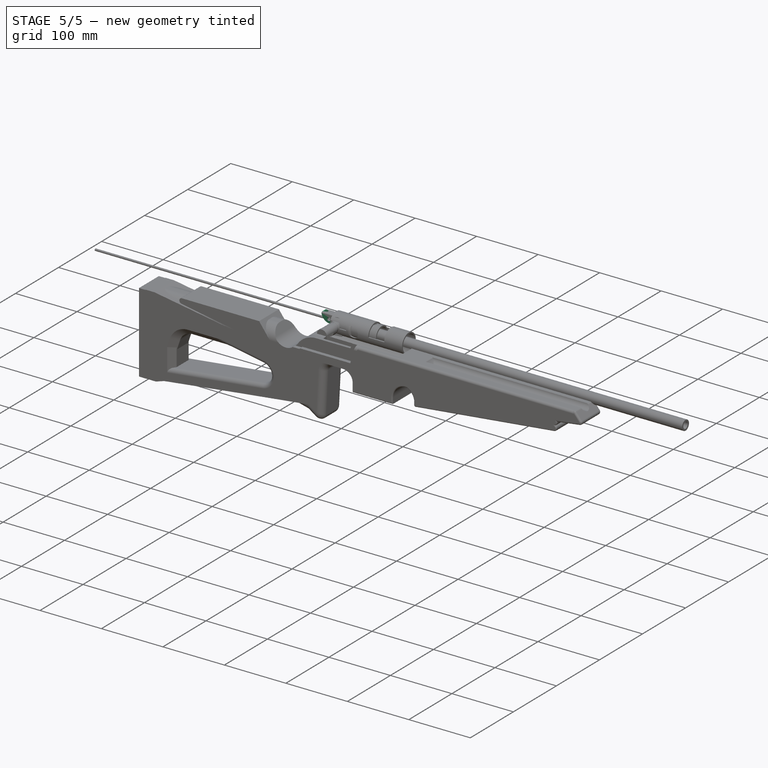
[diagram: stage 5 of 5 — iso view after this stage's code; geometry added in this stage tinted green]
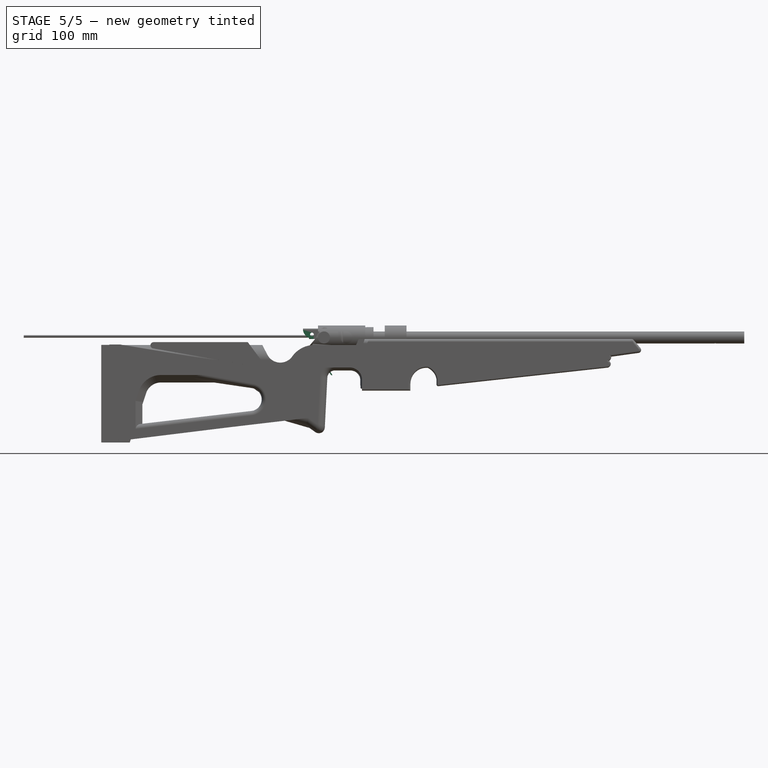
[diagram: stage 5 of 5 — front view after this stage's code; geometry added in this stage tinted green]
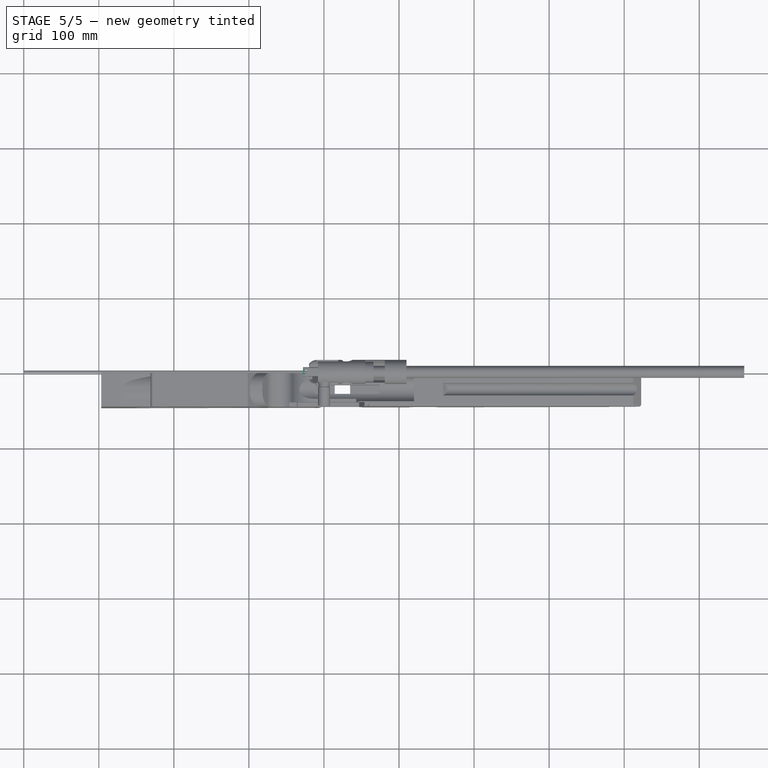
[diagram: stage 5 of 5 — top view after this stage's code; geometry added in this stage tinted green]
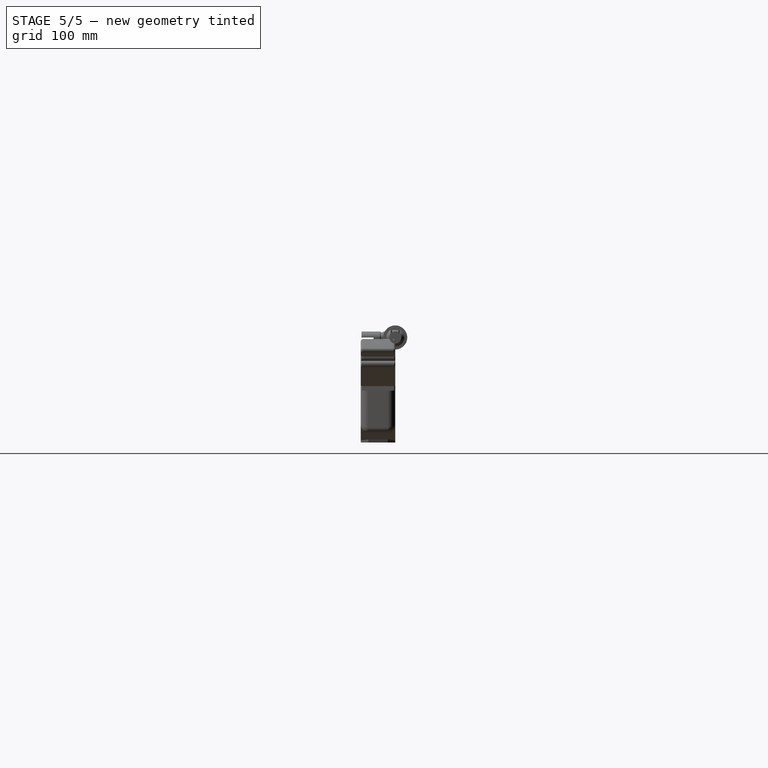
[diagram: stage 5 of 5 — right view after this stage's code; geometry added in this stage tinted green]
FEATURE [Sketcher::SketchObject] Sketch003
  ArcFitTolerance = 1e-06
  AttachmentSupport = -> [XZ_Plane022]
  FullyConstrained = false
  MakeInternals = false
  MapMode = 5
  Placement = pos=(0,0,0) rot=(1,0,0;1.5708rad)
  sketch-geometry (14):
    g0: Circle CenterX=0 CenterY=0 CenterZ=0 NormalX=0 NormalY=0 NormalZ=1 AngleXU=0 Radius=2.5
    g1: ArcOfCircle CenterX=46.4359 CenterY=-26.9509 CenterZ=0 NormalX=0 NormalY=0 NormalZ=1 AngleXU=0 Radius=42.0884 StartAngle=2.82881 EndAngle=3.72113
    g2: ArcOfCircle CenterX=38.4359 CenterY=-26.4509 CenterZ=0 NormalX=0 NormalY=0 NormalZ=1 AngleXU=0 Radius=37.335 StartAngle=3.03413 EndAngle=3.85559
    g3: LineSegment StartX=10.2199 StartY=-50.9 StartZ=0 EndX=11.2199 EndY=-50 EndZ=0
    g4: ArcOfCircle CenterX=-18.8709 CenterY=-23.0197 CenterZ=0 NormalX=0 NormalY=0 NormalZ=1 AngleXU=0 Radius=20.1952 StartAngle=0.0283916 EndAngle=1.00239
    g5: LineSegment StartX=8 StartY=0 StartZ=0 EndX=6.38958 EndY=-14 EndZ=0
    g6: LineSegment StartX=-3.5 StartY=6 StartZ=0 EndX=6.16562 EndY=6 EndZ=0
    g7: ArcOfCircle CenterX=-3.5 CenterY=4 CenterZ=0 NormalX=0 NormalY=0 NormalZ=1 AngleXU=0 Radius=2 StartAngle=1.5708 EndAngle=2.8288
    g8: LineSegment [constr] StartX=-23.1878 StartY=0 StartZ=0 EndX=0 EndY=7.2 EndZ=0
    g9: ArcOfCircle CenterX=1.06233 CenterY=1.18744 CenterZ=0 NormalX=0 NormalY=0 NormalZ=1 AngleXU=0 Radius=11.5666 StartAngle=3.11457 EndAngle=3.81212
    g10: LineSegment StartX=8 StartY=0 StartZ=0 EndX=6.16562 EndY=6 EndZ=0
    g11: LineSegment StartX=-10.5 StartY=1.5 StartZ=0 EndX=-5.40296 EndY=2.94604 EndZ=0
    g12: LineSegment StartX=-5.40296 StartY=2.94604 StartZ=0 EndX=-5.40296 EndY=4.61543 EndZ=0
    g13: LineSegment [constr] StartX=-3.3335 StartY=6.68066 StartZ=0 EndX=6.35953 EndY=6.68066 EndZ=0
  constraints (37):
    c: Coincident(g0,g-1)
    c: Diameter(g0) = 5
    c: DistanceX(g2,g1) = 8
    c: Coincident(g2,g3)
    c: Coincident(g1,g3)
    c: Coincident(g4,g2)
    c: DistanceY(g1) = -50
    c: DistanceY(g2) = -50.9
    c: DistanceY(g1) = -14
    c: Coincident(g5,g1)
    c: DistanceX(g6) = -3.5
    c: DistanceX(g4) = -8
    c: DistanceY(g4) = -6
    c: Coincident(g7,g6)
    c: DistanceX(g7) = -3.5
    c: DistanceY(g7) = 4
    c: Angle(g-1,g8) = 0.301069
    c: PointOnObject(g8,g-1)
    c: PointOnObject(g8,g-2)
    c: DistanceY(g8) = 7.2
    c: DistanceX(g9) = -10.5
    c: DistanceY(g9) = 1.5
    c: Coincident(g9,g4)
    c: DistanceY(g5) = 0
    c: DistanceY(g6) = 6
    c: DistanceX(g5) = 8
    c: Coincident(g10,g5)
    c: Angle(g-1,g10) = 1.8675
    c: DistanceY(g10) = 6
    c: Coincident(g9,g11)
    c: Coincident(g11,g12)
    c: Coincident(g12,g7)
    c: Horizontal(g13)
    c: Coincident(g6,g10)
    c: DistanceX(g2,g1) = 1
    c: DistanceY(g1,g2) = 0.5
    c: Vertical(g12)
FEATURE [PartDesign::Pad] Pad026
  Direction = (0,-1,2e-16)
  Length = 4.9
  Length2 = 10
  Placement = pos=(0,0,0) rot=(1,0,0;1.5708rad)
  Profile = -> Sketch003
  ReferenceAxis = -> Sketch003 [N_Axis]
  Refine = true
  Suppressed = false
  Type = 0
FEATURE [PartDesign::Fillet] Fillet002
  Base = -> Pad026 [Edge8]
  BaseFeature = -> Pad026
  Placement = pos=(0,0,0) rot=(1,0,0;1.5708rad)
  Radius = 1
  Refine = true
  SupportTransform = false
  Suppressed = false
  UseAllEdges = false
FEATURE [Sketcher::SketchObject] Sketch071
  ArcFitTolerance = 1e-06
  AttachmentSupport = -> [Fillet002]
  FullyConstrained = true
  MakeInternals = false
  MapMode = 5
  Placement = pos=(-1.176,1.9e-15,4.14523) rot=(-0.137779,0,0.990463;3.14159rad)
  sketch-geometry (1):
    g0: Circle CenterX=6.8 CenterY=2.5 CenterZ=0 NormalX=0 NormalY=0 NormalZ=1 AngleXU=0 Radius=1.5
  constraints (3):
    c: Diameter(g0) = 3
    c: DistanceX(g0) = 6.8
    c: DistanceY(g0) = 2.5
FEATURE [PartDesign::Hole] Hole034
  BaseFeature = -> Fillet002
  CustomThreadClearance = 0
  Depth = 20
  DepthType = 0
  Diameter = 3.4
  DrillForDepth = false
  DrillPoint = 1
  DrillPointAngle = 118
  HoleCutCountersinkAngle = 90
  HoleCutCustomValues = false
  HoleCutDepth = 0
  HoleCutDiameter = 6.1
  HoleCutType = 0
  ModelThread = false
  Placement = pos=(0,0,0) rot=(1,0,0;1.5708rad)
  Profile = -> Sketch071
  Refine = true
  Suppressed = false
  Tapered = false
  TaperedAngle = 90
  ThreadClass = 0
  ThreadDepth = 20
  ThreadDepthType = 0
  ThreadDirection = 0
  ThreadFit = 0
  ThreadSize = 9
  ThreadType = 1
  Threaded = false
  UseCustomThreadClearance = false
FEATURE [Sketcher::SketchObject] Sketch072
  ArcFitTolerance = 1e-06
  AttachmentSupport = -> [Hole034]
  FullyConstrained = true
  MakeInternals = false
  MapMode = 5
  Placement = pos=(0,2.6e-15,6) rot=(0,0,1;3.14159rad)
  sketch-geometry (1):
    g0: Circle CenterX=-4 CenterY=2.5 CenterZ=0 NormalX=0 NormalY=0 NormalZ=1 AngleXU=0 Radius=1.5
  constraints (3):
    c: Diameter(g0) = 3
    c: DistanceY(g0) = 2.5
    c: DistanceX(g0) = -4
FEATURE [PartDesign::Pocket] Pocket016
  BaseFeature = -> Hole034
  Direction = (0.3,0,-1)
  Length = 5
  Length2 = 5
  Placement = pos=(0,0,0) rot=(1,0,0;1.5708rad)
  Profile = -> Sketch072
  ReferenceAxis = -> Sketch072 [N_Axis]
  Refine = true
  Suppressed = false
  Type = 1
  UseCustomVector = true
FEATURE [PartDesign::Fillet] Fillet007
  Base = -> Pocket016 [Edge37]
  BaseFeature = -> Pocket016
  Placement = pos=(0,0,0) rot=(1,0,0;1.5708rad)
  Radius = 0.6
  Refine = true
  SupportTransform = false
  Suppressed = false
  UseAllEdges = false
FEATURE [PartDesign::Body] Body019  label="grilletto"
  AllowCompound = false
  Group = -> [Sketch003,Pad026,Fillet002,Sketch071,Hole034,Sketch072,Pocket016,Fillet007]
  Origin = -> Origin022
  Placement = pos=(3,2.5,4) rot=(0,1,0;0.261799rad)
  Tip = -> Fillet007
FEATURE [Sketcher::SketchObject] Sketch084
  ArcFitTolerance = 1e-06
  AttachmentSupport = -> [XZ_Plane023]
  FullyConstrained = false
  MakeInternals = false
  MapMode = 5
  Placement = pos=(0,0,0) rot=(1,0,0;1.5708rad)
  sketch-geometry (13):
    g0: LineSegment StartX=2e-16 StartY=4.8 StartZ=0 EndX=5.55295 EndY=4.8 EndZ=0
    g1: LineSegment [constr] StartX=-12.049 StartY=5 StartZ=0 EndX=-12.049 EndY=-5 EndZ=0
    g2: LineSegment [constr] StartX=-12.049 StartY=-5 StartZ=0 EndX=21.3796 EndY=-5 EndZ=0
    g3: LineSegment [constr] StartX=21.3796 StartY=-5 StartZ=0 EndX=21.3796 EndY=5 EndZ=0
    g4: LineSegment [constr] StartX=21.3796 StartY=5 StartZ=0 EndX=-12.049 EndY=5 EndZ=0
    g5: Circle CenterX=0 CenterY=1 CenterZ=0 NormalX=0 NormalY=0 NormalZ=1 AngleXU=0 Radius=2
    g6: ArcOfCircle CenterX=0 CenterY=0.876027 CenterZ=0 NormalX=0 NormalY=0 NormalZ=1 AngleXU=0 Radius=3.92397 StartAngle=1.5708 EndAngle=4.17757
    g7: ArcOfCircle CenterX=3.08586 CenterY=0.905655 CenterZ=0 NormalX=0 NormalY=0 NormalZ=1 AngleXU=0 Radius=13.1779 StartAngle=0.0595113 EndAngle=0.973244
    g8: LineSegment StartX=-2 StartY=-2.5 StartZ=0 EndX=-2 EndY=-4.8 EndZ=0
    g9: LineSegment StartX=-2 StartY=-4.8 StartZ=0 EndX=1 EndY=-6 EndZ=0
    g10: LineSegment StartX=10.5 StartY=11.8 StartZ=0 EndX=10.5 EndY=8.1514 EndZ=0
    g11: ArcOfCircle CenterX=5.55295 CenterY=10.1269 CenterZ=0 NormalX=0 NormalY=0 NormalZ=1 AngleXU=0 Radius=5.32691 StartAngle=4.71239 EndAngle=5.90326
    g12: LineSegment StartX=1 StartY=-6 StartZ=0 EndX=16.2404 EndY=1.68942 EndZ=0
  constraints (32):
    c: Horizontal(g0)
    c: Coincident(g1,g2)
    c: Coincident(g2,g3)
    c: Coincident(g3,g4)
    c: Coincident(g4,g1)
    c: Vertical(g1)
    c: Vertical(g3)
    c: Horizontal(g2)
    c: Horizontal(g4)
    c: DistanceY(g3,g3) = 10
    c: DistanceY(g1) = 5
    c: Diameter(g5) = 4
    c: DistanceY(g5) = 1
    c: DistanceX(g5) = 0
    c: DistanceY(g6) = -2.5
    c: Coincident(g6,g0)
    c: DistanceX(g6) = 0
    c: DistanceY(g0) = 4.8
    c: DistanceX(g0) = 0
    c: DistanceY(g7) = 11.8
    c: Vertical(g8)
    c: Coincident(g6,g8)
    c: DistanceX(g6) = -2
    c: Coincident(g9,g8)
    c: DistanceY(g8) = -4.8
    c: DistanceX(g7) = 10.5
    c: Coincident(g10,g7)
    c: Vertical(g10)
    c: Coincident(g11,g10)
    c: Tangent(g11,g0) = -1.5708
    c: Coincident(g12,g9)
    c: Coincident(g12,g7)
FEATURE [PartDesign::Pad] Pad027
  Direction = (0,-1,2e-16)
  Length = 8
  Length2 = 10
  Placement = pos=(0,0,0) rot=(1,0,0;1.5708rad)
  Profile = -> Sketch084
  ReferenceAxis = -> Sketch084 [N_Axis]
  Refine = true
  Suppressed = false
  Type = 0
FEATURE [Sketcher::SketchObject] Sketch031
  ArcFitTolerance = 1e-06
  AttachmentSupport = -> [Pad027]
  FullyConstrained = true
  MakeInternals = false
  MapMode = 5
  Placement = pos=(0,2.1e-15,4.8) rot=(0,0,1;3.14159rad)
  sketch-geometry (1):
    g0: Circle CenterX=-6.5 CenterY=4 CenterZ=0 NormalX=0 NormalY=0 NormalZ=1 AngleXU=0 Radius=2.5
  constraints (3):
    c: Diameter(g0) = 5
    c: DistanceX(g0) = -6.5
    c: DistanceY(g0) = 4
FEATURE [PartDesign::Pocket] Pocket006
  BaseFeature = -> Pad027
  Direction = (0,0,-1)
  Length = 12
  Length2 = -3
  Placement = pos=(0,0,0) rot=(1,0,0;1.5708rad)
  Profile = -> Sketch031
  ReferenceAxis = -> Sketch031 [N_Axis]
  Refine = true
  Suppressed = false
  Type = 4
FEATURE [PartDesign::Body] Body020  label="dente"
  AllowCompound = false
  Group = -> [Sketch084,Pad027,Sketch031,Pocket006]
  Origin = -> Origin023
  Placement = pos=(25,4,4) rot=(0,0,1;0rad)
  Tip = -> Pocket006
FEATURE [Sketcher::SketchObject] Sketch018
  ArcFitTolerance = 1e-06
  AttachmentSupport = -> [XZ_Plane024]
  FullyConstrained = true
  MakeInternals = false
  MapMode = 5
  Placement = pos=(0,0,0) rot=(1,0,0;1.5708rad)
  sketch-geometry (1):
    g0: Circle CenterX=0 CenterY=0 CenterZ=0 NormalX=0 NormalY=0 NormalZ=1 AngleXU=0 Radius=2.43
  constraints (2):
    c: Diameter(g0) = 4.86
    c: Coincident(g0,g-1)
FEATURE [PartDesign::Pad] Pad028
  Direction = (0,-1,2e-16)
  Length = 12
  Length2 = 10
  Placement = pos=(0,0,0) rot=(1,0,0;1.5708rad)
  Profile = -> Sketch018
  ReferenceAxis = -> Sketch018 [N_Axis]
  Refine = true
  Reversed = true
  Suppressed = false
  Type = 0
FEATURE [Sketcher::SketchObject] Sketch019
  ArcFitTolerance = 1e-06
  AttachmentSupport = -> [Pad028]
  FullyConstrained = true
  MakeInternals = false
  MapMode = 5
  Placement = pos=(0,0,0) rot=(1,0,0;1.5708rad)
  sketch-geometry (1):
    g0: Circle CenterX=0 CenterY=0 CenterZ=0 NormalX=0 NormalY=0 NormalZ=1 AngleXU=0 Radius=4
  constraints (2):
    c: Diameter(g0) = 8
    c: Coincident(g0,g-1)
FEATURE [PartDesign::Pad] Pad029
  BaseFeature = -> Pad028
  Direction = (0,-1,2e-16)
  Length = 1
  Length2 = 10
  Placement = pos=(0,0,0) rot=(1,0,0;1.5708rad)
  Profile = -> Sketch019
  ReferenceAxis = -> Sketch019 [N_Axis]
  Refine = true
  Suppressed = false
  Type = 0
FEATURE [PartDesign::Chamfer] Chamfer
  Angle = 45
  Base = -> Pad029 [Edge4]
  BaseFeature = -> Pad029
  ChamferType = 0
  FlipDirection = false
  Placement = pos=(0,0,0) rot=(1,0,0;1.5708rad)
  Refine = true
  Size = 0.4
  Size2 = 1
  SupportTransform = false
  Suppressed = false
  UseAllEdges = false
FEATURE [PartDesign::Body] Body021  label="perno_barra"
  AllowCompound = false
  Group = -> [Sketch018,Pad028,Sketch019,Pad029,Chamfer]
  Origin = -> Origin024
  Placement = pos=(-16,-6,4) rot=(0,0,1;0rad)
  Tip = -> Chamfer
FEATURE [Sketcher::SketchObject] Sketch020
  ArcFitTolerance = 1e-06
  AttachmentSupport = -> [XZ_Plane025]
  FullyConstrained = true
  MakeInternals = false
  MapMode = 5
  Placement = pos=(0,0,0) rot=(1,0,0;1.5708rad)
  sketch-geometry (1):
    g0: Circle CenterX=0 CenterY=0 CenterZ=0 NormalX=0 NormalY=0 NormalZ=1 AngleXU=0 Radius=1.93
  constraints (2):
    c: Diameter(g0) = 3.86
    c: Coincident(g0,g-1)
FEATURE [PartDesign::Pad] Pad009
  Direction = (0,-1,2e-16)
  Length = 12
  Length2 = 10
  Placement = pos=(0,0,0) rot=(1,0,0;1.5708rad)
  Profile = -> Sketch020
  ReferenceAxis = -> Sketch020 [N_Axis]
  Refine = true
  Reversed = true
  Suppressed = false
  Type = 0
FEATURE [Sketcher::SketchObject] Sketch021
  ArcFitTolerance = 1e-06
  AttachmentSupport = -> [Pad009]
  FullyConstrained = true
  MakeInternals = false
  MapMode = 5
  Placement = pos=(0,0,0) rot=(1,0,0;1.5708rad)
  sketch-geometry (1):
    g0: Circle CenterX=0 CenterY=0 CenterZ=0 NormalX=0 NormalY=0 NormalZ=1 AngleXU=0 Radius=3
  constraints (2):
    c: Diameter(g0) = 6
    c: Coincident(g0,g-1)
FEATURE [PartDesign::Pad] Pad010
  BaseFeature = -> Pad009
  Direction = (0,-1,2e-16)
  Length = 1
  Length2 = 10
  Placement = pos=(0,0,0) rot=(1,0,0;1.5708rad)
  Profile = -> Sketch021
  ReferenceAxis = -> Sketch021 [N_Axis]
  Refine = true
  Suppressed = false
  Type = 0
FEATURE [PartDesign::Chamfer] Chamfer001
  Angle = 45
  Base = -> Pad010 [Edge4]
  BaseFeature = -> Pad010
  ChamferType = 0
  FlipDirection = false
  Placement = pos=(0,0,0) rot=(1,0,0;1.5708rad)
  Refine = true
  Size = 0.4
  Size2 = 1
  SupportTransform = false
  Suppressed = false
  UseAllEdges = false
FEATURE [PartDesign::Body] Body022  label="perno_dente"
  AllowCompound = false
  Group = -> [Sketch020,Pad009,Sketch021,Pad010,Chamfer001]
  Origin = -> Origin025
  Placement = pos=(25,-6,5) rot=(0,0,1;0rad)
  Tip = -> Chamfer001
FEATURE [Sketcher::SketchObject] Sketch022
  ArcFitTolerance = 1e-06
  AttachmentSupport = -> [XZ_Plane026]
  FullyConstrained = true
  MakeInternals = false
  MapMode = 5
  Placement = pos=(0,0,0) rot=(1,0,0;1.5708rad)
  sketch-geometry (1):
    g0: Circle CenterX=0 CenterY=0 CenterZ=0 NormalX=0 NormalY=0 NormalZ=1 AngleXU=0 Radius=2.43
  constraints (2):
    c: Diameter(g0) = 4.86
    c: Coincident(g0,g-1)
FEATURE [PartDesign::Pad] Pad011
  Direction = (0,-1,2e-16)
  Length = 8
  Length2 = 10
  Placement = pos=(0,0,0) rot=(1,0,0;1.5708rad)
  Profile = -> Sketch022
  ReferenceAxis = -> Sketch022 [N_Axis]
  Refine = true
  Suppressed = false
  Type = 0
FEATURE [PartDesign::Body] Body023  label="perno_grilletto"
  AllowCompound = false
  Group = -> [Sketch022,Pad011]
  Origin = -> Origin026
  Placement = pos=(3,4,4) rot=(0,0,1;0rad)
  Tip = -> Pad011
FEATURE [Sketcher::SketchObject] Sketch035
  ArcFitTolerance = 1e-06
  AttachmentSupport = -> [XY_Plane027]
  FullyConstrained = true
  MakeInternals = false
  MapMode = 5
  sketch-geometry (4):
    g0: LineSegment StartX=-28 StartY=6 StartZ=0 EndX=-28 EndY=-6 EndZ=0
    g1: LineSegment StartX=-28 StartY=-6 StartZ=0 EndX=56 EndY=-6 EndZ=0
    g2: LineSegment StartX=56 StartY=-6 StartZ=0 EndX=56 EndY=6 EndZ=0
    g3: LineSegment StartX=56 StartY=6 StartZ=0 EndX=-28 EndY=6 EndZ=0
  constraints (12):
    c: Coincident(g0,g1)
    c: Coincident(g1,g2)
    c: Coincident(g2,g3)
    c: Coincident(g3,g0)
    c: Vertical(g0)
    c: Vertical(g2)
    c: Horizontal(g1)
    c: Horizontal(g3)
    c: DistanceX(g3,g3) = 84
    c: DistanceY(g2,g2) = 12
    c: DistanceY(g2) = 6
    c: DistanceX(g0) = -28
FEATURE [PartDesign::Pad] Pad012
  Direction = (0,0,1)
  Length = 12
  Length2 = 12
  Profile = -> Sketch035
  ReferenceAxis = -> Sketch035 [N_Axis]
  Refine = true
  Suppressed = false
  Type = 4
FEATURE [Sketcher::SketchObject] Sketch036
  ArcFitTolerance = 1e-06
  AttachmentSupport = -> [Pad012]
  FullyConstrained = false
  MakeInternals = false
  MapMode = 5
  Placement = pos=(-28,0,0) rot=(0.57735,-0.57735,-0.57735;2.0944rad)
  sketch-geometry (4):
    g0: LineSegment StartX=-4.1 StartY=10 StartZ=0 EndX=-4.1 EndY=-13.6063 EndZ=0
    g1: LineSegment StartX=-4.1 StartY=-13.6063 StartZ=0 EndX=4.1 EndY=-13.6063 EndZ=0
    g2: LineSegment StartX=4.1 StartY=10 StartZ=0 EndX=-4.1 EndY=10 EndZ=0
    g3: LineSegment StartX=4.1 StartY=10 StartZ=0 EndX=4.1 EndY=-13.6063 EndZ=0
  constraints (11):
    c: Coincident(g0,g1)
    c: Coincident(g2,g0)
    c: Vertical(g0)
    c: Horizontal(g1)
    c: Horizontal(g2)
    c: DistanceX(g2,g2) = 8.2
    c: DistanceX(g2) = 4.1
    c: Coincident(g3,g2)
    c: Coincident(g3,g1)
    c: Vertical(g3)
    c: DistanceY(g2) = 10
FEATURE [PartDesign::Pocket] Pocket007
  BaseFeature = -> Pad012
  Direction = (1,0,0)
  Length = 5
  Length2 = 5
  Profile = -> Sketch036
  ReferenceAxis = -> Sketch036 [N_Axis]
  Refine = true
  Suppressed = false
  Type = 1
FEATURE [Sketcher::SketchObject] Sketch037
  ArcFitTolerance = 1e-06
  AttachmentSupport = -> [Pocket007]
  FullyConstrained = false
  MakeInternals = false
  MapMode = 5
  Placement = pos=(0,-6,0) rot=(1,0,0;1.5708rad)
  sketch-geometry (12):
    g0: LineSegment StartX=58.2237 StartY=-19.1669 StartZ=0 EndX=-32.8112 EndY=-19.1669 EndZ=0
    g1: LineSegment StartX=-32.8112 StartY=-19.1669 StartZ=0 EndX=-28 EndY=10 EndZ=0
    g2: LineSegment StartX=7.5 StartY=-8 StartZ=0 EndX=20.8045 EndY=-8 EndZ=0
    g3: LineSegment StartX=20.8045 StartY=-8 StartZ=0 EndX=25 EndY=-3 EndZ=0
    g4: LineSegment StartX=56 StartY=10 StartZ=0 EndX=58.2237 EndY=-19.1669 EndZ=0
    g5: LineSegment StartX=25 StartY=-3 StartZ=0 EndX=39.4773 EndY=-3 EndZ=0
    g6: GeomPoint X=36 Y=0 Z=0
    g7: GeomPoint X=-14 Y=-2 Z=0
    g8: ArcOfCircle CenterX=-14 CenterY=12.1667 CenterZ=0 NormalX=0 NormalY=0 NormalZ=1 AngleXU=0 Radius=14.1667 StartAngle=3.29514 EndAngle=4.71239
    g9: ArcOfCircle CenterX=39.4773 CenterY=14 CenterZ=0 NormalX=0 NormalY=0 NormalZ=1 AngleXU=0 Radius=17 StartAngle=4.71239 EndAngle=6.04566
    g10: LineSegment StartX=-14 StartY=-2 StartZ=0 EndX=3.29875 EndY=-2 EndZ=0
    g11: LineSegment StartX=3.29875 StartY=-2 StartZ=0 EndX=7.5 EndY=-8 EndZ=0
  constraints (31):
    c: Horizontal(g0)
    c: Coincident(g0,g1)
    c: Coincident(g2,g3)
    c: Coincident(g4,g0)
    c: Horizontal(g2)
    c: DistanceY(g4) = 10
    c: DistanceX(g4) = 56
    c: DistanceX(g1) = -28
    c: DistanceY(g1) = 10
    c: DistanceY(g2) = -8
    c: DistanceX(g3) = 25
    c: Coincident(g3,g5)
    c: Horizontal(g5)
    c: DistanceX(g6) = 36
    c: DistanceY(g6) = 0
    c: DistanceY(g3) = -3
    c: Angle(g3,g-2) = 0.698132
    c: Coincident(g8,g1)
    c: Coincident(g8,g7)
    c: DistanceX(g8) = -14
    c: DistanceY(g7) = -2
    c: Coincident(g9,g4)
    c: DistanceY(g9) = 14
    c: DistanceX(g7) = -14
    c: DistanceX(g2) = 7.5
    c: Coincident(g10,g7)
    c: Horizontal(g10)
    c: Coincident(g11,g10)
    c: Coincident(g11,g2)
    c: Angle(g-2,g11) = 0.610865
    c: Tangent(g9,g5) = -1.5708
FEATURE [PartDesign::Pocket] Pocket008  label="faccia"
  BaseFeature = -> Pocket007
  Direction = (0,1,-2e-16)
  Length = 2
  Length2 = 5
  Profile = -> Sketch037
  ReferenceAxis = -> Sketch037 [N_Axis]
  Refine = true
  Suppressed = false
  Type = 1
FEATURE [Sketcher::SketchObject] Sketch039
  ArcFitTolerance = 1e-06
  FullyConstrained = true
  MakeInternals = false
  MapMode = 5
  Placement = pos=(0,-1.8e-15,-8) rot=(1,0,0;3.14159rad)
  sketch-geometry (4):
    g0: LineSegment StartX=9 StartY=6 StartZ=0 EndX=9 EndY=-5.5 EndZ=0
    g1: LineSegment StartX=9 StartY=-5.5 StartZ=0 EndX=19 EndY=-5.5 EndZ=0
    g2: LineSegment StartX=19 StartY=-5.5 StartZ=0 EndX=19 EndY=6 EndZ=0
    g3: LineSegment StartX=19 StartY=6 StartZ=0 EndX=9 EndY=6 EndZ=0
  constraints (12):
    c: Coincident(g0,g1)
    c: Coincident(g1,g2)
    c: Coincident(g2,g3)
    c: Coincident(g3,g0)
    c: Vertical(g0)
    c: Vertical(g2)
    c: Horizontal(g1)
    c: Horizontal(g3)
    c: DistanceX(g3,g3) = 10
    c: DistanceY(g2,g2) = 11.5
    c: DistanceY(g2) = 6
    c: DistanceX(g0) = 9
FEATURE [PartDesign::Pad] Pad013  label="moll_barra"
  BaseFeature = -> Pocket008
  Direction = (0,-1e-16,-1)
  Length = 2
  Length2 = 10
  Profile = -> Sketch039
  ReferenceAxis = -> Sketch039 [N_Axis]
  Refine = true
  Suppressed = false
  Type = 0
FEATURE [Sketcher::SketchObject] Sketch040
  ArcFitTolerance = 1e-06
  AttachmentSupport = -> [Pad013]
  FullyConstrained = true
  MakeInternals = false
  MapMode = 5
  Placement = pos=(0,-7e-16,-3) rot=(1,0,0;3.14159rad)
  sketch-geometry (4):
    g0: LineSegment StartX=27.5 StartY=6 StartZ=0 EndX=27.5 EndY=-5.5 EndZ=0
    g1: LineSegment StartX=27.5 StartY=-5.5 StartZ=0 EndX=35.5 EndY=-5.5 EndZ=0
    g2: LineSegment StartX=35.5 StartY=-5.5 StartZ=0 EndX=35.5 EndY=6 EndZ=0
    g3: LineSegment StartX=35.5 StartY=6 StartZ=0 EndX=27.5 EndY=6 EndZ=0
  constraints (12):
    c: Coincident(g0,g1)
    c: Coincident(g1,g2)
    c: Coincident(g2,g3)
    c: Coincident(g3,g0)
    c: Vertical(g0)
    c: Vertical(g2)
    c: Horizontal(g1)
    c: Horizontal(g3)
    c: DistanceX(g3,g3) = 8
    c: DistanceY(g2) = 6
    c: DistanceY(g2,g2) = 11.5
    c: DistanceX(g0) = 27.5
FEATURE [PartDesign::Pad] Pad014  label="moll_dente"
  BaseFeature = -> Pad013
  Direction = (0,0,-1)
  Length = 2
  Length2 = 10
  Profile = -> Sketch040
  ReferenceAxis = -> Sketch040 [N_Axis]
  Refine = true
  Suppressed = false
  Type = 0
FEATURE [Sketcher::SketchObject] Sketch041
  ArcFitTolerance = 1e-06
  AttachmentSupport = -> [Pad014]
  FullyConstrained = true
  MakeInternals = false
  MapMode = 5
  Placement = pos=(0,0,12) rot=(0,0,1;0rad)
  sketch-geometry (4):
    g0: LineSegment StartX=26 StartY=4.1 StartZ=0 EndX=26 EndY=-4.1 EndZ=0
    g1: LineSegment StartX=26 StartY=-4.1 StartZ=0 EndX=42 EndY=-4.1 EndZ=0
    g2: LineSegment StartX=42 StartY=-4.1 StartZ=0 EndX=42 EndY=4.1 EndZ=0
    g3: LineSegment StartX=42 StartY=4.1 StartZ=0 EndX=26 EndY=4.1 EndZ=0
  constraints (12):
    c: Coincident(g0,g1)
    c: Coincident(g1,g2)
    c: Coincident(g2,g3)
    c: Coincident(g3,g0)
    c: Vertical(g0)
    c: Vertical(g2)
    c: Horizontal(g1)
    c: Horizontal(g3)
    c: DistanceX(g3,g3) = 16
    c: DistanceY(g2,g2) = 8.2
    c: DistanceY(g2) = 4.1
    c: DistanceX(g2) = 42
FEATURE [PartDesign::Pocket] Pocket010  label="top"
  BaseFeature = -> Pad014
  Direction = (0,0,-1)
  Length = 2
  Length2 = 5
  Profile = -> Sketch041
  ReferenceAxis = -> Sketch041 [N_Axis]
  Refine = true
  Suppressed = false
  Type = 0
FEATURE [Sketcher::SketchObject] Sketch050
  ArcFitTolerance = 1e-06
  FullyConstrained = true
  MakeInternals = false
  MapMode = 5
  Placement = pos=(0,0,-10) rot=(1,0,0;3.14159rad)
  sketch-geometry (1):
    g0: Circle CenterX=14 CenterY=0 CenterZ=0 NormalX=0 NormalY=0 NormalZ=1 AngleXU=0 Radius=2.5
  constraints (3):
    c: Diameter(g0) = 5
    c: PointOnObject(g0,g-1)
    c: DistanceX(g0) = 14
FEATURE [PartDesign::Hole] Hole022  label="f_molla_barra"
  BaseFeature = -> Pocket010
  CustomThreadClearance = 0
  Depth = 3
  DepthType = 0
  Diameter = 5.5
  DrillForDepth = false
  DrillPoint = 1
  DrillPointAngle = 118
  HoleCutCountersinkAngle = 90
  HoleCutCustomValues = false
  HoleCutDepth = 0
  HoleCutDiameter = 6.1
  HoleCutType = 0
  ModelThread = false
  Profile = -> Sketch050
  Refine = true
  Suppressed = false
  Tapered = false
  TaperedAngle = 90
  ThreadClass = 0
  ThreadDepth = 3
  ThreadDepthType = 0
  ThreadDirection = 0
  ThreadFit = 0
  ThreadSize = 13
  ThreadType = 1
  Threaded = false
  UseCustomThreadClearance = false
FEATURE [Sketcher::SketchObject] Sketch051
  ArcFitTolerance = 1e-06
  AttachmentSupport = -> [Hole022]
  FullyConstrained = true
  MakeInternals = false
  MapMode = 5
  Placement = pos=(0,0,-5) rot=(1,0,0;3.14159rad)
  sketch-geometry (4):
    g0: LineSegment StartX=30 StartY=-0.75 StartZ=0 EndX=30 EndY=-2.25 EndZ=0
    g1: LineSegment StartX=32.5 StartY=-2.25 StartZ=0 EndX=32.5 EndY=-0.75 EndZ=0
    g2: LineSegment StartX=32.5 StartY=-0.75 StartZ=0 EndX=30 EndY=-0.75 EndZ=0
    g3: ArcOfCircle CenterX=31.25 CenterY=-2.25 CenterZ=0 NormalX=0 NormalY=0 NormalZ=1 AngleXU=0 Radius=1.25 StartAngle=3.14159 EndAngle=6.28319
  constraints (13):
    c: Coincident(g1,g2)
    c: Coincident(g2,g0)
    c: Vertical(g0)
    c: Vertical(g1)
    c: Horizontal(g2)
    c: Distance(g0,g1) = 2.5
    c: DistanceY(g1,g1) = 1.5
    c: DistanceY(g0) = -0.75
    c: Coincident(g3,g0)
    c: DistanceY(g3,g0) = 1.5
    c: DistanceX(g0) = 30
    c: Coincident(g3,g1)
    c: DistanceY(g0,g0) = 1.5
FEATURE [Sketcher::SketchObject] Sketch052
  ArcFitTolerance = 1e-06
  FullyConstrained = true
  MakeInternals = false
  MapMode = 5
  Placement = pos=(0,-6,0) rot=(1,0,0;1.5708rad)
  sketch-geometry (1):
    g0: Circle CenterX=-16 CenterY=4 CenterZ=0 NormalX=0 NormalY=0 NormalZ=1 AngleXU=0 Radius=2.5
  constraints (3):
    c: Diameter(g0) = 5
    c: DistanceX(g0) = -16
    c: DistanceY(g0) = 4
FEATURE [PartDesign::Hole] Hole024  label="foro_barra"
  BaseFeature = -> Hole022
  CustomThreadClearance = 0
  Depth = 157.819
  DepthType = 1
  Diameter = 5
  DrillForDepth = false
  DrillPoint = 1
  DrillPointAngle = 118
  HoleCutCountersinkAngle = 90
  HoleCutCustomValues = false
  HoleCutDepth = 0
  HoleCutDiameter = 6.1
  HoleCutType = 0
  ModelThread = false
  Profile = -> Sketch052
  Refine = true
  Suppressed = false
  Tapered = false
  TaperedAngle = 90
  ThreadClass = 0
  ThreadDepth = 157.819
  ThreadDepthType = 0
  ThreadDirection = 0
  ThreadFit = 0
  ThreadSize = 0
  ThreadType = 0
  Threaded = false
  UseCustomThreadClearance = false
FEATURE [Sketcher::SketchObject] Sketch053
  ArcFitTolerance = 1e-06
  AttachmentSupport = -> [Hole024]
  FullyConstrained = true
  MakeInternals = false
  MapMode = 5
  Placement = pos=(0,-6,0) rot=(1,0,0;1.5708rad)
  sketch-geometry (1):
    g0: Circle CenterX=25 CenterY=5 CenterZ=0 NormalX=0 NormalY=0 NormalZ=1 AngleXU=0 Radius=2
  constraints (3):
    c: Diameter(g0) = 4
    c: DistanceY(g0) = 5
    c: DistanceX(g0) = 25
FEATURE [PartDesign::Hole] Hole025  label="foro_dente"
  BaseFeature = -> Hole024
  CustomThreadClearance = 0
  Depth = 157.819
  DepthType = 1
  Diameter = 4
  DrillForDepth = false
  DrillPoint = 1
  DrillPointAngle = 118
  HoleCutCountersinkAngle = 90
  HoleCutCustomValues = false
  HoleCutDepth = 0
  HoleCutDiameter = 6.1
  HoleCutType = 0
  ModelThread = false
  Profile = -> Sketch053
  Refine = true
  Suppressed = false
  Tapered = false
  TaperedAngle = 90
  ThreadClass = 0
  ThreadDepth = 157.819
  ThreadDepthType = 0
  ThreadDirection = 0
  ThreadFit = 0
  ThreadSize = 0
  ThreadType = 0
  Threaded = false
  UseCustomThreadClearance = false
FEATURE [Sketcher::SketchObject] Sketch054
  ArcFitTolerance = 1e-06
  AttachmentSupport = -> [Hole025]
  FullyConstrained = true
  MakeInternals = false
  MapMode = 5
  Placement = pos=(0,-6,0) rot=(1,0,0;1.5708rad)
  sketch-geometry (1):
    g0: Circle CenterX=23 CenterY=-1 CenterZ=0 NormalX=0 NormalY=0 NormalZ=1 AngleXU=0 Radius=1.5
  constraints (3):
    c: Diameter(g0) = 3
    c: DistanceY(g0) = -1
    c: DistanceX(g0) = 23
FEATURE [PartDesign::Hole] Hole026  label="vista001"
  BaseFeature = -> Hole025
  CustomThreadClearance = 0
  Depth = 157.819
  DepthType = 1
  Diameter = 3
  DrillForDepth = false
  DrillPoint = 1
  DrillPointAngle = 118
  HoleCutCountersinkAngle = 90
  HoleCutCustomValues = false
  HoleCutDepth = 0
  HoleCutDiameter = 6.1
  HoleCutType = 0
  ModelThread = false
  Profile = -> Sketch054
  Refine = true
  Suppressed = false
  Tapered = false
  TaperedAngle = 90
  ThreadClass = 0
  ThreadDepth = 157.819
  ThreadDepthType = 0
  ThreadDirection = 0
  ThreadFit = 0
  ThreadSize = 0
  ThreadType = 0
  Threaded = false
  UseCustomThreadClearance = false
FEATURE [Sketcher::SketchObject] Sketch055
  ArcFitTolerance = 1e-06
  AttachmentSupport = -> [Hole026]
  FullyConstrained = true
  MakeInternals = false
  MapMode = 5
  Placement = pos=(0,-6,0) rot=(1,0,0;1.5708rad)
  sketch-geometry (1):
    g0: Circle CenterX=18.5 CenterY=-4 CenterZ=0 NormalX=0 NormalY=0 NormalZ=1 AngleXU=0 Radius=2
  constraints (3):
    c: Diameter(g0) = 4
    c: DistanceY(g0) = -4
    c: DistanceX(g0) = 18.5
FEATURE [PartDesign::Hole] Hole027  label="foro_sicura"
  BaseFeature = -> Hole026
  CustomThreadClearance = 0
  Depth = 157.819
  DepthType = 1
  Diameter = 4
  DrillForDepth = false
  DrillPoint = 1
  DrillPointAngle = 118
  HoleCutCountersinkAngle = 90
  HoleCutCustomValues = false
  HoleCutDepth = 0
  HoleCutDiameter = 6.1
  HoleCutType = 0
  ModelThread = false
  Profile = -> Sketch055
  Refine = true
  Suppressed = false
  Tapered = false
  TaperedAngle = 90
  ThreadClass = 0
  ThreadDepth = 157.819
  ThreadDepthType = 0
  ThreadDirection = 0
  ThreadFit = 0
  ThreadSize = 0
  ThreadType = 0
  Threaded = false
  UseCustomThreadClearance = false
FEATURE [PartDesign::Fillet] Fillet003
  Base = -> Hole027 [Edge17,Edge36,Edge24,Edge27]
  BaseFeature = -> Hole027
  Radius = 1.8
  Refine = true
  SupportTransform = false
  Suppressed = false
  UseAllEdges = false
FEATURE [Sketcher::SketchObject] Sketch070
  ArcFitTolerance = 1e-06
  AttachmentSupport = -> [Fillet003]
  FullyConstrained = true
  MakeInternals = false
  MapMode = 5
  Placement = pos=(0,0,10) rot=(1,0,0;3.14159rad)
  sketch-geometry (2):
    g0: Circle CenterX=52 CenterY=0 CenterZ=0 NormalX=0 NormalY=0 NormalZ=1 AngleXU=0 Radius=2
    g1: Circle CenterX=-24 CenterY=0 CenterZ=0 NormalX=0 NormalY=0 NormalZ=1 AngleXU=0 Radius=2
  constraints (6):
    c: Diameter(g0) = 4
    c: PointOnObject(g0,g-1)
    c: Diameter(g1) = 4
    c: PointOnObject(g1,g-1)
    c: DistanceX(g1) = -24
    c: DistanceX(g0) = 52
FEATURE [PartDesign::Hole] Hole033  label="fori_fissaggio"
  BaseFeature = -> Fillet003
  CustomThreadClearance = 0
  Depth = 25
  DepthType = 0
  Diameter = 5
  DrillForDepth = false
  DrillPoint = 1
  DrillPointAngle = 118
  HoleCutCountersinkAngle = 90
  HoleCutCustomValues = false
  HoleCutDepth = 0
  HoleCutDiameter = 6.1
  HoleCutType = 0
  ModelThread = false
  Profile = -> Sketch070
  Refine = true
  Suppressed = false
  Tapered = false
  TaperedAngle = 90
  ThreadClass = 0
  ThreadDepth = 25
  ThreadDepthType = 0
  ThreadDirection = 0
  ThreadFit = 0
  ThreadSize = 0
  ThreadType = 0
  Threaded = false
  UseCustomThreadClearance = false
FEATURE [PartDesign::Pocket] Pocket017
  BaseFeature = -> Hole033
  Direction = (0,0,1)
  Length = 2
  Length2 = 5
  Profile = -> Sketch051
  ReferenceAxis = -> Sketch051 [N_Axis]
  Refine = true
  Suppressed = false
  Type = 0
FEATURE [Sketcher::SketchObject] Sketch073
  ArcFitTolerance = 1e-06
  AttachmentSupport = -> [Pocket017]
  FullyConstrained = true
  MakeInternals = false
  MapMode = 5
  Placement = pos=(0,0,-3) rot=(0,0,1;0rad)
  sketch-geometry (4):
    g0: LineSegment StartX=30 StartY=0.75 StartZ=0 EndX=30 EndY=-0.75 EndZ=0
    g1: LineSegment StartX=30 StartY=-0.75 StartZ=0 EndX=32.5 EndY=-0.75 EndZ=0
    g2: LineSegment StartX=32.5 StartY=-0.75 StartZ=0 EndX=32.5 EndY=0.75 EndZ=0
    g3: LineSegment StartX=32.5 StartY=0.75 StartZ=0 EndX=30 EndY=0.75 EndZ=0
  constraints (12):
    c: Coincident(g0,g1)
    c: Coincident(g1,g2)
    c: Coincident(g2,g3)
    c: Coincident(g3,g0)
    c: Vertical(g0)
    c: Vertical(g2)
    c: Horizontal(g1)
    c: Horizontal(g3)
    c: Distance(g0,g2) = 2.5
    c: Distance(g1,g3) = 1.5
    c: DistanceY(g0) = 0.75
    c: DistanceX(g0) = 30
FEATURE [PartDesign::Pad] Pad019
  BaseFeature = -> Pocket017
  Direction = (0,0,1)
  Length = 3
  Length2 = 10
  Profile = -> Sketch073
  ReferenceAxis = -> Sketch073 [N_Axis]
  Refine = true
  Suppressed = false
  Type = 0
FEATURE [Sketcher::SketchObject] Sketch074
  ArcFitTolerance = 1e-06
  AttachmentSupport = -> [Pad019]
  ExternalGeometry = -> [Pad019]
  FullyConstrained = false
  MakeInternals = false
  MapMode = 5
  Placement = pos=(0,-0.75,0) rot=(1,0,0;1.5708rad)
  sketch-geometry (4):
    g0: ArcOfCircle CenterX=31.25 CenterY=-1.25 CenterZ=0 NormalX=0 NormalY=0 NormalZ=1 AngleXU=0 Radius=1.25 StartAngle=0 EndAngle=3.14159
    g1: LineSegment StartX=29.1094 StartY=1.51293 StartZ=0 EndX=30 EndY=-1.25 EndZ=0
    g2: LineSegment StartX=32.5 StartY=-1.25 StartZ=0 EndX=33.7341 EndY=1.59182 EndZ=0
    g3: LineSegment StartX=33.7341 StartY=1.59182 StartZ=0 EndX=29.1094 EndY=1.51293 EndZ=0
  constraints (8):
    c: Coincident(g2,g3)
    c: Coincident(g0,g1)
    c: DistanceY(g0) = -1.25
    c: DistanceY(g0) = -1.25
    c: DistanceX(g0) = 32.5
    c: Coincident(g2,g0)
    c: Coincident(g3,g1)
    c: DistanceY(g0) = -1.25
FEATURE [PartDesign::Pocket] Pocket018
  BaseFeature = -> Pad019
  Direction = (0,1,-2e-16)
  Length = 2
  Length2 = 5
  Profile = -> Sketch074
  ReferenceAxis = -> Sketch074 [N_Axis]
  Refine = true
  Suppressed = false
  Type = 0
FEATURE [PartDesign::Fillet] Fillet006
  Base = -> Pocket018 [Edge150]
  BaseFeature = -> Pocket018
  Radius = 1
  Refine = true
  SupportTransform = false
  Suppressed = false
  UseAllEdges = false
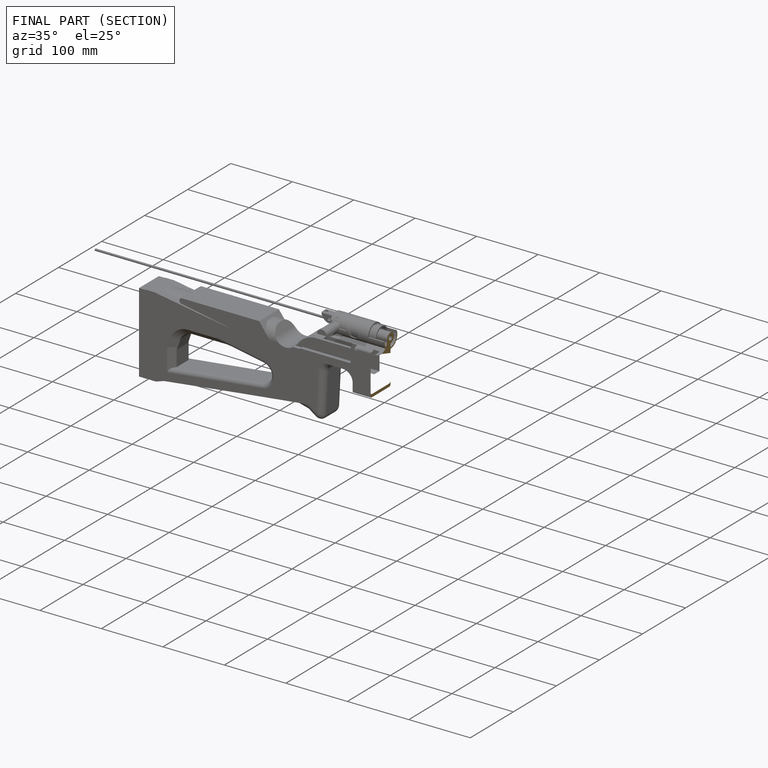
[diagram: finished part — half-section view (interior)]
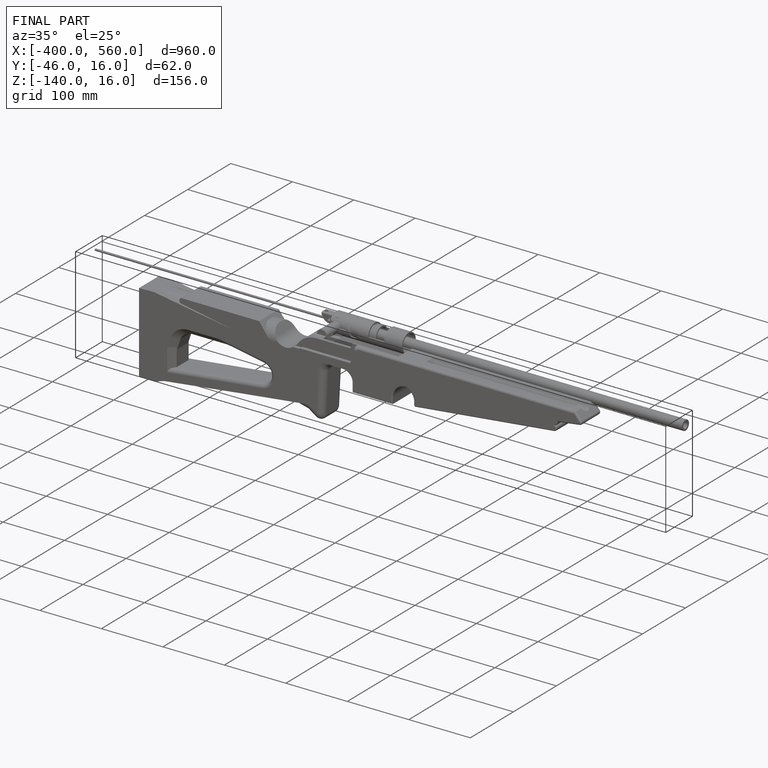
[diagram: finished part — iso view with bounding-box wireframe]
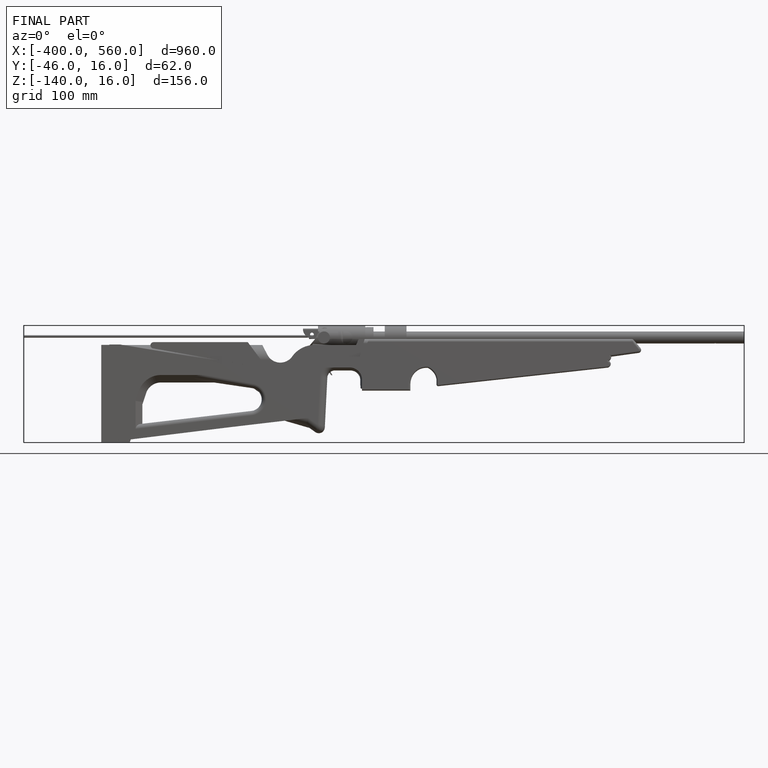
[diagram: finished part — front view with bounding-box wireframe]
